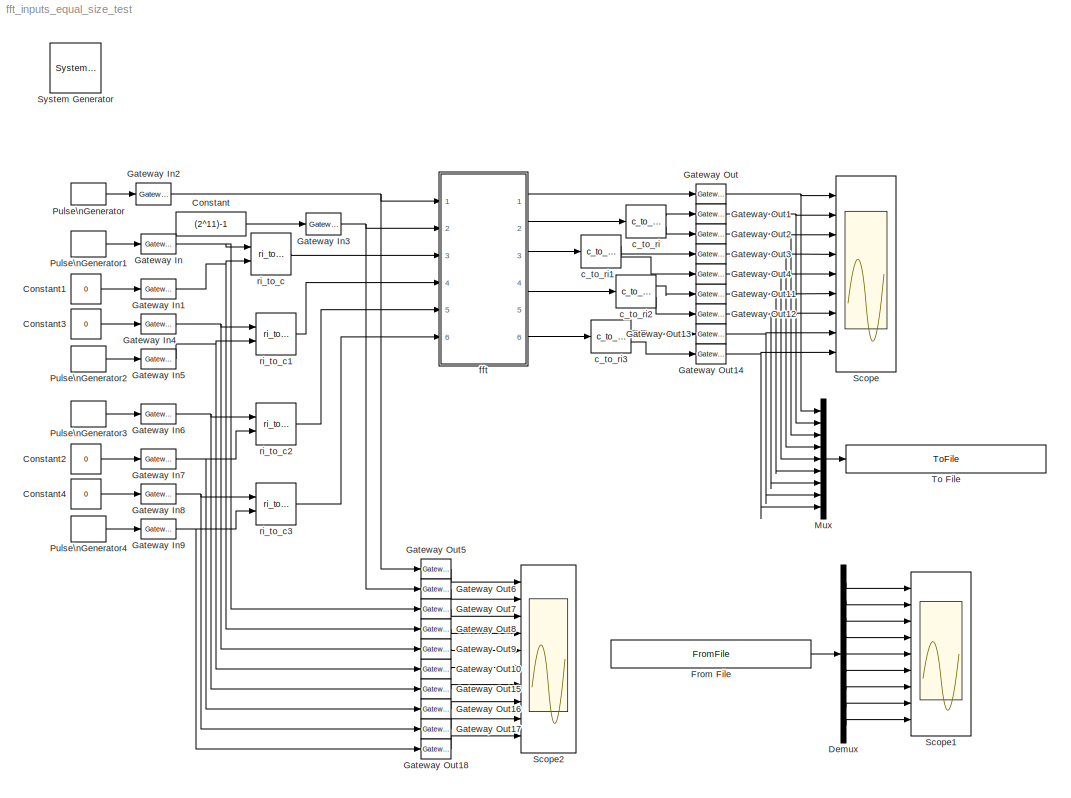
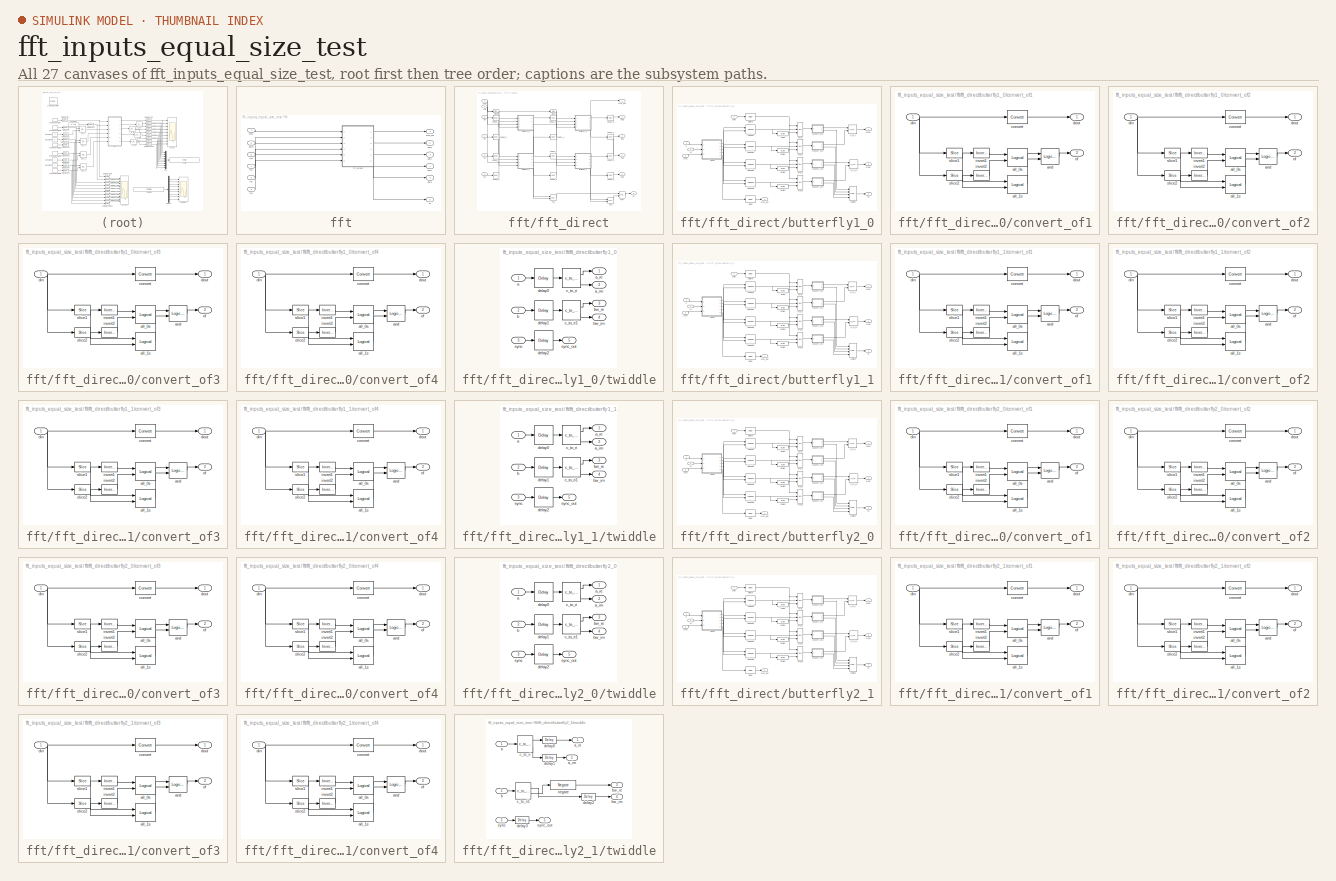
[diagram: thumbnail index - all 27 canvases of the model, root first then tree order]
MODEL fft_inputs_equal_size_test
KIND model
BLOCK [Reference]  System Generator  REF=xbsIndex_r4/ System Generator
  AttributesFormatString = System\\nGenerator
  FunctionWithSeparateData = off
  Ports = []
  RTWMemSecDataConstants = Inherit from model
  RTWMemSecDataInternal = Inherit from model
  RTWMemSecDataParameters = Inherit from model
  RTWMemSecFuncExecute = Inherit from model
  RTWMemSecFuncInitTerm = Inherit from model
  ShowPortLabels = FromPortIcon
  SourceBlock = xbsIndex_r4/ System Generator
  SourceType = Xilinx System Generator Block
  SystemSampleTime = -1
  Tag = genX
  UserData = DataTag0
  UserDataPersistent = on
  block_type = sysgen
  block_version = 10.1.1
  clock_wrapper = Clock Enables
  core_generation = According to Block Masks
  dbl_ovrd = According to Block Masks
  dcm_input_clock_period = 100
  deprecated_control = off
  directory = ./netlist
  eval_field = 0
  has_advanced_control = 0
  incr_netlist = off
  infoedit = System Generator
  package = ff668
  part = xc4vsx35
  run_coregen = off
  sg_icon_stat = 51,50,-1,-1,red,beige,0,07734,right
  sg_mask_display = fprintf('','COMMENT: begin icon graphics');\npatch([0 51 51 0 ],[0 0 50 50 ],[0.93 0.92 0.86]);\npatch([12 4 16 4 12 25 29 33 47 36 25 17 29 17 25 36 47 33 29 25 12 ],[5 13 25 37 45 45 41 45 45 34 45 37 25 13 5 16 5 5 9 5 5 ],[0.6 0.2 0.25]);\nplot([0 51 51 0 0 ],[0 0 50 50 0 ]);\nfprintf('','COMMENT: end icon graphics');\nfprintf('','COMMENT: begin icon text');\nfprintf('','COMMENT: end icon text...<+5ch>
  sggui_pos = -1,-1,-1,-1
  simulink_period = 1
  speed = -10
  synthesis_tool = XST
  sysclk_period = 100
  testbench = off
  trim_vbits = Everywhere in SubSystem
  xilinxfamily = Virtex4
BLOCK [Constant] Constant
  OutDataType = sfix(16)
  OutScaling = 2^0
  Value = (2^11)-1
BLOCK [Constant] Constant1
  OutDataType = sfix(16)
  OutScaling = 2^0
  Value = 0
BLOCK [Constant] Constant2
  OutDataType = sfix(16)
  OutScaling = 2^0
  Value = 0
BLOCK [Constant] Constant3
  OutDataType = sfix(16)
  OutScaling = 2^0
  Value = 0
BLOCK [Constant] Constant4
  OutDataType = sfix(16)
  OutScaling = 2^0
  Value = 0
BLOCK [Demux] Demux
  DisplayOption = bar
  Outputs = 9
  Ports = [1, 9]
BLOCK [FromFile] From File
  FileName = fft_inputs_equal_size_test_reference.mat
  SampleTime = 1
BLOCK [Reference] Gateway In  REF=xbsIndex_r4/Gateway In
  LOCs = {}
  Ports = [1, 1]
  SourceBlock = xbsIndex_r4/Gateway In
  SourceType = Xilinx Gateway In Block
  arith_type = Signed  (2's comp)
  bin_pt = 7
  block_type = gatewayin
  block_version = 10.1.1
  dbl_ovrd = off
  has_advanced_control = 0
  hdl_port = on
  infoedit = Gateway in block.  Converts inputs of type Simulink integer, double and fixed point to  Xilinx fixed point type.<P><P>Hardware notes:  In hardware these blocks become top level input ports.  <repeated x10 — deduplicated; at blocks: Gateway In, Gateway In1, Gateway In2, Gateway In3, Gateway In4, Gateway In5, Gateway In6, Gateway In7, Gateway In8, Gateway In9>
  locs_specified = off
  n_bits = 8
  overflow = Wrap
  period = 1
  quantization = Truncate
  sg_icon_stat = 35,20,1,1,white,yellow,0,00d3666e,right,
  sg_mask_display = fprintf('','COMMENT: begin icon graphics');\npatch([0 1 1 0 ],[0 0 1 1 ],[0.95 0.93 0.65]);\npatch([0.342857 0.257143 0.4 0.257143 0.342857 0.485714 0.514286 0.542857 0.714286 0.6 0.485714 0.4 0.542857 0.4 0.485714 0.6 0.714286 0.542857 0.514286 0.485714 0.342857 ],[0.1 0.25 0.5 0.75 0.9 0.9 0.85 0.9 0.9 0.7 0.9 0.75 0.5 0.25 0.1 0.3 0.1 0.1 0.15 0.1 0.1 ],[0.98 0.96 0.92]);\nplot([0 1 1 0 0 ],[0 ...<+261ch>  <repeated x8 — deduplicated; at blocks: Gateway In, Gateway In1, Gateway In4, Gateway In5, Gateway In6, Gateway In7, Gateway In8, Gateway In9>
  sggui_pos = 2263,208,407,458
  timing_constraint = None
  xl_area = [0,0,0,0,0,0,0]
  xl_use_area = off
BLOCK [Reference] Gateway In1  REF=xbsIndex_r4/Gateway In
  LOCs = {}
  Ports = [1, 1]
  SourceBlock = xbsIndex_r4/Gateway In
  SourceType = Xilinx Gateway In Block
  arith_type = Signed  (2's comp)
  bin_pt = 7
  block_type = gatewayin
  block_version = 10.1.1
  dbl_ovrd = off
  has_advanced_control = 0
  hdl_port = on
  locs_specified = off
  n_bits = 8
  overflow = Wrap
  period = 1
  quantization = Truncate
  sg_icon_stat = 35,20,1,1,white,yellow,0,00d3666e,right,
  sggui_pos = 2263,208,407,458
  timing_constraint = None
  xl_area = [0,0,0,0,0,0,0]
  xl_use_area = off
BLOCK [Reference] Gateway In2  REF=xbsIndex_r4/Gateway In
  LOCs = {}
  Ports = [1, 1]
  SourceBlock = xbsIndex_r4/Gateway In
  SourceType = Xilinx Gateway In Block
  arith_type = Boolean
  bin_pt = 17
  block_type = gatewayin
  block_version = 10.1.1
  dbl_ovrd = off
  has_advanced_control = 0
  hdl_port = on
  locs_specified = off
  n_bits = 18
  overflow = Wrap
  period = 1
  quantization = Truncate
  sg_icon_stat = 35,22,1,1,white,yellow,0,00d3666e,right,
  sg_mask_display = fprintf('','COMMENT: begin icon graphics');\npatch([0 1 1 0 ],[0 0 1 1 ],[0.95 0.93 0.65]);\npatch([0.342857 0.228571 0.371429 0.228571 0.342857 0.514286 0.571429 0.628571 0.8 0.657143 0.514286 0.428571 0.6 0.428571 0.514286 0.657143 0.8 0.628571 0.571429 0.514286 0.342857 ],[0.0909091 0.272727 0.5 0.727273 0.909091 0.909091 0.818182 0.909091 0.909091 0.681818 0.909091 0.772727 0.5 0.227273 0.0909...<+366ch>
  sggui_pos = 20,20,407,458
  timing_constraint = None
  xl_area = [0,0,0,0,0,0,0]
  xl_use_area = off
BLOCK [Reference] Gateway In3  REF=xbsIndex_r4/Gateway In
  LOCs = {}
  Ports = [1, 1]
  SourceBlock = xbsIndex_r4/Gateway In
  SourceType = Xilinx Gateway In Block
  arith_type = Unsigned
  bin_pt = 0
  block_type = gatewayin
  block_version = 10.1.1
  dbl_ovrd = off
  has_advanced_control = 0
  hdl_port = on
  locs_specified = off
  n_bits = 11
  overflow = Wrap
  period = 1
  quantization = Truncate
  sg_icon_stat = 35,22,1,1,white,yellow,0,00d3666e,right,
  sg_mask_display = fprintf('','COMMENT: begin icon graphics');\npatch([0 1 1 0 ],[0 0 1 1 ],[0.95 0.93 0.65]);\npatch([0.342857 0.228571 0.371429 0.228571 0.342857 0.514286 0.571429 0.628571 0.8 0.657143 0.514286 0.428571 0.6 0.428571 0.514286 0.657143 0.8 0.628571 0.571429 0.514286 0.342857 ],[0.0909091 0.272727 0.5 0.727273 0.909091 0.909091 0.818182 0.909091 0.909091 0.681818 0.909091 0.772727 0.5 0.227273 0.0909...<+366ch>
  sggui_pos = 20,20,407,458
  timing_constraint = None
  xl_area = [0,0,0,0,0,0,0]
  xl_use_area = off
BLOCK [Reference] Gateway In4  REF=xbsIndex_r4/Gateway In
  LOCs = {}
  Ports = [1, 1]
  SourceBlock = xbsIndex_r4/Gateway In
  SourceType = Xilinx Gateway In Block
  arith_type = Signed  (2's comp)
  bin_pt = 7
  block_type = gatewayin
  block_version = 10.1.1
  dbl_ovrd = off
  has_advanced_control = 0
  hdl_port = on
  locs_specified = off
  n_bits = 8
  overflow = Wrap
  period = 1
  quantization = Truncate
  sg_icon_stat = 35,20,1,1,white,yellow,0,00d3666e,right,
  sggui_pos = 2263,208,407,458
  timing_constraint = None
  xl_area = [0,0,0,0,0,0,0]
  xl_use_area = off
BLOCK [Reference] Gateway In5  REF=xbsIndex_r4/Gateway In
  LOCs = {}
  Ports = [1, 1]
  SourceBlock = xbsIndex_r4/Gateway In
  SourceType = Xilinx Gateway In Block
  arith_type = Signed  (2's comp)
  bin_pt = 7
  block_type = gatewayin
  block_version = 10.1.1
  dbl_ovrd = off
  has_advanced_control = 0
  hdl_port = on
  locs_specified = off
  n_bits = 8
  overflow = Wrap
  period = 1
  quantization = Truncate
  sg_icon_stat = 35,20,1,1,white,yellow,0,00d3666e,right,
  sggui_pos = 2263,208,407,458
  timing_constraint = None
  xl_area = [0,0,0,0,0,0,0]
  xl_use_area = off
BLOCK [Reference] Gateway In6  REF=xbsIndex_r4/Gateway In
  LOCs = {}
  Ports = [1, 1]
  SourceBlock = xbsIndex_r4/Gateway In
  SourceType = Xilinx Gateway In Block
  arith_type = Signed  (2's comp)
  bin_pt = 7
  block_type = gatewayin
  block_version = 10.1.1
  dbl_ovrd = off
  has_advanced_control = 0
  hdl_port = on
  locs_specified = off
  n_bits = 8
  overflow = Wrap
  period = 1
  quantization = Truncate
  sg_icon_stat = 35,20,1,1,white,yellow,0,00d3666e,right,
  sggui_pos = 2263,208,407,458
  timing_constraint = None
  xl_area = [0,0,0,0,0,0,0]
  xl_use_area = off
BLOCK [Reference] Gateway In7  REF=xbsIndex_r4/Gateway In
  LOCs = {}
  Ports = [1, 1]
  SourceBlock = xbsIndex_r4/Gateway In
  SourceType = Xilinx Gateway In Block
  arith_type = Signed  (2's comp)
  bin_pt = 7
  block_type = gatewayin
  block_version = 10.1.1
  dbl_ovrd = off
  has_advanced_control = 0
  hdl_port = on
  locs_specified = off
  n_bits = 8
  overflow = Wrap
  period = 1
  quantization = Truncate
  sg_icon_stat = 35,20,1,1,white,yellow,0,00d3666e,right,
  sggui_pos = 2263,208,407,458
  timing_constraint = None
  xl_area = [0,0,0,0,0,0,0]
  xl_use_area = off
BLOCK [Reference] Gateway In8  REF=xbsIndex_r4/Gateway In
  LOCs = {}
  Ports = [1, 1]
  SourceBlock = xbsIndex_r4/Gateway In
  SourceType = Xilinx Gateway In Block
  arith_type = Signed  (2's comp)
  bin_pt = 7
  block_type = gatewayin
  block_version = 10.1.1
  dbl_ovrd = off
  has_advanced_control = 0
  hdl_port = on
  locs_specified = off
  n_bits = 8
  overflow = Wrap
  period = 1
  quantization = Truncate
  sg_icon_stat = 35,20,1,1,white,yellow,0,00d3666e,right,
  sggui_pos = 2263,208,407,458
  timing_constraint = None
  xl_area = [0,0,0,0,0,0,0]
  xl_use_area = off
BLOCK [Reference] Gateway In9  REF=xbsIndex_r4/Gateway In
  LOCs = {}
  Ports = [1, 1]
  SourceBlock = xbsIndex_r4/Gateway In
  SourceType = Xilinx Gateway In Block
  arith_type = Signed  (2's comp)
  bin_pt = 7
  block_type = gatewayin
  block_version = 10.1.1
  dbl_ovrd = off
  has_advanced_control = 0
  hdl_port = on
  locs_specified = off
  n_bits = 8
  overflow = Wrap
  period = 1
  quantization = Truncate
  sg_icon_stat = 35,20,1,1,white,yellow,0,00d3666e,right,
  sggui_pos = 2263,208,407,458
  timing_constraint = None
  xl_area = [0,0,0,0,0,0,0]
  xl_use_area = off
BLOCK [Reference] Gateway Out  REF=xbsIndex_r4/Gateway Out
  LOCs = {}
  Ports = [1, 1]
  SourceBlock = xbsIndex_r4/Gateway Out
  SourceType = Xilinx Gateway Out Block
  block_type = gatewayout
  block_version = 10.1.1
  has_advanced_control = 0
  hdl_port = on
  infoedit = Gateway out block.  Converts Xilinx fixed point inputs into ouputs of type Simulink integer, double, or fixed point.<P><P>Hardware notes:  In hardware these blocks become top level output ports or are discarded, depending on how they are configured.  <repeated x19 — deduplicated; at blocks: Gateway Out, Gateway Out1, Gateway Out10, Gateway Out11, Gateway Out12, Gateway Out13, Gateway Out14, Gateway Out15, Gateway Out16, Gateway Out17, Gateway Out18, Gateway Out2, Gateway Out3, Gateway Out4, Gateway Out5, Gateway Out6, +3 more>
  locs_specified = off
  sg_icon_stat = 30,20,1,1,white,yellow,0,cc31b7ac,right,
  sg_mask_display = fprintf('','COMMENT: begin icon graphics');\npatch([0 1 1 0 ],[0 0 1 1 ],[0.95 0.93 0.65]);\npatch([0.3 0.2 0.366667 0.2 0.3 0.466667 0.5 0.533333 0.733333 0.6 0.466667 0.366667 0.533333 0.366667 0.466667 0.6 0.733333 0.533333 0.5 0.466667 0.3 ],[0.1 0.25 0.5 0.75 0.9 0.9 0.85 0.9 0.9 0.7 0.9 0.75 0.5 0.25 0.1 0.3 0.1 0.1 0.15 0.1 0.1 ],[0.98 0.96 0.92]);\nplot([0 1 1 0 0 ],[0 0 1 1 0 ]);\nfprintf...<+242ch>  <repeated x19 — deduplicated; at blocks: Gateway Out, Gateway Out1, Gateway Out10, Gateway Out11, Gateway Out12, Gateway Out13, Gateway Out14, Gateway Out15, Gateway Out16, Gateway Out17, Gateway Out18, Gateway Out2, Gateway Out3, Gateway Out4, Gateway Out5, Gateway Out6, +3 more>
  sggui_pos = 20,20,389,431
  timing_constraint = None
  xl_area = [0,0,0,0,0,0,0]
  xl_use_area = off
BLOCK [Reference] Gateway Out1  REF=xbsIndex_r4/Gateway Out
  LOCs = {}
  Ports = [1, 1]
  SourceBlock = xbsIndex_r4/Gateway Out
  SourceType = Xilinx Gateway Out Block
  block_type = gatewayout
  block_version = 10.1.1
  has_advanced_control = 0
  hdl_port = on
  locs_specified = off
  sg_icon_stat = 30,20,1,1,white,yellow,0,cc31b7ac,right,
  sggui_pos = -1,-1,-1,-1
  timing_constraint = None
  xl_area = [0,0,0,0,0,0,0]
  xl_use_area = off
BLOCK [Reference] Gateway Out10  REF=xbsIndex_r4/Gateway Out
  LOCs = {}
  Ports = [1, 1]
  SourceBlock = xbsIndex_r4/Gateway Out
  SourceType = Xilinx Gateway Out Block
  block_type = gatewayout
  block_version = 10.1.1
  has_advanced_control = 0
  hdl_port = on
  locs_specified = off
  sg_icon_stat = 30,20,1,1,white,yellow,0,cc31b7ac,right,
  sggui_pos = -1,-1,-1,-1
  timing_constraint = None
  xl_area = [0,0,0,0,0,0,0]
  xl_use_area = off
BLOCK [Reference] Gateway Out11  REF=xbsIndex_r4/Gateway Out
  LOCs = {}
  Ports = [1, 1]
  SourceBlock = xbsIndex_r4/Gateway Out
  SourceType = Xilinx Gateway Out Block
  block_type = gatewayout
  block_version = 10.1.1
  has_advanced_control = 0
  hdl_port = on
  locs_specified = off
  sg_icon_stat = 30,20,1,1,white,yellow,0,cc31b7ac,right,
  sggui_pos = -1,-1,-1,-1
  timing_constraint = None
  xl_area = [0,0,0,0,0,0,0]
  xl_use_area = off
BLOCK [Reference] Gateway Out12  REF=xbsIndex_r4/Gateway Out
  LOCs = {}
  Ports = [1, 1]
  SourceBlock = xbsIndex_r4/Gateway Out
  SourceType = Xilinx Gateway Out Block
  block_type = gatewayout
  block_version = 10.1.1
  has_advanced_control = 0
  hdl_port = on
  locs_specified = off
  sg_icon_stat = 30,20,1,1,white,yellow,0,cc31b7ac,right,
  sggui_pos = -1,-1,-1,-1
  timing_constraint = None
  xl_area = [0,0,0,0,0,0,0]
  xl_use_area = off
BLOCK [Reference] Gateway Out13  REF=xbsIndex_r4/Gateway Out
  LOCs = {}
  Ports = [1, 1]
  SourceBlock = xbsIndex_r4/Gateway Out
  SourceType = Xilinx Gateway Out Block
  block_type = gatewayout
  block_version = 10.1.1
  has_advanced_control = 0
  hdl_port = on
  locs_specified = off
  sg_icon_stat = 30,20,1,1,white,yellow,0,cc31b7ac,right,
  sggui_pos = -1,-1,-1,-1
  timing_constraint = None
  xl_area = [0,0,0,0,0,0,0]
  xl_use_area = off
BLOCK [Reference] Gateway Out14  REF=xbsIndex_r4/Gateway Out
  LOCs = {}
  Ports = [1, 1]
  SourceBlock = xbsIndex_r4/Gateway Out
  SourceType = Xilinx Gateway Out Block
  block_type = gatewayout
  block_version = 10.1.1
  has_advanced_control = 0
  hdl_port = on
  locs_specified = off
  sg_icon_stat = 30,20,1,1,white,yellow,0,cc31b7ac,right,
  sggui_pos = -1,-1,-1,-1
  timing_constraint = None
  xl_area = [0,0,0,0,0,0,0]
  xl_use_area = off
BLOCK [Reference] Gateway Out15  REF=xbsIndex_r4/Gateway Out
  LOCs = {}
  Ports = [1, 1]
  SourceBlock = xbsIndex_r4/Gateway Out
  SourceType = Xilinx Gateway Out Block
  block_type = gatewayout
  block_version = 10.1.1
  has_advanced_control = 0
  hdl_port = on
  locs_specified = off
  sg_icon_stat = 30,20,1,1,white,yellow,0,cc31b7ac,right,
  sggui_pos = -1,-1,-1,-1
  timing_constraint = None
  xl_area = [0,0,0,0,0,0,0]
  xl_use_area = off
BLOCK [Reference] Gateway Out16  REF=xbsIndex_r4/Gateway Out
  LOCs = {}
  Ports = [1, 1]
  SourceBlock = xbsIndex_r4/Gateway Out
  SourceType = Xilinx Gateway Out Block
  block_type = gatewayout
  block_version = 10.1.1
  has_advanced_control = 0
  hdl_port = on
  locs_specified = off
  sg_icon_stat = 30,20,1,1,white,yellow,0,cc31b7ac,right,
  sggui_pos = -1,-1,-1,-1
  timing_constraint = None
  xl_area = [0,0,0,0,0,0,0]
  xl_use_area = off
BLOCK [Reference] Gateway Out17  REF=xbsIndex_r4/Gateway Out
  LOCs = {}
  Ports = [1, 1]
  SourceBlock = xbsIndex_r4/Gateway Out
  SourceType = Xilinx Gateway Out Block
  block_type = gatewayout
  block_version = 10.1.1
  has_advanced_control = 0
  hdl_port = on
  locs_specified = off
  sg_icon_stat = 30,20,1,1,white,yellow,0,cc31b7ac,right,
  sggui_pos = -1,-1,-1,-1
  timing_constraint = None
  xl_area = [0,0,0,0,0,0,0]
  xl_use_area = off
BLOCK [Reference] Gateway Out18  REF=xbsIndex_r4/Gateway Out
  LOCs = {}
  Ports = [1, 1]
  SourceBlock = xbsIndex_r4/Gateway Out
  SourceType = Xilinx Gateway Out Block
  block_type = gatewayout
  block_version = 10.1.1
  has_advanced_control = 0
  hdl_port = on
  locs_specified = off
  sg_icon_stat = 30,20,1,1,white,yellow,0,cc31b7ac,right,
  sggui_pos = -1,-1,-1,-1
  timing_constraint = None
  xl_area = [0,0,0,0,0,0,0]
  xl_use_area = off
BLOCK [Reference] Gateway Out2  REF=xbsIndex_r4/Gateway Out
  LOCs = {}
  Ports = [1, 1]
  SourceBlock = xbsIndex_r4/Gateway Out
  SourceType = Xilinx Gateway Out Block
  block_type = gatewayout
  block_version = 10.1.1
  has_advanced_control = 0
  hdl_port = on
  locs_specified = off
  sg_icon_stat = 30,20,1,1,white,yellow,0,cc31b7ac,right,
  sggui_pos = -1,-1,-1,-1
  timing_constraint = None
  xl_area = [0,0,0,0,0,0,0]
  xl_use_area = off
BLOCK [Reference] Gateway Out3  REF=xbsIndex_r4/Gateway Out
  LOCs = {}
  Ports = [1, 1]
  SourceBlock = xbsIndex_r4/Gateway Out
  SourceType = Xilinx Gateway Out Block
  block_type = gatewayout
  block_version = 10.1.1
  has_advanced_control = 0
  hdl_port = on
  locs_specified = off
  sg_icon_stat = 30,20,1,1,white,yellow,0,cc31b7ac,right,
  sggui_pos = -1,-1,-1,-1
  timing_constraint = None
  xl_area = [0,0,0,0,0,0,0]
  xl_use_area = off
BLOCK [Reference] Gateway Out4  REF=xbsIndex_r4/Gateway Out
  LOCs = {}
  Ports = [1, 1]
  SourceBlock = xbsIndex_r4/Gateway Out
  SourceType = Xilinx Gateway Out Block
  block_type = gatewayout
  block_version = 10.1.1
  has_advanced_control = 0
  hdl_port = on
  locs_specified = off
  sg_icon_stat = 30,20,1,1,white,yellow,0,cc31b7ac,right,
  sggui_pos = -1,-1,-1,-1
  timing_constraint = None
  xl_area = [0,0,0,0,0,0,0]
  xl_use_area = off
BLOCK [Reference] Gateway Out5  REF=xbsIndex_r4/Gateway Out
  LOCs = {}
  Ports = [1, 1]
  SourceBlock = xbsIndex_r4/Gateway Out
  SourceType = Xilinx Gateway Out Block
  block_type = gatewayout
  block_version = 10.1.1
  has_advanced_control = 0
  hdl_port = on
  locs_specified = off
  sg_icon_stat = 30,20,1,1,white,yellow,0,cc31b7ac,right,
  sggui_pos = -1,-1,-1,-1
  timing_constraint = None
  xl_area = [0,0,0,0,0,0,0]
  xl_use_area = off
BLOCK [Reference] Gateway Out6  REF=xbsIndex_r4/Gateway Out
  LOCs = {}
  Ports = [1, 1]
  SourceBlock = xbsIndex_r4/Gateway Out
  SourceType = Xilinx Gateway Out Block
  block_type = gatewayout
  block_version = 10.1.1
  has_advanced_control = 0
  hdl_port = on
  locs_specified = off
  sg_icon_stat = 30,20,1,1,white,yellow,0,cc31b7ac,right,
  sggui_pos = -1,-1,-1,-1
  timing_constraint = None
  xl_area = [0,0,0,0,0,0,0]
  xl_use_area = off
BLOCK [Reference] Gateway Out7  REF=xbsIndex_r4/Gateway Out
  LOCs = {}
  Ports = [1, 1]
  SourceBlock = xbsIndex_r4/Gateway Out
  SourceType = Xilinx Gateway Out Block
  block_type = gatewayout
  block_version = 10.1.1
  has_advanced_control = 0
  hdl_port = on
  locs_specified = off
  sg_icon_stat = 30,20,1,1,white,yellow,0,cc31b7ac,right,
  sggui_pos = -1,-1,-1,-1
  timing_constraint = None
  xl_area = [0,0,0,0,0,0,0]
  xl_use_area = off
BLOCK [Reference] Gateway Out8  REF=xbsIndex_r4/Gateway Out
  LOCs = {}
  Ports = [1, 1]
  SourceBlock = xbsIndex_r4/Gateway Out
  SourceType = Xilinx Gateway Out Block
  block_type = gatewayout
  block_version = 10.1.1
  has_advanced_control = 0
  hdl_port = on
  locs_specified = off
  sg_icon_stat = 30,20,1,1,white,yellow,0,cc31b7ac,right,
  sggui_pos = -1,-1,-1,-1
  timing_constraint = None
  xl_area = [0,0,0,0,0,0,0]
  xl_use_area = off
BLOCK [Reference] Gateway Out9  REF=xbsIndex_r4/Gateway Out
  LOCs = {}
  Ports = [1, 1]
  SourceBlock = xbsIndex_r4/Gateway Out
  SourceType = Xilinx Gateway Out Block
  block_type = gatewayout
  block_version = 10.1.1
  has_advanced_control = 0
  hdl_port = on
  locs_specified = off
  sg_icon_stat = 30,20,1,1,white,yellow,0,cc31b7ac,right,
  sggui_pos = -1,-1,-1,-1
  timing_constraint = None
  xl_area = [0,0,0,0,0,0,0]
  xl_use_area = off
BLOCK [Mux] Mux
  DisplayOption = bar
  Inputs = 9
  Ports = [9, 1]
BLOCK [DiscretePulseGenerator] Pulse\nGenerator
  Period = 2^4
  PhaseDelay = 11
  Ports = [0, 1]
BLOCK [DiscretePulseGenerator] Pulse\nGenerator1
  Period = 2^2
  PhaseDelay = 13
  Ports = [0, 1]
BLOCK [DiscretePulseGenerator] Pulse\nGenerator2
  Period = 2^3
  PhaseDelay = 13
  Ports = [0, 1]
BLOCK [DiscretePulseGenerator] Pulse\nGenerator3
  Period = 2^2
  PhaseDelay = 13
  Ports = [0, 1]
BLOCK [DiscretePulseGenerator] Pulse\nGenerator4
  Period = 2^3
  PhaseDelay = 13
  Ports = [0, 1]
BLOCK [Scope] Scope
  DataFormat = StructureWithTime
  Floating = off
  NumInputPorts = 9
  Ports = [9]
  SampleTime = 0
  YMax = 2~1~1~5~5~5~5~5~5
  YMin = -1~0~0~-5~-5~-5~-5~-5~-5
  ZoomMode = xonly
BLOCK [Scope] Scope1
  DataFormat = StructureWithTime
  Floating = off
  NumInputPorts = 9
  Ports = [9]
  SampleTime = 0
  SaveName = ScopeData1
  YMax = 2~1~1~5~5~5~5~5~5
  YMin = -1~0~0~-5~-5~-5~-5~-5~-5
  ZoomMode = xonly
BLOCK [Scope] Scope2
  DataFormat = StructureWithTime
  Floating = off
  NumInputPorts = 10
  Ports = [10]
  SampleTime = 0
  SaveName = ScopeData2
  YMax = 2~1~1~5~5~5~5~5~5~5
  YMin = -1~0~0~-5~-5~-5~-5~-5~-5~-5
  ZoomMode = xonly
BLOCK [ToFile] To File
  Filename = fft_inputs_equal_size_test_output.mat
  MatrixName = output
BLOCK [Reference] c_to_ri  REF=casper_library_misc/c_to_ri  (lib defined in mdl_357510c33b49, mdl_57b5f564ae26, +4 more)
  AttributesFormatString = 8_7 r/i
  FunctionWithSeparateData = off
  Ports = [1, 2]
  RTWMemSecDataConstants = Inherit from model
  RTWMemSecDataInternal = Inherit from model
  RTWMemSecDataParameters = Inherit from model
  RTWMemSecFuncExecute = Inherit from model
  RTWMemSecFuncInitTerm = Inherit from model
  ShowPortLabels = FromPortIcon
  SourceBlock = casper_library_misc/c_to_ri
  SourceType = c_to_ri
  SystemSampleTime = -1
  UserData = DataTag1
  UserDataPersistent = on
  bin_pt = 7
  n_bits = 8
BLOCK [Reference] c_to_ri1  REF=casper_library_misc/c_to_ri  (lib defined in mdl_357510c33b49, mdl_57b5f564ae26, +4 more)
  AttributesFormatString = 8_7 r/i
  FunctionWithSeparateData = off
  Ports = [1, 2]
  RTWMemSecDataConstants = Inherit from model
  RTWMemSecDataInternal = Inherit from model
  RTWMemSecDataParameters = Inherit from model
  RTWMemSecFuncExecute = Inherit from model
  RTWMemSecFuncInitTerm = Inherit from model
  ShowPortLabels = FromPortIcon
  SourceBlock = casper_library_misc/c_to_ri
  SourceType = c_to_ri
  SystemSampleTime = -1
  UserData = DataTag2
  UserDataPersistent = on
  bin_pt = 7
  n_bits = 8
BLOCK [Reference] c_to_ri2  REF=casper_library_misc/c_to_ri  (lib defined in mdl_357510c33b49, mdl_57b5f564ae26, +4 more)
  AttributesFormatString = 8_7 r/i
  FunctionWithSeparateData = off
  Ports = [1, 2]
  RTWMemSecDataConstants = Inherit from model
  RTWMemSecDataInternal = Inherit from model
  RTWMemSecDataParameters = Inherit from model
  RTWMemSecFuncExecute = Inherit from model
  RTWMemSecFuncInitTerm = Inherit from model
  ShowPortLabels = FromPortIcon
  SourceBlock = casper_library_misc/c_to_ri
  SourceType = c_to_ri
  SystemSampleTime = -1
  UserData = DataTag3
  UserDataPersistent = on
  bin_pt = 7
  n_bits = 8
BLOCK [Reference] c_to_ri3  REF=casper_library_misc/c_to_ri  (lib defined in mdl_357510c33b49, mdl_57b5f564ae26, +4 more)
  AttributesFormatString = 8_7 r/i
  FunctionWithSeparateData = off
  Ports = [1, 2]
  RTWMemSecDataConstants = Inherit from model
  RTWMemSecDataInternal = Inherit from model
  RTWMemSecDataParameters = Inherit from model
  RTWMemSecFuncExecute = Inherit from model
  RTWMemSecFuncInitTerm = Inherit from model
  ShowPortLabels = FromPortIcon
  SourceBlock = casper_library_misc/c_to_ri
  SourceType = c_to_ri
  SystemSampleTime = -1
  UserData = DataTag4
  UserDataPersistent = on
  bin_pt = 7
  n_bits = 8
BLOCK [SubSystem] fft
  AncestorBlock = casper_library_ffts/fft
  AttributesFormatString = 2 stages\n(8,8)\nTruncate\nWrap
  FunctionWithSeparateData = off
  MaskCallbackString = % fft_size = eval(get_param(gcb, 'FFTSize'));\n% old_vec = eval(get_param(gcb, 'mult_spec'));\n\n% vec = 2.*ones(1,fft_size);\n% old_size = length(old_vec);\n\n% if(old_size <= fft_size), size = old_size;\n% else, size = fft_size;\n% end\n\n% for n = 1:size, vec(n) = old_vec(n); end\n% set_param(gcb, 'mult_spec', mat2str(vec));||||||||||fft_callback_arch(gcb);||||specify_mult = get_param(gcb,'spec...<+559ch>
  MaskEnableString = on,on,on,on,on,on,on,on,on,on,on,on,on,on,on,on,off
  MaskHelp = eval('xlWeb(''http://casper.berkeley.edu/wiki/Fft'')')
  MaskHideContents = off
  MaskIconFrame = on
  MaskIconOpaque = on
  MaskIconRotate = none
  MaskIconUnits = autoscale
  MaskInitialization = fft_init(gcb,...\n    'FFTSize', FFTSize, ...\n    'input_bit_width', input_bit_width, ...\n    'coeff_bit_width', coeff_bit_width, ...\n    'n_inputs', n_inputs, ...\n    'quantization', quantization, ...\n    'overflow', overflow, ...\n    'add_latency', add_latency, ...\n    'mult_latency', mult_latency, ...\n    'bram_latency', bram_latency, ...\n    'conv_latency', conv_latency, ...\n    'arc...<+250ch>
  MaskPromptString = Size of FFT: (2^?)|Input/Output Bit Width|Coefficient Bit Width|Number of Simultaneous Inputs: (2^?)|Quantization Behavior|Overflow Behavior|Add Latency|Mult Latency|BRAM Latency|Convert latency|Architecture|Use less|Number bits above which to store stage's coefficients in BRAM (2^? bits)|Number bits above which to store stage's delays in BRAM (2^? bits)|Specify multiplier use (behavioral HDL if n...<+117ch>
  MaskSelfModifiable = on
  MaskStyleString = edit,edit,edit,edit,popup(Truncate|Round  (unbiased: +/- Inf)|Round  (unbiased: Even Values)),popup(Wrap|Saturate|Error),edit,edit,edit,edit,popup(Virtex2Pro|Virtex5),popup(logic|multipliers),edit,edit,checkbox,edit,checkbox
  MaskTabNameString = ,,,,,,,,,,,,,,,,
  MaskToolTipString = on,on,on,on,on,on,on,on,on,on,on,on,on,on,on,on,on
  MaskTunableValueString = on,on,on,on,on,on,on,on,on,on,on,on,on,on,on,on,on
  MaskType = fft
  MaskValueString = 2|8|8|2|Truncate|Wrap|2|3|1|2|Virtex2Pro|multipliers|8|8|on|[1                                      2]|off
  MaskVarAliasString = ,,,,,,,,,,,,,,,,
  MaskVariables = FFTSize=@1;input_bit_width=@2;coeff_bit_width=@3;n_inputs=@4;quantization=&5;overflow=&6;add_latency=@7;mult_latency=@8;bram_latency=@9;conv_latency=@10;arch=&11;opt_target=&12;coeffs_bit_limit=@13;delays_bit_limit=@14;specify_mult=&15;mult_spec=@16;dsp48_adders=&17;
  MaskVisibilityString = on,on,on,on,on,on,on,on,on,on,on,on,on,on,on,on,on
  MinAlgLoopOccurrences = off
  Opaque = off
  Ports = [6, 6]
  PropExecContextOutsideSubsystem = off
  RTWSystemCode = Auto
  RequestExecContextInheritance = off
  UserData = DataTag5
  UserDataPersistent = on
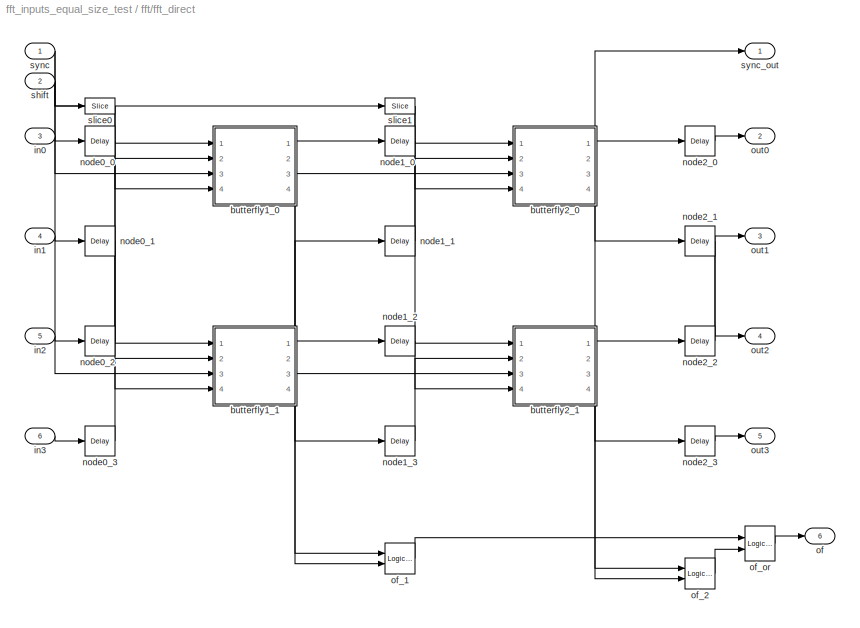
BLOCK [SubSystem] fft/fft_direct
  AncestorBlock = casper_library_ffts/fft_direct
  AttributesFormatString = Virtex2Pro\nstages [4  5] of 2\n[8,8]\nTruncate\nWrap
  FunctionWithSeparateData = off
  MaskCallbackString = % fft_size = eval(get_param(gcb, 'FFTSize'));\n% old_vec = eval(get_param(gcb, 'mult_spec'));\n\n% vec = 2.*ones(1,fft_size);\n% old_size = length(old_vec);\n\n% if(old_size <= fft_size), \n%     size = old_size;\n% else, \n%     size = fft_size;\n% end\n\n% for n = 1:size, vec(n) = old_vec(n); end\n% set_param(gcb, 'mult_spec', mat2str(vec));|||||||||map_tail = get_param(gcb,'map_tail');\nvisibs ...<+851ch>
  MaskDescription = Implements an N-point FFT with the classic \nbutterfly structure with N inputs and N outputs
  MaskEnableString = on,on,on,on,on,on,on,on,on,on,on,on,on,on,on,on,on,off
  MaskHideContents = off
  MaskIconFrame = on
  MaskIconOpaque = on
  MaskIconRotate = none
  MaskIconUnits = autoscale
  MaskInitialization = fft_direct_init(gcb,...\n    'FFTSize', FFTSize, ...\n    'input_bit_width', input_bit_width, ...\n    'coeff_bit_width', coeff_bit_width, ...\n    'add_latency', add_latency, ...\n    'mult_latency', mult_latency, ...\n    'bram_latency', bram_latency, ...\n    'conv_latency', conv_latency, ...\n    'quantization', quantization, ...\n    'overflow', overflow, ...\n    'map_tail', map_tail, ...\n ...<+286ch>
  MaskPromptString = Size of FFT: (2^?)|Input/Output Bit Width|Coefficient Bit Width|Add Latency|Mult Latency|BRAM Latency|Convert latency|Quantization Behavior|Overflow Behavior|Map Tail of Larger FFT|Size of Larger FFT (2^?):|Start Stage of Map Tail:|Architecture|Use less|Number bits above which to store stage's coefficients in BRAM (2^? bits)|Specify multiplier use (behavioural HDL if not specified)|Multiplier spec...<+92ch>
  MaskSelfModifiable = on
  MaskStyleString = edit,edit,edit,edit,edit,edit,edit,popup(Truncate|Round  (unbiased: +/- Inf)|Round  (unbiased: Even Values)),popup(Wrap|Saturate|Error),checkbox,edit,edit,popup(Virtex2Pro|Virtex5),popup(logic|multipliers),edit,checkbox,edit,checkbox
  MaskTabNameString = ,,,,,,,,,,,,,,,,,
  MaskToolTipString = on,on,on,on,on,on,on,on,on,on,on,on,on,on,on,on,on,on
  MaskTunableValueString = on,on,on,on,on,on,on,on,on,on,on,on,on,on,on,on,on,on
  MaskType = fft_direct
  MaskValueString = 2|8|8|2|3|1|2|Truncate|Wrap|off|4|4|Virtex2Pro|multipliers|8|on|[1                                      2]|off
  MaskVarAliasString = ,,,,,,,,,,,,,,,,,
  MaskVariables = FFTSize=@1;input_bit_width=@2;coeff_bit_width=@3;add_latency=@4;mult_latency=@5;bram_latency=@6;conv_latency=@7;quantization=&8;overflow=&9;map_tail=&10;LargerFFTSize=@11;StartStage=@12;arch=&13;opt_target=&14;coeffs_bit_limit=@15;specify_mult=&16;mult_spec=@17;dsp48_adders=&18;
  MaskVisibilityString = on,on,on,on,on,on,on,on,on,on,off,off,on,on,on,on,on,on
  MinAlgLoopOccurrences = off
  Opaque = off
  Ports = [6, 6]
  PropExecContextOutsideSubsystem = off
  RTWSystemCode = Auto
  RequestExecContextInheritance = off
  UserData = DataTag6
  UserDataPersistent = on
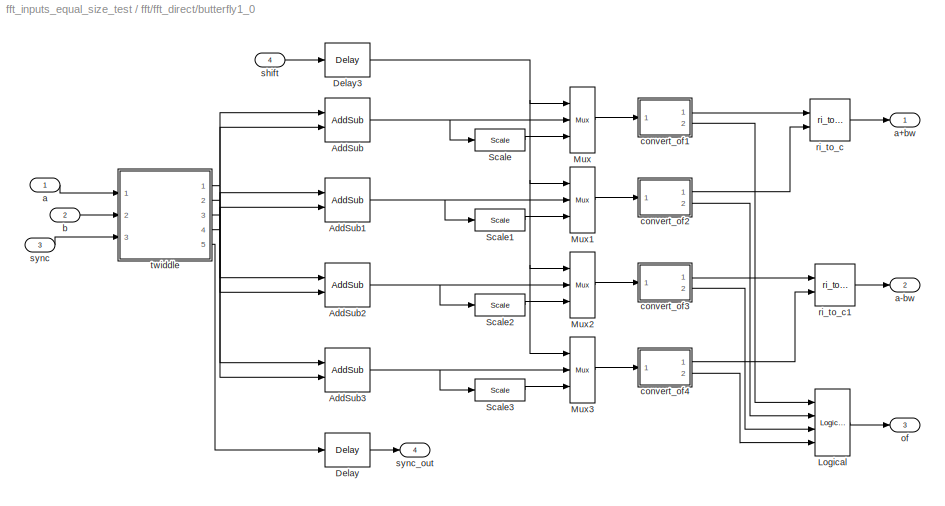
BLOCK [SubSystem] fft/fft_direct/butterfly1_0
  AncestorBlock = casper_library_ffts/butterfly_direct
  AttributesFormatString = twiddle_coeff_0\ncoeffs in slices
  FunctionWithSeparateData = off
  MaskCallbackString = ||%coeffs = eval(get_param(gcb,'Coeffs'));\n%visibs = get_param(gcb,'MaskVisibilities');\n%if length(coeffs) == 1,\n%    visibs{4} = 'off'; visibs{5} = 'off';\n%    visibs{6} = 'off'; \n%else\n%    visibs{4} = 'on';\n%    visibs{5} = 'on'; visibs{6} = 'on';\n%end    \n%set_param(gcb, 'MaskVisibilities', visibs);|%coeffs = eval(get_param(gcb,'Coeffs'));\n%visibs = get_param(gcb,'MaskVisibilities');...<+866ch>  <repeated x4 — deduplicated; at blocks: butterfly1_0, butterfly1_1, butterfly2_0, butterfly2_1>
  MaskEnableString = on,on,on,on,on,on,on,on,on,on,on,on,on,on,on,on,on,off
  MaskHideContents = off
  MaskIconFrame = on
  MaskIconOpaque = on
  MaskIconRotate = none
  MaskIconUnits = autoscale
  MaskInitialization = butterfly_direct_init(gcb,...\n    'biplex', biplex,...\n    'FFTSize', FFTSize,...\n    'Coeffs', Coeffs,...\n    'coeff_bit_width', coeff_bit_width,...\n    'StepPeriod', StepPeriod,...\n    'input_bit_width', input_bit_width,...\n    'add_latency', add_latency,...\n    'mult_latency', mult_latency,...\n    'bram_latency', bram_latency,...\n    'conv_latency', conv_latency, ...\n    'coeffs_bram...<+248ch>  <repeated x4 — deduplicated; at blocks: butterfly1_0, butterfly1_1, butterfly2_0, butterfly2_1>
  MaskPromptString = Used in biplex FFT|Size of FFT: (2^?)|Coefficients: (0 to 2^(FFTSize-1)-1)|Coefficient Step Period: (2^?)|Implement coefficients in BRAM|Coefficient Bit Width|Input/Output Bit Width:|BRAM Latency|Add Latency|Mult Latency|Convert latency|Quantization Behavior|Overflow Behavior|Architecture|Use less|Use behavioural HDL for multipliers|Use embedded multipliers|Use DSP48s for adders  <repeated x4 — deduplicated; at blocks: butterfly1_0, butterfly1_1, butterfly2_0, butterfly2_1>
  MaskSelfModifiable = on
  MaskStyleString = checkbox,edit,edit,edit,checkbox,edit,edit,edit,edit,edit,edit,popup(Truncate|Round  (unbiased: +/- Inf)|Round  (unbiased: Even Values)),popup(Wrap|Saturate|Error),popup(Virtex2Pro|Virtex5),popup(logic|multipliers),checkbox,checkbox,checkbox  <repeated x4 — deduplicated; at blocks: butterfly1_0, butterfly1_1, butterfly2_0, butterfly2_1>
  MaskTabNameString = ,,,,,,,,,,,,,,,,,
  MaskToolTipString = on,on,on,on,on,on,on,on,on,on,on,on,on,on,on,on,on,on
  MaskTunableValueString = on,on,on,on,on,on,on,on,on,on,on,on,on,on,on,on,on,on
  MaskType = butterfly_direct
  MaskValueString = off|2|0|0|off|8|8|1|2|3|2|Truncate|Wrap|Virtex2Pro|multipliers|off|on|off
  MaskVarAliasString = ,,,,,,,,,,,,,,,,,
  MaskVariables = biplex=&1;FFTSize=@2;Coeffs=@3;StepPeriod=@4;coeffs_bram=&5;coeff_bit_width=@6;input_bit_width=@7;bram_latency=@8;add_latency=@9;mult_latency=@10;conv_latency=@11;quantization=&12;overflow=&13;arch=&14;opt_target=&15;use_hdl=&16;use_embedded=&17;dsp48_adders=&18;  <repeated x4 — deduplicated; at blocks: butterfly1_0, butterfly1_1, butterfly2_0, butterfly2_1>
  MaskVisibilityString = off,on,on,on,on,on,on,on,on,on,on,on,on,on,on,on,on,on
  MinAlgLoopOccurrences = off
  Opaque = off
  Ports = [4, 4]
  PropExecContextOutsideSubsystem = off
  RTWSystemCode = Auto
  RequestExecContextInheritance = off
  UserData = DataTag7
  UserDataPersistent = on
BLOCK [Reference] fft/fft_direct/butterfly1_0/AddSub  REF=xbsIndex_r4/AddSub
  Ports = [2, 1]
  SourceBlock = xbsIndex_r4/AddSub
  SourceType = Xilinx Adder/Subtracter Block
  arith_type = Unsigned
  bin_pt = 2
  block_type = addsub
  block_version = 9.1.01
  dbl_ovrd = off
  en = off
  has_advanced_control = 0
  hw_selection = DSP48
  latency = add_latency
  mode = Addition
  n_bits = 8
  overflow = Wrap
  pipelined = on
  precision = Full
  quantization = Truncate
  sg_icon_stat = 45,44,2,1,white,blue,0,4922a24f,right,
  sg_mask_display = fprintf('','COMMENT: begin icon graphics');\npatch([0 1 1 0 ],[0 0 1 1 ],[0.77 0.82 0.91]);\npatch([0.222222 0.0666667 0.288889 0.0666667 0.222222 0.488889 0.555556 0.622222 0.888889 0.666667 0.466667 0.311111 0.511111 0.311111 0.466667 0.666667 0.888889 0.622222 0.555556 0.488889 0.222222 ],[0.113636 0.272727 0.5 0.727273 0.886364 0.886364 0.818182 0.886364 0.886364 0.659091 0.863636 0.704545 0.5...<+478ch>  <repeated x16 — deduplicated; at blocks: AddSub, AddSub1, AddSub2, AddSub3>
  sggui_pos = 827,219,348,344
  use_behavioral_HDL = on
  use_carryin = off
  use_carryout = off
  use_rpm = on
  xl_area = [0, 0, 0, 0, 0, 0, 0]
  xl_use_area = off
BLOCK [Reference] fft/fft_direct/butterfly1_0/AddSub1  REF=xbsIndex_r4/AddSub
  Ports = [2, 1]
  SourceBlock = xbsIndex_r4/AddSub
  SourceType = Xilinx Adder/Subtracter Block
  arith_type = Unsigned
  bin_pt = 2
  block_type = addsub
  block_version = 9.1.01
  dbl_ovrd = off
  en = off
  has_advanced_control = 0
  hw_selection = DSP48
  latency = add_latency
  mode = Addition
  n_bits = 8
  overflow = Wrap
  pipelined = on
  precision = Full
  quantization = Truncate
  sg_icon_stat = 45,44,2,1,white,blue,0,4922a24f,right,
  sggui_pos = 20,20,348,342
  use_behavioral_HDL = on
  use_carryin = off
  use_carryout = off
  use_rpm = on
  xl_area = [0, 0, 0, 0, 0, 0, 0]
  xl_use_area = off
BLOCK [Reference] fft/fft_direct/butterfly1_0/AddSub2  REF=xbsIndex_r4/AddSub
  Ports = [2, 1]
  SourceBlock = xbsIndex_r4/AddSub
  SourceType = Xilinx Adder/Subtracter Block
  arith_type = Unsigned
  bin_pt = 2
  block_type = addsub
  block_version = 9.1.01
  dbl_ovrd = off
  en = off
  has_advanced_control = 0
  hw_selection = DSP48
  latency = add_latency
  mode = Subtraction
  n_bits = 8
  overflow = Wrap
  pipelined = on
  precision = Full
  quantization = Truncate
  sg_icon_stat = 45,44,2,1,white,blue,0,57a258cf,right,
  sggui_pos = 20,20,348,342
  use_behavioral_HDL = on
  use_carryin = off
  use_carryout = off
  use_rpm = on
  xl_area = [0, 0, 0, 0, 0, 0, 0]
  xl_use_area = off
BLOCK [Reference] fft/fft_direct/butterfly1_0/AddSub3  REF=xbsIndex_r4/AddSub
  Ports = [2, 1]
  SourceBlock = xbsIndex_r4/AddSub
  SourceType = Xilinx Adder/Subtracter Block
  arith_type = Unsigned
  bin_pt = 2
  block_type = addsub
  block_version = 9.1.01
  dbl_ovrd = off
  en = off
  has_advanced_control = 0
  hw_selection = DSP48
  latency = add_latency
  mode = Subtraction
  n_bits = 8
  overflow = Wrap
  pipelined = on
  precision = Full
  quantization = Truncate
  sg_icon_stat = 45,44,2,1,white,blue,0,57a258cf,right,
  sggui_pos = -1,-1,-1,-1
  use_behavioral_HDL = on
  use_carryin = off
  use_carryout = off
  use_rpm = on
  xl_area = [0, 0, 0, 0, 0, 0, 0]
  xl_use_area = off
BLOCK [Reference] fft/fft_direct/butterfly1_0/Delay  REF=xbsIndex_r4/Delay
  Ports = [1, 1]
  SourceBlock = xbsIndex_r4/Delay
  SourceType = Xilinx Delay Block
  block_type = delay
  block_version = 9.1.01
  dbl_ovrd = off
  en = off
  has_advanced_control = 0
  infoedit = Hardware notes: A delay line is a chain, each link of which is an SRL16 followed by a flip-flop.
  latency = add_latency + conv_latency + 1
  reg_retiming = on
  sg_icon_stat = 45,34,1,1,white,blue,0,ec356abf,right,
  sg_mask_display = fprintf('','COMMENT: begin icon graphics');\npatch([0 1 1 0 ],[0 0 1 1 ],[0.77 0.82 0.91]);\npatch([0.311111 0.177778 0.355556 0.177778 0.311111 0.511111 0.555556 0.6 0.822222 0.644444 0.488889 0.377778 0.555556 0.377778 0.488889 0.644444 0.822222 0.6 0.555556 0.511111 0.311111 ],[0.117647 0.294118 0.529412 0.764706 0.941176 0.941176 0.882353 0.941176 0.941176 0.705882 0.911765 0.764706 0.529412 0...<+297ch>  <repeated x8 — deduplicated; at blocks: Delay, Delay3>
  sggui_pos = 23,105,419,315
  xl_area = [0, 0, 0, 0, 0, 0, 0]
  xl_use_area = off
BLOCK [Reference] fft/fft_direct/butterfly1_0/Delay3  REF=xbsIndex_r4/Delay
  Ports = [1, 1]
  SourceBlock = xbsIndex_r4/Delay
  SourceType = Xilinx Delay Block
  block_type = delay
  block_version = 9.1.01
  dbl_ovrd = off
  en = off
  has_advanced_control = 0
  infoedit = Hardware notes: A delay line is a chain, each link of which is an SRL16 followed by a flip-flop.
  latency = add_latency
  reg_retiming = off
  sg_icon_stat = 45,34,1,1,white,blue,0,85ce9542,right,
  sggui_pos = 20,20,407,280
  xl_area = [0, 0, 0, 0, 0, 0, 0]
  xl_use_area = off
BLOCK [Reference] fft/fft_direct/butterfly1_0/Logical  REF=xbsIndex_r4/Logical
  Ports = [4, 1]
  SourceBlock = xbsIndex_r4/Logical
  SourceType = Xilinx Logical Block Block
  align_bp = on
  arith_type = Unsigned
  bin_pt = 0
  block_type = logical
  block_version = 10.1.1
  dbl_ovrd = off
  en = off
  has_advanced_control = 0
  inputs = 4
  latency = 0
  logical_function = OR
  n_bits = 16
  precision = Full
  sg_icon_stat = 35,67,4,1,white,blue,0,96d3e8c1,right,
  sg_list_contents = {'table'=>{'logical_function'=>'popup(AND|NAND|OR|NOR|XOR|XNOR)','userSelections'=>{'logical_function'=>'OR'}}}
  sg_mask_display = fprintf('','COMMENT: begin icon graphics');\npatch([0 1 1 0 ],[0 0 1 1 ],[0.77 0.82 0.91]);\npatch([0.228571 0.0571429 0.285714 0.0571429 0.228571 0.485714 0.571429 0.657143 0.942857 0.714286 0.514286 0.371429 0.6 0.371429 0.514286 0.714286 0.942857 0.657143 0.571429 0.485714 0.228571 ],[0.298507 0.38806 0.507463 0.626866 0.716418 0.716418 0.671642 0.716418 0.716418 0.597015 0.701493 0.626866 0.50...<+321ch>  <repeated x4 — deduplicated; at blocks: Logical>
  sggui_pos = 21,51,419,291
  xl_area = [0,0,0,0,0,0,0]
  xl_use_area = off
BLOCK [Reference] fft/fft_direct/butterfly1_0/Mux  REF=xbsIndex_r4/Mux
  Ports = [3, 1]
  SourceBlock = xbsIndex_r4/Mux
  SourceType = Xilinx Bus Multiplexer Block
  arith_type = Signed  (2's comp)
  bin_pt = 2
  block_type = mux
  block_version = 9.1.01
  dbl_ovrd = off
  en = off
  has_advanced_control = 0
  inputs = 2
  latency = 1
  n_bits = 8
  overflow = Wrap
  precision = Full
  quantization = Truncate
  sg_icon_stat = 25,66,3,1,white,blue,3,a150fb03,right,
  sg_mask_display = fprintf('','COMMENT: begin icon graphics');\npatch([0 1 1 0 ],[0 0.142857 0.857143 1 ],[0.77 0.82 0.91]);\npatch([0.24 0.08 0.32 0.08 0.24 0.52 0.6 0.68 0.96 0.72 0.52 0.36 0.56 0.36 0.52 0.72 0.96 0.68 0.6 0.52 0.24 ],[0.348485 0.409091 0.5 0.590909 0.651515 0.651515 0.621212 0.651515 0.651515 0.560606 0.636364 0.575758 0.5 0.424242 0.363636 0.439394 0.348485 0.348485 0.378788 0.348485 0.348485 ]...<+380ch>  <repeated x16 — deduplicated; at blocks: Mux, Mux1, Mux2, Mux3>
  sggui_pos = 20,20,348,306
  xl_area = [0, 0, 0, 0, 0, 0, 0]
  xl_use_area = off
BLOCK [Reference] fft/fft_direct/butterfly1_0/Mux1  REF=xbsIndex_r4/Mux
  Ports = [3, 1]
  SourceBlock = xbsIndex_r4/Mux
  SourceType = Xilinx Bus Multiplexer Block
  arith_type = Signed  (2's comp)
  bin_pt = 2
  block_type = mux
  block_version = 9.1.01
  dbl_ovrd = off
  en = off
  has_advanced_control = 0
  inputs = 2
  latency = 1
  n_bits = 8
  overflow = Wrap
  precision = Full
  quantization = Truncate
  sg_icon_stat = 25,66,3,1,white,blue,3,a150fb03,right,
  sggui_pos = 20,20,407,344
  xl_area = [0, 0, 0, 0, 0, 0, 0]
  xl_use_area = off
BLOCK [Reference] fft/fft_direct/butterfly1_0/Mux2  REF=xbsIndex_r4/Mux
  Ports = [3, 1]
  SourceBlock = xbsIndex_r4/Mux
  SourceType = Xilinx Bus Multiplexer Block
  arith_type = Signed  (2's comp)
  bin_pt = 2
  block_type = mux
  block_version = 9.1.01
  dbl_ovrd = off
  en = off
  has_advanced_control = 0
  inputs = 2
  latency = 1
  n_bits = 8
  overflow = Wrap
  precision = Full
  quantization = Truncate
  sg_icon_stat = 25,66,3,1,white,blue,3,a150fb03,right,
  sggui_pos = 20,20,407,344
  xl_area = [0, 0, 0, 0, 0, 0, 0]
  xl_use_area = off
BLOCK [Reference] fft/fft_direct/butterfly1_0/Mux3  REF=xbsIndex_r4/Mux
  Ports = [3, 1]
  SourceBlock = xbsIndex_r4/Mux
  SourceType = Xilinx Bus Multiplexer Block
  arith_type = Signed  (2's comp)
  bin_pt = 2
  block_type = mux
  block_version = 9.1.01
  dbl_ovrd = off
  en = off
  has_advanced_control = 0
  inputs = 2
  latency = 1
  n_bits = 8
  overflow = Wrap
  precision = Full
  quantization = Truncate
  sg_icon_stat = 25,66,3,1,white,blue,3,a150fb03,right,
  sggui_pos = 20,20,407,344
  xl_area = [0, 0, 0, 0, 0, 0, 0]
  xl_use_area = off
BLOCK [Reference] fft/fft_direct/butterfly1_0/Scale  REF=xbsIndex_r4/Scale
  Ports = [1, 1]
  SourceBlock = xbsIndex_r4/Scale
  SourceType = Xilinx Input Scaler Block
  block_type = scale
  block_version = 9.1.01
  dbl_ovrd = off
  has_advanced_control = 0
  infoedit = Scales input by a power of two by adjusting the binary point position.<P><P>Hardware notes: In hardware this block costs nothing.
  scale_factor = -1
  sg_icon_stat = 50,22,1,1,white,blue,0,315b7d78,right,
  sg_mask_display = fprintf('','COMMENT: begin icon graphics');\npatch([0 1 1 0 ],[0 0 1 1 ],[0.77 0.82 0.91]);\npatch([0.38 0.3 0.4 0.3 0.38 0.5 0.54 0.58 0.7 0.6 0.5 0.44 0.56 0.44 0.5 0.6 0.7 0.58 0.54 0.5 0.38 ],[0.0909091 0.272727 0.5 0.727273 0.909091 0.909091 0.818182 0.909091 0.909091 0.681818 0.909091 0.772727 0.5 0.227273 0.0909091 0.318182 0.0909091 0.0909091 0.181818 0.0909091 0.0909091 ],[0.98 0.96 0.92]...<+214ch>  <repeated x16 — deduplicated; at blocks: Scale, Scale1, Scale2, Scale3>
  sggui_pos = -1,-1,-1,-1
BLOCK [Reference] fft/fft_direct/butterfly1_0/Scale1  REF=xbsIndex_r4/Scale
  Ports = [1, 1]
  SourceBlock = xbsIndex_r4/Scale
  SourceType = Xilinx Input Scaler Block
  block_type = scale
  block_version = 9.1.01
  dbl_ovrd = off
  has_advanced_control = 0
  infoedit = Scales input by a power of two by adjusting the binary point position.<P><P>Hardware notes: In hardware this block costs nothing.
  scale_factor = -1
  sg_icon_stat = 50,22,1,1,white,blue,0,315b7d78,right,
  sggui_pos = -1,-1,-1,-1
BLOCK [Reference] fft/fft_direct/butterfly1_0/Scale2  REF=xbsIndex_r4/Scale
  Ports = [1, 1]
  SourceBlock = xbsIndex_r4/Scale
  SourceType = Xilinx Input Scaler Block
  block_type = scale
  block_version = 9.1.01
  dbl_ovrd = off
  has_advanced_control = 0
  infoedit = Scales input by a power of two by adjusting the binary point position.<P><P>Hardware notes: In hardware this block costs nothing.
  scale_factor = -1
  sg_icon_stat = 50,22,1,1,white,blue,0,315b7d78,right,
  sggui_pos = -1,-1,-1,-1
BLOCK [Reference] fft/fft_direct/butterfly1_0/Scale3  REF=xbsIndex_r4/Scale
  Ports = [1, 1]
  SourceBlock = xbsIndex_r4/Scale
  SourceType = Xilinx Input Scaler Block
  block_type = scale
  block_version = 9.1.01
  dbl_ovrd = off
  has_advanced_control = 0
  infoedit = Scales input by a power of two by adjusting the binary point position.<P><P>Hardware notes: In hardware this block costs nothing.
  scale_factor = -1
  sg_icon_stat = 50,22,1,1,white,blue,0,315b7d78,right,
  sggui_pos = -1,-1,-1,-1
BLOCK [Inport] fft/fft_direct/butterfly1_0/a
  IconDisplay = Port number
  OutDataType = sfix(16)
  OutScaling = 2^0
BLOCK [Outport] fft/fft_direct/butterfly1_0/a+bw
  IconDisplay = Port number
  OutDataType = sfix(16)
  OutScaling = 2^0
BLOCK [Outport] fft/fft_direct/butterfly1_0/a-bw
  IconDisplay = Port number
  OutDataType = sfix(16)
  OutScaling = 2^0
  Port = 2
BLOCK [Inport] fft/fft_direct/butterfly1_0/b
  IconDisplay = Port number
  OutDataType = sfix(16)
  OutScaling = 2^0
  Port = 2
BLOCK [SubSystem] fft/fft_direct/butterfly1_0/convert_of1
  AncestorBlock = casper_library_misc/convert_of
  AttributesFormatString = [10,8]->[8,7]
  FunctionWithSeparateData = off
  MaskCallbackString = ||||||
  MaskDescription = Converts from one 2's complement bit-width \nand/or binary point position to another. \nIncludes underflow/overflow indicator.
  MaskEnableString = on,on,on,on,on,on,on
  MaskHideContents = off
  MaskIconFrame = on
  MaskIconOpaque = on
  MaskIconRotate = none
  MaskIconUnits = autoscale
  MaskInitialization = convert_of_init(gcb, ...\n    'bit_width_i', bit_width_i, ...\n    'binary_point_i', binary_point_i, ...\n    'bit_width_o', bit_width_o, ...\n    'binary_point_o', binary_point_o, ...\n    'latency', latency, ...\n    'overflow', overflow, ...\n    'quantization', quantization);\n  <repeated x16 — deduplicated; at blocks: convert_of1, convert_of2, convert_of3, convert_of4>
  MaskPromptString = Bit Width In|Binary Point In|Bit Width Out|Binary Point Out|Latency|Overflow Behaviour|Quantization Behaviour
  MaskStyleString = edit,edit,edit,edit,edit,popup(Wrap|Saturate|Error),popup(Truncate|Round  (unbiased: +/- Inf)|Round  (unbiased: even values))
  MaskTabNameString = ,,,,,,
  MaskToolTipString = on,on,on,on,on,on,on
  MaskTunableValueString = on,on,on,on,on,on,on
  MaskType = convert_of
  MaskValueString = 10|8|8|7|2|Wrap|Truncate
  MaskVarAliasString = ,,,,,,
  MaskVariables = bit_width_i=@1;binary_point_i=@2;bit_width_o=@3;binary_point_o=@4;latency=@5;overflow=&6;quantization=&7;
  MaskVisibilityString = on,on,on,on,on,on,on
  MinAlgLoopOccurrences = off
  Opaque = off
  Ports = [1, 2]
  PropExecContextOutsideSubsystem = off
  RTWSystemCode = Auto
  RequestExecContextInheritance = off
  UserData = DataTag8
  UserDataPersistent = on
BLOCK [Reference] fft/fft_direct/butterfly1_0/convert_of1/all_0s  REF=xbsIndex_r4/Logical
  Ports = [2, 1]
  SourceBlock = xbsIndex_r4/Logical
  SourceType = Xilinx Logical Block Block
  align_bp = on
  arith_type = Unsigned
  bin_pt = 0
  block_type = logical
  block_version = 10.1.3
  dbl_ovrd = off
  en = off
  has_advanced_control = 0
  inputs = 2
  latency = latency
  logical_function = NAND
  n_bits = 16
  precision = Full
  sg_icon_stat = 45,40,2,1,white,blue,0,8ff56bdf,right,
  sg_mask_display = fprintf('','COMMENT: begin icon graphics');\npatch([0 1 1 0 ],[0 0 1 1 ],[0.77 0.82 0.91]);\npatch([0.266667 0.111111 0.311111 0.111111 0.266667 0.511111 0.577778 0.644444 0.888889 0.688889 0.488889 0.355556 0.577778 0.355556 0.488889 0.688889 0.888889 0.644444 0.577778 0.511111 0.266667 ],[0.1 0.275 0.5 0.725 0.9 0.9 0.825 0.9 0.9 0.675 0.9 0.75 0.5 0.25 0.1 0.325 0.1 0.1 0.175 0.1 0.1 ],[0.98 0....<+238ch>  <repeated x32 — deduplicated; at blocks: all_0s, all_1s>
  sggui_pos = 20,20,348,261
  xl_area = [0,0,0,0,0,0,0]
  xl_use_area = off
BLOCK [Reference] fft/fft_direct/butterfly1_0/convert_of1/all_1s  REF=xbsIndex_r4/Logical
  Ports = [2, 1]
  SourceBlock = xbsIndex_r4/Logical
  SourceType = Xilinx Logical Block Block
  align_bp = on
  arith_type = Unsigned
  bin_pt = 0
  block_type = logical
  block_version = 10.1.3
  dbl_ovrd = off
  en = off
  has_advanced_control = 0
  inputs = 2
  latency = latency
  logical_function = NAND
  n_bits = 16
  precision = Full
  sg_icon_stat = 45,40,2,1,white,blue,0,8ff56bdf,right,
  sggui_pos = -1,-1,-1,-1
  xl_area = [0,0,0,0,0,0,0]
  xl_use_area = off
BLOCK [Reference] fft/fft_direct/butterfly1_0/convert_of1/and  REF=xbsIndex_r4/Logical
  Ports = [2, 1]
  SourceBlock = xbsIndex_r4/Logical
  SourceType = Xilinx Logical Block Block
  align_bp = on
  arith_type = Unsigned
  bin_pt = 0
  block_type = logical
  block_version = 10.1.3
  dbl_ovrd = off
  en = off
  has_advanced_control = 0
  inputs = 2
  latency = 0
  logical_function = AND
  n_bits = 16
  precision = Full
  sg_icon_stat = 40,35,2,1,white,blue,0,0a851f85,right,
  sg_mask_display = fprintf('','COMMENT: begin icon graphics');\npatch([0 1 1 0 ],[0 0 1 1 ],[0.77 0.82 0.91]);\npatch([0.275 0.125 0.325 0.125 0.275 0.5 0.575 0.65 0.9 0.7 0.525 0.4 0.6 0.4 0.525 0.7 0.9 0.65 0.575 0.5 0.275 ],[0.114286 0.285714 0.514286 0.742857 0.914286 0.914286 0.828571 0.914286 0.914286 0.685714 0.885714 0.742857 0.514286 0.285714 0.142857 0.342857 0.114286 0.114286 0.2 0.114286 0.114286 ],[0.98...<+240ch>  <repeated x16 — deduplicated; at blocks: and>
  sggui_pos = -1,-1,-1,-1
  xl_area = [0,0,0,0,0,0,0]
  xl_use_area = off
BLOCK [Reference] fft/fft_direct/butterfly1_0/convert_of1/convert  REF=xbsIndex_r4/Convert
  Ports = [1, 1]
  SourceBlock = xbsIndex_r4/Convert
  SourceType = Xilinx Type Converter Block
  arith_type = Signed  (2's comp)
  bin_pt = binary_point_o
  block_type = convert
  block_version = 10.1.1
  dbl_ovrd = off
  has_advanced_control = 0
  infoedit = Hardware notes: rounding and saturating require hardware resources; truncating and wrapping do not.
  latency = latency
  n_bits = bit_width_o
  overflow = Wrap
  pipeline = on
  quantization = Truncate
  sg_icon_stat = 45,30,1,1,white,blue,0,5129c5aa,right,
  sg_mask_display = fprintf('','COMMENT: begin icon graphics');\npatch([0 1 1 0 ],[0 0 1 1 ],[0.77 0.82 0.91]);\npatch([0.333333 0.222222 0.377778 0.222222 0.333333 0.511111 0.555556 0.6 0.777778 0.622222 0.488889 0.377778 0.511111 0.377778 0.488889 0.622222 0.777778 0.6 0.555556 0.511111 0.333333 ],[0.1 0.266667 0.5 0.733333 0.9 0.9 0.833333 0.9 0.9 0.666667 0.866667 0.7 0.5 0.3 0.133333 0.333333 0.1 0.1 0.166667 0....<+288ch>  <repeated x16 — deduplicated; at blocks: convert>
  sggui_pos = 20,20,538,377
  xl_area = [0,0,0,0,0,0,0]
  xl_use_area = off
BLOCK [Inport] fft/fft_direct/butterfly1_0/convert_of1/din
  IconDisplay = Port number
  OutDataType = sfix(16)
  OutScaling = 2^0
BLOCK [Outport] fft/fft_direct/butterfly1_0/convert_of1/dout
  IconDisplay = Port number
BLOCK [Reference] fft/fft_direct/butterfly1_0/convert_of1/invert1  REF=xbsIndex_r4/Inverter
  Ports = [1, 1]
  SourceBlock = xbsIndex_r4/Inverter
  SourceType = Xilinx Inverter Block
  block_type = inv
  block_version = 10.1.3
  dbl_ovrd = off
  en = off
  has_advanced_control = 0
  infoedit = Bitwise logical negation (one's complement) operator.
  latency = 0
  sg_icon_stat = 35,22,1,1,white,blue,0,267846e5,right,
  sg_mask_display = fprintf('','COMMENT: begin icon graphics');\npatch([0 1 1 0 ],[0 0 1 1 ],[0.77 0.82 0.91]);\npatch([0.342857 0.228571 0.371429 0.228571 0.342857 0.514286 0.571429 0.628571 0.8 0.657143 0.514286 0.428571 0.6 0.428571 0.514286 0.657143 0.8 0.628571 0.571429 0.514286 0.342857 ],[0.0909091 0.272727 0.5 0.727273 0.909091 0.909091 0.818182 0.909091 0.909091 0.681818 0.909091 0.772727 0.5 0.227273 0.0909...<+270ch>  <repeated x32 — deduplicated; at blocks: invert1, invert2>
  sggui_pos = -1,-1,-1,-1
  xl_area = [0,0,0,0,0,0,0]
  xl_use_area = off
BLOCK [Reference] fft/fft_direct/butterfly1_0/convert_of1/invert2  REF=xbsIndex_r4/Inverter
  Ports = [1, 1]
  SourceBlock = xbsIndex_r4/Inverter
  SourceType = Xilinx Inverter Block
  block_type = inv
  block_version = 10.1.3
  dbl_ovrd = off
  en = off
  has_advanced_control = 0
  infoedit = Bitwise logical negation (one's complement) operator.
  latency = 0
  sg_icon_stat = 35,22,1,1,white,blue,0,267846e5,right,
  sggui_pos = -1,-1,-1,-1
  xl_area = [0,0,0,0,0,0,0]
  xl_use_area = off
BLOCK [Outport] fft/fft_direct/butterfly1_0/convert_of1/of
  IconDisplay = Port number
  Port = 2
BLOCK [Reference] fft/fft_direct/butterfly1_0/convert_of1/slice1  REF=xbsIndex_r4/Slice
  Ports = [1, 1]
  SourceBlock = xbsIndex_r4/Slice
  SourceType = Xilinx Bit Slice Extractor Block
  base0 = LSB of Input
  base1 = MSB of Input
  bit0 = 0
  bit1 = 0
  block_type = slice
  block_version = 10.1.1
  boolean_output = on
  dbl_ovrd = off
  has_advanced_control = 0
  infoedit = Extracts a given range of bits from each input sample and presents it at the output.  The output type is ordinarily unsigned with binary point at zero, but can be Boolean when the slice is one bit wide.<P><P>Hardware notes: In hardware this block costs nothing.  <repeated x32 — deduplicated; at blocks: slice1, slice2>
  mode = Upper Bit Location + Width
  nbits = 1
  sg_icon_stat = 35,22,1,1,white,blue,0,1fd851a7,right,
  sg_mask_display = fprintf('','COMMENT: begin icon graphics');\npatch([0 1 1 0 ],[0 0 1 1 ],[0.77 0.82 0.91]);\npatch([0.342857 0.228571 0.371429 0.228571 0.342857 0.514286 0.571429 0.628571 0.8 0.657143 0.514286 0.428571 0.6 0.428571 0.514286 0.657143 0.8 0.628571 0.571429 0.514286 0.342857 ],[0.0909091 0.272727 0.5 0.727273 0.909091 0.909091 0.818182 0.909091 0.909091 0.681818 0.909091 0.772727 0.5 0.227273 0.0909...<+289ch>  <repeated x32 — deduplicated; at blocks: slice1, slice2>
  sggui_pos = -1,-1,-1,-1
BLOCK [Reference] fft/fft_direct/butterfly1_0/convert_of1/slice2  REF=xbsIndex_r4/Slice
  Ports = [1, 1]
  SourceBlock = xbsIndex_r4/Slice
  SourceType = Xilinx Bit Slice Extractor Block
  base0 = LSB of Input
  base1 = MSB of Input
  bit0 = 0
  bit1 = -1
  block_type = slice
  block_version = 10.1.1
  boolean_output = on
  dbl_ovrd = off
  has_advanced_control = 0
  mode = Upper Bit Location + Width
  nbits = 1
  sg_icon_stat = 35,22,1,1,white,blue,0,1fd851a7,right,
  sggui_pos = -1,-1,-1,-1
BLOCK [SubSystem] fft/fft_direct/butterfly1_0/convert_of2
  AncestorBlock = casper_library_misc/convert_of
  AttributesFormatString = [10,8]->[8,7]
  FunctionWithSeparateData = off
  MaskCallbackString = ||||||
  MaskDescription = Converts from one 2's complement bit-width \nand/or binary point position to another. \nIncludes underflow/overflow indicator.
  MaskEnableString = on,on,on,on,on,on,on
  MaskHideContents = off
  MaskIconFrame = on
  MaskIconOpaque = on
  MaskIconRotate = none
  MaskIconUnits = autoscale
  MaskPromptString = Bit Width In|Binary Point In|Bit Width Out|Binary Point Out|Latency|Overflow Behaviour|Quantization Behaviour
  MaskStyleString = edit,edit,edit,edit,edit,popup(Wrap|Saturate|Error),popup(Truncate|Round  (unbiased: +/- Inf)|Round  (unbiased: even values))
  MaskTabNameString = ,,,,,,
  MaskToolTipString = on,on,on,on,on,on,on
  MaskTunableValueString = on,on,on,on,on,on,on
  MaskType = convert_of
  MaskValueString = 10|8|8|7|2|Wrap|Truncate
  MaskVarAliasString = ,,,,,,
  MaskVariables = bit_width_i=@1;binary_point_i=@2;bit_width_o=@3;binary_point_o=@4;latency=@5;overflow=&6;quantization=&7;
  MaskVisibilityString = on,on,on,on,on,on,on
  MinAlgLoopOccurrences = off
  Opaque = off
  Ports = [1, 2]
  PropExecContextOutsideSubsystem = off
  RTWSystemCode = Auto
  RequestExecContextInheritance = off
  UserData = DataTag9
  UserDataPersistent = on
BLOCK [Reference] fft/fft_direct/butterfly1_0/convert_of2/all_0s  REF=xbsIndex_r4/Logical
  Ports = [2, 1]
  SourceBlock = xbsIndex_r4/Logical
  SourceType = Xilinx Logical Block Block
  align_bp = on
  arith_type = Unsigned
  bin_pt = 0
  block_type = logical
  block_version = 10.1.3
  dbl_ovrd = off
  en = off
  has_advanced_control = 0
  inputs = 2
  latency = latency
  logical_function = NAND
  n_bits = 16
  precision = Full
  sg_icon_stat = 45,40,2,1,white,blue,0,8ff56bdf,right,
  sggui_pos = 20,20,348,261
  xl_area = [0,0,0,0,0,0,0]
  xl_use_area = off
BLOCK [Reference] fft/fft_direct/butterfly1_0/convert_of2/all_1s  REF=xbsIndex_r4/Logical
  Ports = [2, 1]
  SourceBlock = xbsIndex_r4/Logical
  SourceType = Xilinx Logical Block Block
  align_bp = on
  arith_type = Unsigned
  bin_pt = 0
  block_type = logical
  block_version = 10.1.3
  dbl_ovrd = off
  en = off
  has_advanced_control = 0
  inputs = 2
  latency = latency
  logical_function = NAND
  n_bits = 16
  precision = Full
  sg_icon_stat = 45,40,2,1,white,blue,0,8ff56bdf,right,
  sggui_pos = -1,-1,-1,-1
  xl_area = [0,0,0,0,0,0,0]
  xl_use_area = off
BLOCK [Reference] fft/fft_direct/butterfly1_0/convert_of2/and  REF=xbsIndex_r4/Logical
  Ports = [2, 1]
  SourceBlock = xbsIndex_r4/Logical
  SourceType = Xilinx Logical Block Block
  align_bp = on
  arith_type = Unsigned
  bin_pt = 0
  block_type = logical
  block_version = 10.1.3
  dbl_ovrd = off
  en = off
  has_advanced_control = 0
  inputs = 2
  latency = 0
  logical_function = AND
  n_bits = 16
  precision = Full
  sg_icon_stat = 40,35,2,1,white,blue,0,0a851f85,right,
  sggui_pos = -1,-1,-1,-1
  xl_area = [0,0,0,0,0,0,0]
  xl_use_area = off
BLOCK [Reference] fft/fft_direct/butterfly1_0/convert_of2/convert  REF=xbsIndex_r4/Convert
  Ports = [1, 1]
  SourceBlock = xbsIndex_r4/Convert
  SourceType = Xilinx Type Converter Block
  arith_type = Signed  (2's comp)
  bin_pt = binary_point_o
  block_type = convert
  block_version = 10.1.1
  dbl_ovrd = off
  has_advanced_control = 0
  infoedit = Hardware notes: rounding and saturating require hardware resources; truncating and wrapping do not.
  latency = latency
  n_bits = bit_width_o
  overflow = Wrap
  pipeline = on
  quantization = Truncate
  sg_icon_stat = 45,30,1,1,white,blue,0,5129c5aa,right,
  sggui_pos = 20,20,538,377
  xl_area = [0,0,0,0,0,0,0]
  xl_use_area = off
BLOCK [Inport] fft/fft_direct/butterfly1_0/convert_of2/din
  IconDisplay = Port number
  OutDataType = sfix(16)
  OutScaling = 2^0
BLOCK [Outport] fft/fft_direct/butterfly1_0/convert_of2/dout
  IconDisplay = Port number
BLOCK [Reference] fft/fft_direct/butterfly1_0/convert_of2/invert1  REF=xbsIndex_r4/Inverter
  Ports = [1, 1]
  SourceBlock = xbsIndex_r4/Inverter
  SourceType = Xilinx Inverter Block
  block_type = inv
  block_version = 10.1.3
  dbl_ovrd = off
  en = off
  has_advanced_control = 0
  infoedit = Bitwise logical negation (one's complement) operator.
  latency = 0
  sg_icon_stat = 35,22,1,1,white,blue,0,267846e5,right,
  sggui_pos = -1,-1,-1,-1
  xl_area = [0,0,0,0,0,0,0]
  xl_use_area = off
BLOCK [Reference] fft/fft_direct/butterfly1_0/convert_of2/invert2  REF=xbsIndex_r4/Inverter
  Ports = [1, 1]
  SourceBlock = xbsIndex_r4/Inverter
  SourceType = Xilinx Inverter Block
  block_type = inv
  block_version = 10.1.3
  dbl_ovrd = off
  en = off
  has_advanced_control = 0
  infoedit = Bitwise logical negation (one's complement) operator.
  latency = 0
  sg_icon_stat = 35,22,1,1,white,blue,0,267846e5,right,
  sggui_pos = -1,-1,-1,-1
  xl_area = [0,0,0,0,0,0,0]
  xl_use_area = off
BLOCK [Outport] fft/fft_direct/butterfly1_0/convert_of2/of
  IconDisplay = Port number
  Port = 2
BLOCK [Reference] fft/fft_direct/butterfly1_0/convert_of2/slice1  REF=xbsIndex_r4/Slice
  Ports = [1, 1]
  SourceBlock = xbsIndex_r4/Slice
  SourceType = Xilinx Bit Slice Extractor Block
  base0 = LSB of Input
  base1 = MSB of Input
  bit0 = 0
  bit1 = 0
  block_type = slice
  block_version = 10.1.1
  boolean_output = on
  dbl_ovrd = off
  has_advanced_control = 0
  mode = Upper Bit Location + Width
  nbits = 1
  sg_icon_stat = 35,22,1,1,white,blue,0,1fd851a7,right,
  sggui_pos = -1,-1,-1,-1
BLOCK [Reference] fft/fft_direct/butterfly1_0/convert_of2/slice2  REF=xbsIndex_r4/Slice
  Ports = [1, 1]
  SourceBlock = xbsIndex_r4/Slice
  SourceType = Xilinx Bit Slice Extractor Block
  base0 = LSB of Input
  base1 = MSB of Input
  bit0 = 0
  bit1 = -1
  block_type = slice
  block_version = 10.1.1
  boolean_output = on
  dbl_ovrd = off
  has_advanced_control = 0
  mode = Upper Bit Location + Width
  nbits = 1
  sg_icon_stat = 35,22,1,1,white,blue,0,1fd851a7,right,
  sggui_pos = -1,-1,-1,-1
BLOCK [SubSystem] fft/fft_direct/butterfly1_0/convert_of3
  AncestorBlock = casper_library_misc/convert_of
  AttributesFormatString = [10,8]->[8,7]
  FunctionWithSeparateData = off
  MaskCallbackString = ||||||
  MaskDescription = Converts from one 2's complement bit-width \nand/or binary point position to another. \nIncludes underflow/overflow indicator.
  MaskEnableString = on,on,on,on,on,on,on
  MaskHideContents = off
  MaskIconFrame = on
  MaskIconOpaque = on
  MaskIconRotate = none
  MaskIconUnits = autoscale
  MaskPromptString = Bit Width In|Binary Point In|Bit Width Out|Binary Point Out|Latency|Overflow Behaviour|Quantization Behaviour
  MaskStyleString = edit,edit,edit,edit,edit,popup(Wrap|Saturate|Error),popup(Truncate|Round  (unbiased: +/- Inf)|Round  (unbiased: even values))
  MaskTabNameString = ,,,,,,
  MaskToolTipString = on,on,on,on,on,on,on
  MaskTunableValueString = on,on,on,on,on,on,on
  MaskType = convert_of
  MaskValueString = 10|8|8|7|2|Wrap|Truncate
  MaskVarAliasString = ,,,,,,
  MaskVariables = bit_width_i=@1;binary_point_i=@2;bit_width_o=@3;binary_point_o=@4;latency=@5;overflow=&6;quantization=&7;
  MaskVisibilityString = on,on,on,on,on,on,on
  MinAlgLoopOccurrences = off
  Opaque = off
  Ports = [1, 2]
  PropExecContextOutsideSubsystem = off
  RTWSystemCode = Auto
  RequestExecContextInheritance = off
  UserData = DataTag10
  UserDataPersistent = on
BLOCK [Reference] fft/fft_direct/butterfly1_0/convert_of3/all_0s  REF=xbsIndex_r4/Logical
  Ports = [2, 1]
  SourceBlock = xbsIndex_r4/Logical
  SourceType = Xilinx Logical Block Block
  align_bp = on
  arith_type = Unsigned
  bin_pt = 0
  block_type = logical
  block_version = 10.1.3
  dbl_ovrd = off
  en = off
  has_advanced_control = 0
  inputs = 2
  latency = latency
  logical_function = NAND
  n_bits = 16
  precision = Full
  sg_icon_stat = 45,40,2,1,white,blue,0,8ff56bdf,right,
  sggui_pos = 20,20,348,261
  xl_area = [0,0,0,0,0,0,0]
  xl_use_area = off
BLOCK [Reference] fft/fft_direct/butterfly1_0/convert_of3/all_1s  REF=xbsIndex_r4/Logical
  Ports = [2, 1]
  SourceBlock = xbsIndex_r4/Logical
  SourceType = Xilinx Logical Block Block
  align_bp = on
  arith_type = Unsigned
  bin_pt = 0
  block_type = logical
  block_version = 10.1.3
  dbl_ovrd = off
  en = off
  has_advanced_control = 0
  inputs = 2
  latency = latency
  logical_function = NAND
  n_bits = 16
  precision = Full
  sg_icon_stat = 45,40,2,1,white,blue,0,8ff56bdf,right,
  sggui_pos = -1,-1,-1,-1
  xl_area = [0,0,0,0,0,0,0]
  xl_use_area = off
BLOCK [Reference] fft/fft_direct/butterfly1_0/convert_of3/and  REF=xbsIndex_r4/Logical
  Ports = [2, 1]
  SourceBlock = xbsIndex_r4/Logical
  SourceType = Xilinx Logical Block Block
  align_bp = on
  arith_type = Unsigned
  bin_pt = 0
  block_type = logical
  block_version = 10.1.3
  dbl_ovrd = off
  en = off
  has_advanced_control = 0
  inputs = 2
  latency = 0
  logical_function = AND
  n_bits = 16
  precision = Full
  sg_icon_stat = 40,35,2,1,white,blue,0,0a851f85,right,
  sggui_pos = -1,-1,-1,-1
  xl_area = [0,0,0,0,0,0,0]
  xl_use_area = off
BLOCK [Reference] fft/fft_direct/butterfly1_0/convert_of3/convert  REF=xbsIndex_r4/Convert
  Ports = [1, 1]
  SourceBlock = xbsIndex_r4/Convert
  SourceType = Xilinx Type Converter Block
  arith_type = Signed  (2's comp)
  bin_pt = binary_point_o
  block_type = convert
  block_version = 10.1.1
  dbl_ovrd = off
  has_advanced_control = 0
  infoedit = Hardware notes: rounding and saturating require hardware resources; truncating and wrapping do not.
  latency = latency
  n_bits = bit_width_o
  overflow = Wrap
  pipeline = on
  quantization = Truncate
  sg_icon_stat = 45,30,1,1,white,blue,0,5129c5aa,right,
  sggui_pos = 20,20,538,377
  xl_area = [0,0,0,0,0,0,0]
  xl_use_area = off
BLOCK [Inport] fft/fft_direct/butterfly1_0/convert_of3/din
  IconDisplay = Port number
  OutDataType = sfix(16)
  OutScaling = 2^0
BLOCK [Outport] fft/fft_direct/butterfly1_0/convert_of3/dout
  IconDisplay = Port number
BLOCK [Reference] fft/fft_direct/butterfly1_0/convert_of3/invert1  REF=xbsIndex_r4/Inverter
  Ports = [1, 1]
  SourceBlock = xbsIndex_r4/Inverter
  SourceType = Xilinx Inverter Block
  block_type = inv
  block_version = 10.1.3
  dbl_ovrd = off
  en = off
  has_advanced_control = 0
  infoedit = Bitwise logical negation (one's complement) operator.
  latency = 0
  sg_icon_stat = 35,22,1,1,white,blue,0,267846e5,right,
  sggui_pos = -1,-1,-1,-1
  xl_area = [0,0,0,0,0,0,0]
  xl_use_area = off
BLOCK [Reference] fft/fft_direct/butterfly1_0/convert_of3/invert2  REF=xbsIndex_r4/Inverter
  Ports = [1, 1]
  SourceBlock = xbsIndex_r4/Inverter
  SourceType = Xilinx Inverter Block
  block_type = inv
  block_version = 10.1.3
  dbl_ovrd = off
  en = off
  has_advanced_control = 0
  infoedit = Bitwise logical negation (one's complement) operator.
  latency = 0
  sg_icon_stat = 35,22,1,1,white,blue,0,267846e5,right,
  sggui_pos = -1,-1,-1,-1
  xl_area = [0,0,0,0,0,0,0]
  xl_use_area = off
BLOCK [Outport] fft/fft_direct/butterfly1_0/convert_of3/of
  IconDisplay = Port number
  Port = 2
BLOCK [Reference] fft/fft_direct/butterfly1_0/convert_of3/slice1  REF=xbsIndex_r4/Slice
  Ports = [1, 1]
  SourceBlock = xbsIndex_r4/Slice
  SourceType = Xilinx Bit Slice Extractor Block
  base0 = LSB of Input
  base1 = MSB of Input
  bit0 = 0
  bit1 = 0
  block_type = slice
  block_version = 10.1.1
  boolean_output = on
  dbl_ovrd = off
  has_advanced_control = 0
  mode = Upper Bit Location + Width
  nbits = 1
  sg_icon_stat = 35,22,1,1,white,blue,0,1fd851a7,right,
  sggui_pos = -1,-1,-1,-1
BLOCK [Reference] fft/fft_direct/butterfly1_0/convert_of3/slice2  REF=xbsIndex_r4/Slice
  Ports = [1, 1]
  SourceBlock = xbsIndex_r4/Slice
  SourceType = Xilinx Bit Slice Extractor Block
  base0 = LSB of Input
  base1 = MSB of Input
  bit0 = 0
  bit1 = -1
  block_type = slice
  block_version = 10.1.1
  boolean_output = on
  dbl_ovrd = off
  has_advanced_control = 0
  mode = Upper Bit Location + Width
  nbits = 1
  sg_icon_stat = 35,22,1,1,white,blue,0,1fd851a7,right,
  sggui_pos = -1,-1,-1,-1
BLOCK [SubSystem] fft/fft_direct/butterfly1_0/convert_of4
  AncestorBlock = casper_library_misc/convert_of
  AttributesFormatString = [10,8]->[8,7]
  FunctionWithSeparateData = off
  MaskCallbackString = ||||||
  MaskDescription = Converts from one 2's complement bit-width \nand/or binary point position to another. \nIncludes underflow/overflow indicator.
  MaskEnableString = on,on,on,on,on,on,on
  MaskHideContents = off
  MaskIconFrame = on
  MaskIconOpaque = on
  MaskIconRotate = none
  MaskIconUnits = autoscale
  MaskPromptString = Bit Width In|Binary Point In|Bit Width Out|Binary Point Out|Latency|Overflow Behaviour|Quantization Behaviour
  MaskStyleString = edit,edit,edit,edit,edit,popup(Wrap|Saturate|Error),popup(Truncate|Round  (unbiased: +/- Inf)|Round  (unbiased: even values))
  MaskTabNameString = ,,,,,,
  MaskToolTipString = on,on,on,on,on,on,on
  MaskTunableValueString = on,on,on,on,on,on,on
  MaskType = convert_of
  MaskValueString = 10|8|8|7|2|Wrap|Truncate
  MaskVarAliasString = ,,,,,,
  MaskVariables = bit_width_i=@1;binary_point_i=@2;bit_width_o=@3;binary_point_o=@4;latency=@5;overflow=&6;quantization=&7;
  MaskVisibilityString = on,on,on,on,on,on,on
  MinAlgLoopOccurrences = off
  Opaque = off
  Ports = [1, 2]
  PropExecContextOutsideSubsystem = off
  RTWSystemCode = Auto
  RequestExecContextInheritance = off
  UserData = DataTag11
  UserDataPersistent = on
BLOCK [Reference] fft/fft_direct/butterfly1_0/convert_of4/all_0s  REF=xbsIndex_r4/Logical
  Ports = [2, 1]
  SourceBlock = xbsIndex_r4/Logical
  SourceType = Xilinx Logical Block Block
  align_bp = on
  arith_type = Unsigned
  bin_pt = 0
  block_type = logical
  block_version = 10.1.3
  dbl_ovrd = off
  en = off
  has_advanced_control = 0
  inputs = 2
  latency = latency
  logical_function = NAND
  n_bits = 16
  precision = Full
  sg_icon_stat = 45,40,2,1,white,blue,0,8ff56bdf,right,
  sggui_pos = 20,20,348,261
  xl_area = [0,0,0,0,0,0,0]
  xl_use_area = off
BLOCK [Reference] fft/fft_direct/butterfly1_0/convert_of4/all_1s  REF=xbsIndex_r4/Logical
  Ports = [2, 1]
  SourceBlock = xbsIndex_r4/Logical
  SourceType = Xilinx Logical Block Block
  align_bp = on
  arith_type = Unsigned
  bin_pt = 0
  block_type = logical
  block_version = 10.1.3
  dbl_ovrd = off
  en = off
  has_advanced_control = 0
  inputs = 2
  latency = latency
  logical_function = NAND
  n_bits = 16
  precision = Full
  sg_icon_stat = 45,40,2,1,white,blue,0,8ff56bdf,right,
  sggui_pos = -1,-1,-1,-1
  xl_area = [0,0,0,0,0,0,0]
  xl_use_area = off
BLOCK [Reference] fft/fft_direct/butterfly1_0/convert_of4/and  REF=xbsIndex_r4/Logical
  Ports = [2, 1]
  SourceBlock = xbsIndex_r4/Logical
  SourceType = Xilinx Logical Block Block
  align_bp = on
  arith_type = Unsigned
  bin_pt = 0
  block_type = logical
  block_version = 10.1.3
  dbl_ovrd = off
  en = off
  has_advanced_control = 0
  inputs = 2
  latency = 0
  logical_function = AND
  n_bits = 16
  precision = Full
  sg_icon_stat = 40,35,2,1,white,blue,0,0a851f85,right,
  sggui_pos = -1,-1,-1,-1
  xl_area = [0,0,0,0,0,0,0]
  xl_use_area = off
BLOCK [Reference] fft/fft_direct/butterfly1_0/convert_of4/convert  REF=xbsIndex_r4/Convert
  Ports = [1, 1]
  SourceBlock = xbsIndex_r4/Convert
  SourceType = Xilinx Type Converter Block
  arith_type = Signed  (2's comp)
  bin_pt = binary_point_o
  block_type = convert
  block_version = 10.1.1
  dbl_ovrd = off
  has_advanced_control = 0
  infoedit = Hardware notes: rounding and saturating require hardware resources; truncating and wrapping do not.
  latency = latency
  n_bits = bit_width_o
  overflow = Wrap
  pipeline = on
  quantization = Truncate
  sg_icon_stat = 45,30,1,1,white,blue,0,5129c5aa,right,
  sggui_pos = 20,20,538,377
  xl_area = [0,0,0,0,0,0,0]
  xl_use_area = off
BLOCK [Inport] fft/fft_direct/butterfly1_0/convert_of4/din
  IconDisplay = Port number
  OutDataType = sfix(16)
  OutScaling = 2^0
BLOCK [Outport] fft/fft_direct/butterfly1_0/convert_of4/dout
  IconDisplay = Port number
BLOCK [Reference] fft/fft_direct/butterfly1_0/convert_of4/invert1  REF=xbsIndex_r4/Inverter
  Ports = [1, 1]
  SourceBlock = xbsIndex_r4/Inverter
  SourceType = Xilinx Inverter Block
  block_type = inv
  block_version = 10.1.3
  dbl_ovrd = off
  en = off
  has_advanced_control = 0
  infoedit = Bitwise logical negation (one's complement) operator.
  latency = 0
  sg_icon_stat = 35,22,1,1,white,blue,0,267846e5,right,
  sggui_pos = -1,-1,-1,-1
  xl_area = [0,0,0,0,0,0,0]
  xl_use_area = off
BLOCK [Reference] fft/fft_direct/butterfly1_0/convert_of4/invert2  REF=xbsIndex_r4/Inverter
  Ports = [1, 1]
  SourceBlock = xbsIndex_r4/Inverter
  SourceType = Xilinx Inverter Block
  block_type = inv
  block_version = 10.1.3
  dbl_ovrd = off
  en = off
  has_advanced_control = 0
  infoedit = Bitwise logical negation (one's complement) operator.
  latency = 0
  sg_icon_stat = 35,22,1,1,white,blue,0,267846e5,right,
  sggui_pos = -1,-1,-1,-1
  xl_area = [0,0,0,0,0,0,0]
  xl_use_area = off
BLOCK [Outport] fft/fft_direct/butterfly1_0/convert_of4/of
  IconDisplay = Port number
  Port = 2
BLOCK [Reference] fft/fft_direct/butterfly1_0/convert_of4/slice1  REF=xbsIndex_r4/Slice
  Ports = [1, 1]
  SourceBlock = xbsIndex_r4/Slice
  SourceType = Xilinx Bit Slice Extractor Block
  base0 = LSB of Input
  base1 = MSB of Input
  bit0 = 0
  bit1 = 0
  block_type = slice
  block_version = 10.1.1
  boolean_output = on
  dbl_ovrd = off
  has_advanced_control = 0
  mode = Upper Bit Location + Width
  nbits = 1
  sg_icon_stat = 35,22,1,1,white,blue,0,1fd851a7,right,
  sggui_pos = -1,-1,-1,-1
BLOCK [Reference] fft/fft_direct/butterfly1_0/convert_of4/slice2  REF=xbsIndex_r4/Slice
  Ports = [1, 1]
  SourceBlock = xbsIndex_r4/Slice
  SourceType = Xilinx Bit Slice Extractor Block
  base0 = LSB of Input
  base1 = MSB of Input
  bit0 = 0
  bit1 = -1
  block_type = slice
  block_version = 10.1.1
  boolean_output = on
  dbl_ovrd = off
  has_advanced_control = 0
  mode = Upper Bit Location + Width
  nbits = 1
  sg_icon_stat = 35,22,1,1,white,blue,0,1fd851a7,right,
  sggui_pos = -1,-1,-1,-1
BLOCK [Outport] fft/fft_direct/butterfly1_0/of
  IconDisplay = Port number
  OutDataType = sfix(16)
  OutScaling = 2^0
  Port = 3
BLOCK [Reference] fft/fft_direct/butterfly1_0/ri_to_c  REF=casper_library_misc/ri_to_c  (lib defined in mdl_357510c33b49, mdl_57b5f564ae26, +4 more)
  FunctionWithSeparateData = off
  Ports = [2, 1]
  RTWMemSecDataConstants = Inherit from model
  RTWMemSecDataInternal = Inherit from model
  RTWMemSecDataParameters = Inherit from model
  RTWMemSecFuncExecute = Inherit from model
  RTWMemSecFuncInitTerm = Inherit from model
  ShowPortLabels = FromPortIcon
  SourceBlock = casper_library_misc/ri_to_c
  SourceType = ri_to_c
  SystemSampleTime = -1
  UserData = DataTag12
  UserDataPersistent = on
BLOCK [Reference] fft/fft_direct/butterfly1_0/ri_to_c1  REF=casper_library_misc/ri_to_c  (lib defined in mdl_357510c33b49, mdl_57b5f564ae26, +4 more)
  FunctionWithSeparateData = off
  Ports = [2, 1]
  RTWMemSecDataConstants = Inherit from model
  RTWMemSecDataInternal = Inherit from model
  RTWMemSecDataParameters = Inherit from model
  RTWMemSecFuncExecute = Inherit from model
  RTWMemSecFuncInitTerm = Inherit from model
  ShowPortLabels = FromPortIcon
  SourceBlock = casper_library_misc/ri_to_c
  SourceType = ri_to_c
  SystemSampleTime = -1
  UserData = DataTag13
  UserDataPersistent = on
BLOCK [Inport] fft/fft_direct/butterfly1_0/shift
  IconDisplay = Port number
  OutDataType = sfix(16)
  OutScaling = 2^0
  Port = 4
BLOCK [Inport] fft/fft_direct/butterfly1_0/sync
  IconDisplay = Port number
  OutDataType = sfix(16)
  OutScaling = 2^0
  Port = 3
BLOCK [Outport] fft/fft_direct/butterfly1_0/sync_out
  IconDisplay = Port number
  OutDataType = sfix(16)
  OutScaling = 2^0
  Port = 4
BLOCK [SubSystem] fft/fft_direct/butterfly1_0/twiddle
  AncestorBlock = casper_library_ffts_twiddle/twiddle_coeff_0
  FunctionWithSeparateData = off
  MaskCallbackString = ||||||
  MaskDescription = Used in FFT library. Used when coefficients \nare 2^0 (just pass data through) but latency\nmust be the same as for a full twiddle.
  MaskEnableString = on,on,on,on,on,on,on
  MaskHideContents = off
  MaskIconFrame = on
  MaskIconOpaque = on
  MaskIconRotate = none
  MaskIconUnits = autoscale
  MaskInitialization = set_param(gcb,'LinkStatus','inactive');\nif(strcmp(opt_target, 'logic')), \n    latency = 'mult_latency+add_latency+bram_latency+conv_latency';\nelse,\n    latency = 'mult_latency+add_latency*2+bram_latency+conv_latency';\nend\nset_param([gcb,'/delay0'], 'latency', latency);\nset_param([gcb,'/delay1'], 'latency', latency);\nset_param([gcb,'/delay2'], 'latency', latency);  <repeated x3 — deduplicated; at blocks: twiddle>
  MaskPromptString = FFT Size (2^?)|Input Bit Width|Add Latency|Mult Latency|BRAM Latency|Convert latency|Use less
  MaskSelfModifiable = on
  MaskStyleString = edit,edit,edit,edit,edit,edit,popup(logic|multipliers)
  MaskTabNameString = ,,,,,,
  MaskToolTipString = on,on,on,on,on,on,on
  MaskTunableValueString = on,on,on,on,on,on,on
  MaskType = twiddle_coeff_0
  MaskValueString = 2|8|2|3|1|2|multipliers
  MaskVarAliasString = ,,,,,,
  MaskVariables = FFTSize=@1;input_bit_width=@2;add_latency=@3;mult_latency=@4;bram_latency=@5;conv_latency=@6;opt_target=&7;
  MaskVisibilityString = on,on,on,on,on,on,on
  MinAlgLoopOccurrences = off
  Opaque = off
  Ports = [3, 5]
  PropExecContextOutsideSubsystem = off
  RTWSystemCode = Auto
  RequestExecContextInheritance = off
BLOCK [Inport] fft/fft_direct/butterfly1_0/twiddle/a
  IconDisplay = Port number
  OutDataType = sfix(16)
  OutScaling = 2^0
BLOCK [Outport] fft/fft_direct/butterfly1_0/twiddle/a_im
  IconDisplay = Port number
  OutDataType = sfix(16)
  OutScaling = 2^0
  Port = 2
BLOCK [Outport] fft/fft_direct/butterfly1_0/twiddle/a_re
  IconDisplay = Port number
  OutDataType = sfix(16)
  OutScaling = 2^0
BLOCK [Inport] fft/fft_direct/butterfly1_0/twiddle/b
  IconDisplay = Port number
  OutDataType = sfix(16)
  OutScaling = 2^0
  Port = 2
BLOCK [Outport] fft/fft_direct/butterfly1_0/twiddle/bw_im
  IconDisplay = Port number
  OutDataType = sfix(16)
  OutScaling = 2^0
  Port = 4
BLOCK [Outport] fft/fft_direct/butterfly1_0/twiddle/bw_re
  IconDisplay = Port number
  OutDataType = sfix(16)
  OutScaling = 2^0
  Port = 3
BLOCK [Reference] fft/fft_direct/butterfly1_0/twiddle/c_to_ri  REF=casper_library_misc/c_to_ri  (lib defined in mdl_357510c33b49, mdl_57b5f564ae26, +4 more)
  AttributesFormatString = 8_7 r/i
  FunctionWithSeparateData = off
  Ports = [1, 2]
  RTWMemSecDataConstants = Inherit from model
  RTWMemSecDataInternal = Inherit from model
  RTWMemSecDataParameters = Inherit from model
  RTWMemSecFuncExecute = Inherit from model
  RTWMemSecFuncInitTerm = Inherit from model
  ShowPortLabels = FromPortIcon
  SourceBlock = casper_library_misc/c_to_ri
  SourceType = c_to_ri
  SystemSampleTime = -1
  UserData = DataTag14
  UserDataPersistent = on
  bin_pt = input_bit_width-1
  n_bits = input_bit_width
BLOCK [Reference] fft/fft_direct/butterfly1_0/twiddle/c_to_ri1  REF=casper_library_misc/c_to_ri  (lib defined in mdl_357510c33b49, mdl_57b5f564ae26, +4 more)
  AttributesFormatString = 8_7 r/i
  FunctionWithSeparateData = off
  Ports = [1, 2]
  RTWMemSecDataConstants = Inherit from model
  RTWMemSecDataInternal = Inherit from model
  RTWMemSecDataParameters = Inherit from model
  RTWMemSecFuncExecute = Inherit from model
  RTWMemSecFuncInitTerm = Inherit from model
  ShowPortLabels = FromPortIcon
  SourceBlock = casper_library_misc/c_to_ri
  SourceType = c_to_ri
  SystemSampleTime = -1
  UserData = DataTag15
  UserDataPersistent = on
  bin_pt = input_bit_width-1
  n_bits = input_bit_width
BLOCK [Reference] fft/fft_direct/butterfly1_0/twiddle/delay0  REF=xbsIndex_r4/Delay
  Ports = [1, 1]
  SourceBlock = xbsIndex_r4/Delay
  SourceType = Xilinx Delay Block
  block_type = delay
  block_version = 10.1.3
  dbl_ovrd = off
  en = off
  has_advanced_control = 0
  infoedit = Hardware notes: A delay line is a chain, each link of which is an SRL16 followed by a flip-flop.
  latency = mult_latency+add_latency*2+bram_latency+conv_latency
  reg_retiming = on
  sg_icon_stat = 40,42,1,1,white,blue,0,8c471295,right,
  sg_mask_display = fprintf('','COMMENT: begin icon graphics');\npatch([0 1 1 0 ],[0 0 1 1 ],[0.77 0.82 0.91]);\npatch([0.25 0.075 0.3 0.075 0.25 0.525 0.6 0.675 0.95 0.725 0.5 0.35 0.6 0.35 0.5 0.725 0.95 0.675 0.6 0.525 0.25 ],[0.119048 0.285714 0.5 0.714286 0.880952 0.880952 0.809524 0.880952 0.880952 0.666667 0.880952 0.738095 0.5 0.261905 0.119048 0.333333 0.119048 0.119048 0.190476 0.119048 0.119048 ],[0.98 0.9...<+216ch>  <repeated x9 — deduplicated; at blocks: delay0, delay1, delay2>
  sggui_pos = 31,321,419,315
  xl_area = [0,0,0,0,0,0,0]
  xl_use_area = off
BLOCK [Reference] fft/fft_direct/butterfly1_0/twiddle/delay1  REF=xbsIndex_r4/Delay
  Ports = [1, 1]
  SourceBlock = xbsIndex_r4/Delay
  SourceType = Xilinx Delay Block
  block_type = delay
  block_version = 10.1.3
  dbl_ovrd = off
  en = off
  has_advanced_control = 0
  infoedit = Hardware notes: A delay line is a chain, each link of which is an SRL16 followed by a flip-flop.
  latency = mult_latency+add_latency*2+bram_latency+conv_latency
  reg_retiming = on
  sg_icon_stat = 40,42,1,1,white,blue,0,8c471295,right,
  sggui_pos = 24,132,419,315
  xl_area = [0,0,0,0,0,0,0]
  xl_use_area = off
BLOCK [Reference] fft/fft_direct/butterfly1_0/twiddle/delay2  REF=xbsIndex_r4/Delay
  Ports = [1, 1]
  SourceBlock = xbsIndex_r4/Delay
  SourceType = Xilinx Delay Block
  block_type = delay
  block_version = 10.1.3
  dbl_ovrd = off
  en = off
  has_advanced_control = 0
  infoedit = Hardware notes: A delay line is a chain, each link of which is an SRL16 followed by a flip-flop.
  latency = mult_latency+add_latency*2+bram_latency+conv_latency
  reg_retiming = on
  sg_icon_stat = 40,42,1,1,white,blue,0,8c471295,right,
  sggui_pos = 21,51,419,315
  xl_area = [0,0,0,0,0,0,0]
  xl_use_area = off
BLOCK [Inport] fft/fft_direct/butterfly1_0/twiddle/sync
  IconDisplay = Port number
  OutDataType = sfix(16)
  OutScaling = 2^0
  Port = 3
BLOCK [Outport] fft/fft_direct/butterfly1_0/twiddle/sync_out
  IconDisplay = Port number
  OutDataType = sfix(16)
  OutScaling = 2^0
  Port = 5
BLOCK [SubSystem] fft/fft_direct/butterfly1_1
  AncestorBlock = casper_library_ffts/butterfly_direct
  AttributesFormatString = twiddle_coeff_0\ncoeffs in slices
  FunctionWithSeparateData = off
  MaskEnableString = on,on,on,on,on,on,on,on,on,on,on,on,on,on,on,on,on,off
  MaskHideContents = off
  MaskIconFrame = on
  MaskIconOpaque = on
  MaskIconRotate = none
  MaskIconUnits = autoscale
  MaskSelfModifiable = on
  MaskTabNameString = ,,,,,,,,,,,,,,,,,
  MaskToolTipString = on,on,on,on,on,on,on,on,on,on,on,on,on,on,on,on,on,on
  MaskTunableValueString = on,on,on,on,on,on,on,on,on,on,on,on,on,on,on,on,on,on
  MaskType = butterfly_direct
  MaskValueString = off|2|0|0|off|8|8|1|2|3|2|Truncate|Wrap|Virtex2Pro|multipliers|off|on|off
  MaskVarAliasString = ,,,,,,,,,,,,,,,,,
  MaskVisibilityString = off,on,on,on,on,on,on,on,on,on,on,on,on,on,on,on,on,on
  MinAlgLoopOccurrences = off
  Opaque = off
  Ports = [4, 4]
  PropExecContextOutsideSubsystem = off
  RTWSystemCode = Auto
  RequestExecContextInheritance = off
  UserData = DataTag16
  UserDataPersistent = on
BLOCK [Reference] fft/fft_direct/butterfly1_1/AddSub  REF=xbsIndex_r4/AddSub
  Ports = [2, 1]
  SourceBlock = xbsIndex_r4/AddSub
  SourceType = Xilinx Adder/Subtracter Block
  arith_type = Unsigned
  bin_pt = 2
  block_type = addsub
  block_version = 9.1.01
  dbl_ovrd = off
  en = off
  has_advanced_control = 0
  hw_selection = DSP48
  latency = add_latency
  mode = Addition
  n_bits = 8
  overflow = Wrap
  pipelined = on
  precision = Full
  quantization = Truncate
  sg_icon_stat = 45,44,2,1,white,blue,0,4922a24f,right,
  sggui_pos = 827,219,348,344
  use_behavioral_HDL = on
  use_carryin = off
  use_carryout = off
  use_rpm = on
  xl_area = [0, 0, 0, 0, 0, 0, 0]
  xl_use_area = off
BLOCK [Reference] fft/fft_direct/butterfly1_1/AddSub1  REF=xbsIndex_r4/AddSub
  Ports = [2, 1]
  SourceBlock = xbsIndex_r4/AddSub
  SourceType = Xilinx Adder/Subtracter Block
  arith_type = Unsigned
  bin_pt = 2
  block_type = addsub
  block_version = 9.1.01
  dbl_ovrd = off
  en = off
  has_advanced_control = 0
  hw_selection = DSP48
  latency = add_latency
  mode = Addition
  n_bits = 8
  overflow = Wrap
  pipelined = on
  precision = Full
  quantization = Truncate
  sg_icon_stat = 45,44,2,1,white,blue,0,4922a24f,right,
  sggui_pos = 20,20,348,342
  use_behavioral_HDL = on
  use_carryin = off
  use_carryout = off
  use_rpm = on
  xl_area = [0, 0, 0, 0, 0, 0, 0]
  xl_use_area = off
BLOCK [Reference] fft/fft_direct/butterfly1_1/AddSub2  REF=xbsIndex_r4/AddSub
  Ports = [2, 1]
  SourceBlock = xbsIndex_r4/AddSub
  SourceType = Xilinx Adder/Subtracter Block
  arith_type = Unsigned
  bin_pt = 2
  block_type = addsub
  block_version = 9.1.01
  dbl_ovrd = off
  en = off
  has_advanced_control = 0
  hw_selection = DSP48
  latency = add_latency
  mode = Subtraction
  n_bits = 8
  overflow = Wrap
  pipelined = on
  precision = Full
  quantization = Truncate
  sg_icon_stat = 45,44,2,1,white,blue,0,57a258cf,right,
  sggui_pos = 20,20,348,342
  use_behavioral_HDL = on
  use_carryin = off
  use_carryout = off
  use_rpm = on
  xl_area = [0, 0, 0, 0, 0, 0, 0]
  xl_use_area = off
BLOCK [Reference] fft/fft_direct/butterfly1_1/AddSub3  REF=xbsIndex_r4/AddSub
  Ports = [2, 1]
  SourceBlock = xbsIndex_r4/AddSub
  SourceType = Xilinx Adder/Subtracter Block
  arith_type = Unsigned
  bin_pt = 2
  block_type = addsub
  block_version = 9.1.01
  dbl_ovrd = off
  en = off
  has_advanced_control = 0
  hw_selection = DSP48
  latency = add_latency
  mode = Subtraction
  n_bits = 8
  overflow = Wrap
  pipelined = on
  precision = Full
  quantization = Truncate
  sg_icon_stat = 45,44,2,1,white,blue,0,57a258cf,right,
  sggui_pos = -1,-1,-1,-1
  use_behavioral_HDL = on
  use_carryin = off
  use_carryout = off
  use_rpm = on
  xl_area = [0, 0, 0, 0, 0, 0, 0]
  xl_use_area = off
BLOCK [Reference] fft/fft_direct/butterfly1_1/Delay  REF=xbsIndex_r4/Delay
  Ports = [1, 1]
  SourceBlock = xbsIndex_r4/Delay
  SourceType = Xilinx Delay Block
  block_type = delay
  block_version = 9.1.01
  dbl_ovrd = off
  en = off
  has_advanced_control = 0
  infoedit = Hardware notes: A delay line is a chain, each link of which is an SRL16 followed by a flip-flop.
  latency = add_latency + conv_latency + 1
  reg_retiming = on
  sg_icon_stat = 45,34,1,1,white,blue,0,ec356abf,right,
  sggui_pos = 23,105,419,315
  xl_area = [0, 0, 0, 0, 0, 0, 0]
  xl_use_area = off
BLOCK [Reference] fft/fft_direct/butterfly1_1/Delay3  REF=xbsIndex_r4/Delay
  Ports = [1, 1]
  SourceBlock = xbsIndex_r4/Delay
  SourceType = Xilinx Delay Block
  block_type = delay
  block_version = 9.1.01
  dbl_ovrd = off
  en = off
  has_advanced_control = 0
  infoedit = Hardware notes: A delay line is a chain, each link of which is an SRL16 followed by a flip-flop.
  latency = add_latency
  reg_retiming = off
  sg_icon_stat = 45,34,1,1,white,blue,0,85ce9542,right,
  sggui_pos = 20,20,407,280
  xl_area = [0, 0, 0, 0, 0, 0, 0]
  xl_use_area = off
BLOCK [Reference] fft/fft_direct/butterfly1_1/Logical  REF=xbsIndex_r4/Logical
  Ports = [4, 1]
  SourceBlock = xbsIndex_r4/Logical
  SourceType = Xilinx Logical Block Block
  align_bp = on
  arith_type = Unsigned
  bin_pt = 0
  block_type = logical
  block_version = 10.1.1
  dbl_ovrd = off
  en = off
  has_advanced_control = 0
  inputs = 4
  latency = 0
  logical_function = OR
  n_bits = 16
  precision = Full
  sg_icon_stat = 35,67,4,1,white,blue,0,96d3e8c1,right,
  sg_list_contents = {'table'=>{'logical_function'=>'popup(AND|NAND|OR|NOR|XOR|XNOR)','userSelections'=>{'logical_function'=>'OR'}}}
  sggui_pos = 21,51,419,291
  xl_area = [0,0,0,0,0,0,0]
  xl_use_area = off
BLOCK [Reference] fft/fft_direct/butterfly1_1/Mux  REF=xbsIndex_r4/Mux
  Ports = [3, 1]
  SourceBlock = xbsIndex_r4/Mux
  SourceType = Xilinx Bus Multiplexer Block
  arith_type = Signed  (2's comp)
  bin_pt = 2
  block_type = mux
  block_version = 9.1.01
  dbl_ovrd = off
  en = off
  has_advanced_control = 0
  inputs = 2
  latency = 1
  n_bits = 8
  overflow = Wrap
  precision = Full
  quantization = Truncate
  sg_icon_stat = 25,66,3,1,white,blue,3,a150fb03,right,
  sggui_pos = 20,20,348,306
  xl_area = [0, 0, 0, 0, 0, 0, 0]
  xl_use_area = off
BLOCK [Reference] fft/fft_direct/butterfly1_1/Mux1  REF=xbsIndex_r4/Mux
  Ports = [3, 1]
  SourceBlock = xbsIndex_r4/Mux
  SourceType = Xilinx Bus Multiplexer Block
  arith_type = Signed  (2's comp)
  bin_pt = 2
  block_type = mux
  block_version = 9.1.01
  dbl_ovrd = off
  en = off
  has_advanced_control = 0
  inputs = 2
  latency = 1
  n_bits = 8
  overflow = Wrap
  precision = Full
  quantization = Truncate
  sg_icon_stat = 25,66,3,1,white,blue,3,a150fb03,right,
  sggui_pos = 20,20,407,344
  xl_area = [0, 0, 0, 0, 0, 0, 0]
  xl_use_area = off
BLOCK [Reference] fft/fft_direct/butterfly1_1/Mux2  REF=xbsIndex_r4/Mux
  Ports = [3, 1]
  SourceBlock = xbsIndex_r4/Mux
  SourceType = Xilinx Bus Multiplexer Block
  arith_type = Signed  (2's comp)
  bin_pt = 2
  block_type = mux
  block_version = 9.1.01
  dbl_ovrd = off
  en = off
  has_advanced_control = 0
  inputs = 2
  latency = 1
  n_bits = 8
  overflow = Wrap
  precision = Full
  quantization = Truncate
  sg_icon_stat = 25,66,3,1,white,blue,3,a150fb03,right,
  sggui_pos = 20,20,407,344
  xl_area = [0, 0, 0, 0, 0, 0, 0]
  xl_use_area = off
BLOCK [Reference] fft/fft_direct/butterfly1_1/Mux3  REF=xbsIndex_r4/Mux
  Ports = [3, 1]
  SourceBlock = xbsIndex_r4/Mux
  SourceType = Xilinx Bus Multiplexer Block
  arith_type = Signed  (2's comp)
  bin_pt = 2
  block_type = mux
  block_version = 9.1.01
  dbl_ovrd = off
  en = off
  has_advanced_control = 0
  inputs = 2
  latency = 1
  n_bits = 8
  overflow = Wrap
  precision = Full
  quantization = Truncate
  sg_icon_stat = 25,66,3,1,white,blue,3,a150fb03,right,
  sggui_pos = 20,20,407,344
  xl_area = [0, 0, 0, 0, 0, 0, 0]
  xl_use_area = off
BLOCK [Reference] fft/fft_direct/butterfly1_1/Scale  REF=xbsIndex_r4/Scale
  Ports = [1, 1]
  SourceBlock = xbsIndex_r4/Scale
  SourceType = Xilinx Input Scaler Block
  block_type = scale
  block_version = 9.1.01
  dbl_ovrd = off
  has_advanced_control = 0
  infoedit = Scales input by a power of two by adjusting the binary point position.<P><P>Hardware notes: In hardware this block costs nothing.
  scale_factor = -1
  sg_icon_stat = 50,22,1,1,white,blue,0,315b7d78,right,
  sggui_pos = -1,-1,-1,-1
BLOCK [Reference] fft/fft_direct/butterfly1_1/Scale1  REF=xbsIndex_r4/Scale
  Ports = [1, 1]
  SourceBlock = xbsIndex_r4/Scale
  SourceType = Xilinx Input Scaler Block
  block_type = scale
  block_version = 9.1.01
  dbl_ovrd = off
  has_advanced_control = 0
  infoedit = Scales input by a power of two by adjusting the binary point position.<P><P>Hardware notes: In hardware this block costs nothing.
  scale_factor = -1
  sg_icon_stat = 50,22,1,1,white,blue,0,315b7d78,right,
  sggui_pos = -1,-1,-1,-1
BLOCK [Reference] fft/fft_direct/butterfly1_1/Scale2  REF=xbsIndex_r4/Scale
  Ports = [1, 1]
  SourceBlock = xbsIndex_r4/Scale
  SourceType = Xilinx Input Scaler Block
  block_type = scale
  block_version = 9.1.01
  dbl_ovrd = off
  has_advanced_control = 0
  infoedit = Scales input by a power of two by adjusting the binary point position.<P><P>Hardware notes: In hardware this block costs nothing.
  scale_factor = -1
  sg_icon_stat = 50,22,1,1,white,blue,0,315b7d78,right,
  sggui_pos = -1,-1,-1,-1
BLOCK [Reference] fft/fft_direct/butterfly1_1/Scale3  REF=xbsIndex_r4/Scale
  Ports = [1, 1]
  SourceBlock = xbsIndex_r4/Scale
  SourceType = Xilinx Input Scaler Block
  block_type = scale
  block_version = 9.1.01
  dbl_ovrd = off
  has_advanced_control = 0
  infoedit = Scales input by a power of two by adjusting the binary point position.<P><P>Hardware notes: In hardware this block costs nothing.
  scale_factor = -1
  sg_icon_stat = 50,22,1,1,white,blue,0,315b7d78,right,
  sggui_pos = -1,-1,-1,-1
BLOCK [Inport] fft/fft_direct/butterfly1_1/a
  IconDisplay = Port number
  OutDataType = sfix(16)
  OutScaling = 2^0
BLOCK [Outport] fft/fft_direct/butterfly1_1/a+bw
  IconDisplay = Port number
  OutDataType = sfix(16)
  OutScaling = 2^0
BLOCK [Outport] fft/fft_direct/butterfly1_1/a-bw
  IconDisplay = Port number
  OutDataType = sfix(16)
  OutScaling = 2^0
  Port = 2
BLOCK [Inport] fft/fft_direct/butterfly1_1/b
  IconDisplay = Port number
  OutDataType = sfix(16)
  OutScaling = 2^0
  Port = 2
BLOCK [SubSystem] fft/fft_direct/butterfly1_1/convert_of1
  AncestorBlock = casper_library_misc/convert_of
  AttributesFormatString = [10,8]->[8,7]
  FunctionWithSeparateData = off
  MaskCallbackString = ||||||
  MaskDescription = Converts from one 2's complement bit-width \nand/or binary point position to another. \nIncludes underflow/overflow indicator.
  MaskEnableString = on,on,on,on,on,on,on
  MaskHideContents = off
  MaskIconFrame = on
  MaskIconOpaque = on
  MaskIconRotate = none
  MaskIconUnits = autoscale
  MaskPromptString = Bit Width In|Binary Point In|Bit Width Out|Binary Point Out|Latency|Overflow Behaviour|Quantization Behaviour
  MaskStyleString = edit,edit,edit,edit,edit,popup(Wrap|Saturate|Error),popup(Truncate|Round  (unbiased: +/- Inf)|Round  (unbiased: even values))
  MaskTabNameString = ,,,,,,
  MaskToolTipString = on,on,on,on,on,on,on
  MaskTunableValueString = on,on,on,on,on,on,on
  MaskType = convert_of
  MaskValueString = 10|8|8|7|2|Wrap|Truncate
  MaskVarAliasString = ,,,,,,
  MaskVariables = bit_width_i=@1;binary_point_i=@2;bit_width_o=@3;binary_point_o=@4;latency=@5;overflow=&6;quantization=&7;
  MaskVisibilityString = on,on,on,on,on,on,on
  MinAlgLoopOccurrences = off
  Opaque = off
  Ports = [1, 2]
  PropExecContextOutsideSubsystem = off
  RTWSystemCode = Auto
  RequestExecContextInheritance = off
  UserData = DataTag17
  UserDataPersistent = on
BLOCK [Reference] fft/fft_direct/butterfly1_1/convert_of1/all_0s  REF=xbsIndex_r4/Logical
  Ports = [2, 1]
  SourceBlock = xbsIndex_r4/Logical
  SourceType = Xilinx Logical Block Block
  align_bp = on
  arith_type = Unsigned
  bin_pt = 0
  block_type = logical
  block_version = 10.1.3
  dbl_ovrd = off
  en = off
  has_advanced_control = 0
  inputs = 2
  latency = latency
  logical_function = NAND
  n_bits = 16
  precision = Full
  sg_icon_stat = 45,40,2,1,white,blue,0,8ff56bdf,right,
  sggui_pos = 20,20,348,261
  xl_area = [0,0,0,0,0,0,0]
  xl_use_area = off
BLOCK [Reference] fft/fft_direct/butterfly1_1/convert_of1/all_1s  REF=xbsIndex_r4/Logical
  Ports = [2, 1]
  SourceBlock = xbsIndex_r4/Logical
  SourceType = Xilinx Logical Block Block
  align_bp = on
  arith_type = Unsigned
  bin_pt = 0
  block_type = logical
  block_version = 10.1.3
  dbl_ovrd = off
  en = off
  has_advanced_control = 0
  inputs = 2
  latency = latency
  logical_function = NAND
  n_bits = 16
  precision = Full
  sg_icon_stat = 45,40,2,1,white,blue,0,8ff56bdf,right,
  sggui_pos = -1,-1,-1,-1
  xl_area = [0,0,0,0,0,0,0]
  xl_use_area = off
BLOCK [Reference] fft/fft_direct/butterfly1_1/convert_of1/and  REF=xbsIndex_r4/Logical
  Ports = [2, 1]
  SourceBlock = xbsIndex_r4/Logical
  SourceType = Xilinx Logical Block Block
  align_bp = on
  arith_type = Unsigned
  bin_pt = 0
  block_type = logical
  block_version = 10.1.3
  dbl_ovrd = off
  en = off
  has_advanced_control = 0
  inputs = 2
  latency = 0
  logical_function = AND
  n_bits = 16
  precision = Full
  sg_icon_stat = 40,35,2,1,white,blue,0,0a851f85,right,
  sggui_pos = -1,-1,-1,-1
  xl_area = [0,0,0,0,0,0,0]
  xl_use_area = off
BLOCK [Reference] fft/fft_direct/butterfly1_1/convert_of1/convert  REF=xbsIndex_r4/Convert
  Ports = [1, 1]
  SourceBlock = xbsIndex_r4/Convert
  SourceType = Xilinx Type Converter Block
  arith_type = Signed  (2's comp)
  bin_pt = binary_point_o
  block_type = convert
  block_version = 10.1.1
  dbl_ovrd = off
  has_advanced_control = 0
  infoedit = Hardware notes: rounding and saturating require hardware resources; truncating and wrapping do not.
  latency = latency
  n_bits = bit_width_o
  overflow = Wrap
  pipeline = on
  quantization = Truncate
  sg_icon_stat = 45,30,1,1,white,blue,0,5129c5aa,right,
  sggui_pos = 20,20,538,377
  xl_area = [0,0,0,0,0,0,0]
  xl_use_area = off
BLOCK [Inport] fft/fft_direct/butterfly1_1/convert_of1/din
  IconDisplay = Port number
  OutDataType = sfix(16)
  OutScaling = 2^0
BLOCK [Outport] fft/fft_direct/butterfly1_1/convert_of1/dout
  IconDisplay = Port number
BLOCK [Reference] fft/fft_direct/butterfly1_1/convert_of1/invert1  REF=xbsIndex_r4/Inverter
  Ports = [1, 1]
  SourceBlock = xbsIndex_r4/Inverter
  SourceType = Xilinx Inverter Block
  block_type = inv
  block_version = 10.1.3
  dbl_ovrd = off
  en = off
  has_advanced_control = 0
  infoedit = Bitwise logical negation (one's complement) operator.
  latency = 0
  sg_icon_stat = 35,22,1,1,white,blue,0,267846e5,right,
  sggui_pos = -1,-1,-1,-1
  xl_area = [0,0,0,0,0,0,0]
  xl_use_area = off
BLOCK [Reference] fft/fft_direct/butterfly1_1/convert_of1/invert2  REF=xbsIndex_r4/Inverter
  Ports = [1, 1]
  SourceBlock = xbsIndex_r4/Inverter
  SourceType = Xilinx Inverter Block
  block_type = inv
  block_version = 10.1.3
  dbl_ovrd = off
  en = off
  has_advanced_control = 0
  infoedit = Bitwise logical negation (one's complement) operator.
  latency = 0
  sg_icon_stat = 35,22,1,1,white,blue,0,267846e5,right,
  sggui_pos = -1,-1,-1,-1
  xl_area = [0,0,0,0,0,0,0]
  xl_use_area = off
BLOCK [Outport] fft/fft_direct/butterfly1_1/convert_of1/of
  IconDisplay = Port number
  Port = 2
BLOCK [Reference] fft/fft_direct/butterfly1_1/convert_of1/slice1  REF=xbsIndex_r4/Slice
  Ports = [1, 1]
  SourceBlock = xbsIndex_r4/Slice
  SourceType = Xilinx Bit Slice Extractor Block
  base0 = LSB of Input
  base1 = MSB of Input
  bit0 = 0
  bit1 = 0
  block_type = slice
  block_version = 10.1.1
  boolean_output = on
  dbl_ovrd = off
  has_advanced_control = 0
  mode = Upper Bit Location + Width
  nbits = 1
  sg_icon_stat = 35,22,1,1,white,blue,0,1fd851a7,right,
  sggui_pos = -1,-1,-1,-1
BLOCK [Reference] fft/fft_direct/butterfly1_1/convert_of1/slice2  REF=xbsIndex_r4/Slice
  Ports = [1, 1]
  SourceBlock = xbsIndex_r4/Slice
  SourceType = Xilinx Bit Slice Extractor Block
  base0 = LSB of Input
  base1 = MSB of Input
  bit0 = 0
  bit1 = -1
  block_type = slice
  block_version = 10.1.1
  boolean_output = on
  dbl_ovrd = off
  has_advanced_control = 0
  mode = Upper Bit Location + Width
  nbits = 1
  sg_icon_stat = 35,22,1,1,white,blue,0,1fd851a7,right,
  sggui_pos = -1,-1,-1,-1
BLOCK [SubSystem] fft/fft_direct/butterfly1_1/convert_of2
  AncestorBlock = casper_library_misc/convert_of
  AttributesFormatString = [10,8]->[8,7]
  FunctionWithSeparateData = off
  MaskCallbackString = ||||||
  MaskDescription = Converts from one 2's complement bit-width \nand/or binary point position to another. \nIncludes underflow/overflow indicator.
  MaskEnableString = on,on,on,on,on,on,on
  MaskHideContents = off
  MaskIconFrame = on
  MaskIconOpaque = on
  MaskIconRotate = none
  MaskIconUnits = autoscale
  MaskPromptString = Bit Width In|Binary Point In|Bit Width Out|Binary Point Out|Latency|Overflow Behaviour|Quantization Behaviour
  MaskStyleString = edit,edit,edit,edit,edit,popup(Wrap|Saturate|Error),popup(Truncate|Round  (unbiased: +/- Inf)|Round  (unbiased: even values))
  MaskTabNameString = ,,,,,,
  MaskToolTipString = on,on,on,on,on,on,on
  MaskTunableValueString = on,on,on,on,on,on,on
  MaskType = convert_of
  MaskValueString = 10|8|8|7|2|Wrap|Truncate
  MaskVarAliasString = ,,,,,,
  MaskVariables = bit_width_i=@1;binary_point_i=@2;bit_width_o=@3;binary_point_o=@4;latency=@5;overflow=&6;quantization=&7;
  MaskVisibilityString = on,on,on,on,on,on,on
  MinAlgLoopOccurrences = off
  Opaque = off
  Ports = [1, 2]
  PropExecContextOutsideSubsystem = off
  RTWSystemCode = Auto
  RequestExecContextInheritance = off
  UserData = DataTag18
  UserDataPersistent = on
BLOCK [Reference] fft/fft_direct/butterfly1_1/convert_of2/all_0s  REF=xbsIndex_r4/Logical
  Ports = [2, 1]
  SourceBlock = xbsIndex_r4/Logical
  SourceType = Xilinx Logical Block Block
  align_bp = on
  arith_type = Unsigned
  bin_pt = 0
  block_type = logical
  block_version = 10.1.3
  dbl_ovrd = off
  en = off
  has_advanced_control = 0
  inputs = 2
  latency = latency
  logical_function = NAND
  n_bits = 16
  precision = Full
  sg_icon_stat = 45,40,2,1,white,blue,0,8ff56bdf,right,
  sggui_pos = 20,20,348,261
  xl_area = [0,0,0,0,0,0,0]
  xl_use_area = off
BLOCK [Reference] fft/fft_direct/butterfly1_1/convert_of2/all_1s  REF=xbsIndex_r4/Logical
  Ports = [2, 1]
  SourceBlock = xbsIndex_r4/Logical
  SourceType = Xilinx Logical Block Block
  align_bp = on
  arith_type = Unsigned
  bin_pt = 0
  block_type = logical
  block_version = 10.1.3
  dbl_ovrd = off
  en = off
  has_advanced_control = 0
  inputs = 2
  latency = latency
  logical_function = NAND
  n_bits = 16
  precision = Full
  sg_icon_stat = 45,40,2,1,white,blue,0,8ff56bdf,right,
  sggui_pos = -1,-1,-1,-1
  xl_area = [0,0,0,0,0,0,0]
  xl_use_area = off
BLOCK [Reference] fft/fft_direct/butterfly1_1/convert_of2/and  REF=xbsIndex_r4/Logical
  Ports = [2, 1]
  SourceBlock = xbsIndex_r4/Logical
  SourceType = Xilinx Logical Block Block
  align_bp = on
  arith_type = Unsigned
  bin_pt = 0
  block_type = logical
  block_version = 10.1.3
  dbl_ovrd = off
  en = off
  has_advanced_control = 0
  inputs = 2
  latency = 0
  logical_function = AND
  n_bits = 16
  precision = Full
  sg_icon_stat = 40,35,2,1,white,blue,0,0a851f85,right,
  sggui_pos = -1,-1,-1,-1
  xl_area = [0,0,0,0,0,0,0]
  xl_use_area = off
BLOCK [Reference] fft/fft_direct/butterfly1_1/convert_of2/convert  REF=xbsIndex_r4/Convert
  Ports = [1, 1]
  SourceBlock = xbsIndex_r4/Convert
  SourceType = Xilinx Type Converter Block
  arith_type = Signed  (2's comp)
  bin_pt = binary_point_o
  block_type = convert
  block_version = 10.1.1
  dbl_ovrd = off
  has_advanced_control = 0
  infoedit = Hardware notes: rounding and saturating require hardware resources; truncating and wrapping do not.
  latency = latency
  n_bits = bit_width_o
  overflow = Wrap
  pipeline = on
  quantization = Truncate
  sg_icon_stat = 45,30,1,1,white,blue,0,5129c5aa,right,
  sggui_pos = 20,20,538,377
  xl_area = [0,0,0,0,0,0,0]
  xl_use_area = off
BLOCK [Inport] fft/fft_direct/butterfly1_1/convert_of2/din
  IconDisplay = Port number
  OutDataType = sfix(16)
  OutScaling = 2^0
BLOCK [Outport] fft/fft_direct/butterfly1_1/convert_of2/dout
  IconDisplay = Port number
BLOCK [Reference] fft/fft_direct/butterfly1_1/convert_of2/invert1  REF=xbsIndex_r4/Inverter
  Ports = [1, 1]
  SourceBlock = xbsIndex_r4/Inverter
  SourceType = Xilinx Inverter Block
  block_type = inv
  block_version = 10.1.3
  dbl_ovrd = off
  en = off
  has_advanced_control = 0
  infoedit = Bitwise logical negation (one's complement) operator.
  latency = 0
  sg_icon_stat = 35,22,1,1,white,blue,0,267846e5,right,
  sggui_pos = -1,-1,-1,-1
  xl_area = [0,0,0,0,0,0,0]
  xl_use_area = off
BLOCK [Reference] fft/fft_direct/butterfly1_1/convert_of2/invert2  REF=xbsIndex_r4/Inverter
  Ports = [1, 1]
  SourceBlock = xbsIndex_r4/Inverter
  SourceType = Xilinx Inverter Block
  block_type = inv
  block_version = 10.1.3
  dbl_ovrd = off
  en = off
  has_advanced_control = 0
  infoedit = Bitwise logical negation (one's complement) operator.
  latency = 0
  sg_icon_stat = 35,22,1,1,white,blue,0,267846e5,right,
  sggui_pos = -1,-1,-1,-1
  xl_area = [0,0,0,0,0,0,0]
  xl_use_area = off
BLOCK [Outport] fft/fft_direct/butterfly1_1/convert_of2/of
  IconDisplay = Port number
  Port = 2
BLOCK [Reference] fft/fft_direct/butterfly1_1/convert_of2/slice1  REF=xbsIndex_r4/Slice
  Ports = [1, 1]
  SourceBlock = xbsIndex_r4/Slice
  SourceType = Xilinx Bit Slice Extractor Block
  base0 = LSB of Input
  base1 = MSB of Input
  bit0 = 0
  bit1 = 0
  block_type = slice
  block_version = 10.1.1
  boolean_output = on
  dbl_ovrd = off
  has_advanced_control = 0
  mode = Upper Bit Location + Width
  nbits = 1
  sg_icon_stat = 35,22,1,1,white,blue,0,1fd851a7,right,
  sggui_pos = -1,-1,-1,-1
BLOCK [Reference] fft/fft_direct/butterfly1_1/convert_of2/slice2  REF=xbsIndex_r4/Slice
  Ports = [1, 1]
  SourceBlock = xbsIndex_r4/Slice
  SourceType = Xilinx Bit Slice Extractor Block
  base0 = LSB of Input
  base1 = MSB of Input
  bit0 = 0
  bit1 = -1
  block_type = slice
  block_version = 10.1.1
  boolean_output = on
  dbl_ovrd = off
  has_advanced_control = 0
  mode = Upper Bit Location + Width
  nbits = 1
  sg_icon_stat = 35,22,1,1,white,blue,0,1fd851a7,right,
  sggui_pos = -1,-1,-1,-1
BLOCK [SubSystem] fft/fft_direct/butterfly1_1/convert_of3
  AncestorBlock = casper_library_misc/convert_of
  AttributesFormatString = [10,8]->[8,7]
  FunctionWithSeparateData = off
  MaskCallbackString = ||||||
  MaskDescription = Converts from one 2's complement bit-width \nand/or binary point position to another. \nIncludes underflow/overflow indicator.
  MaskEnableString = on,on,on,on,on,on,on
  MaskHideContents = off
  MaskIconFrame = on
  MaskIconOpaque = on
  MaskIconRotate = none
  MaskIconUnits = autoscale
  MaskPromptString = Bit Width In|Binary Point In|Bit Width Out|Binary Point Out|Latency|Overflow Behaviour|Quantization Behaviour
  MaskStyleString = edit,edit,edit,edit,edit,popup(Wrap|Saturate|Error),popup(Truncate|Round  (unbiased: +/- Inf)|Round  (unbiased: even values))
  MaskTabNameString = ,,,,,,
  MaskToolTipString = on,on,on,on,on,on,on
  MaskTunableValueString = on,on,on,on,on,on,on
  MaskType = convert_of
  MaskValueString = 10|8|8|7|2|Wrap|Truncate
  MaskVarAliasString = ,,,,,,
  MaskVariables = bit_width_i=@1;binary_point_i=@2;bit_width_o=@3;binary_point_o=@4;latency=@5;overflow=&6;quantization=&7;
  MaskVisibilityString = on,on,on,on,on,on,on
  MinAlgLoopOccurrences = off
  Opaque = off
  Ports = [1, 2]
  PropExecContextOutsideSubsystem = off
  RTWSystemCode = Auto
  RequestExecContextInheritance = off
  UserData = DataTag19
  UserDataPersistent = on
BLOCK [Reference] fft/fft_direct/butterfly1_1/convert_of3/all_0s  REF=xbsIndex_r4/Logical
  Ports = [2, 1]
  SourceBlock = xbsIndex_r4/Logical
  SourceType = Xilinx Logical Block Block
  align_bp = on
  arith_type = Unsigned
  bin_pt = 0
  block_type = logical
  block_version = 10.1.3
  dbl_ovrd = off
  en = off
  has_advanced_control = 0
  inputs = 2
  latency = latency
  logical_function = NAND
  n_bits = 16
  precision = Full
  sg_icon_stat = 45,40,2,1,white,blue,0,8ff56bdf,right,
  sggui_pos = 20,20,348,261
  xl_area = [0,0,0,0,0,0,0]
  xl_use_area = off
BLOCK [Reference] fft/fft_direct/butterfly1_1/convert_of3/all_1s  REF=xbsIndex_r4/Logical
  Ports = [2, 1]
  SourceBlock = xbsIndex_r4/Logical
  SourceType = Xilinx Logical Block Block
  align_bp = on
  arith_type = Unsigned
  bin_pt = 0
  block_type = logical
  block_version = 10.1.3
  dbl_ovrd = off
  en = off
  has_advanced_control = 0
  inputs = 2
  latency = latency
  logical_function = NAND
  n_bits = 16
  precision = Full
  sg_icon_stat = 45,40,2,1,white,blue,0,8ff56bdf,right,
  sggui_pos = -1,-1,-1,-1
  xl_area = [0,0,0,0,0,0,0]
  xl_use_area = off
BLOCK [Reference] fft/fft_direct/butterfly1_1/convert_of3/and  REF=xbsIndex_r4/Logical
  Ports = [2, 1]
  SourceBlock = xbsIndex_r4/Logical
  SourceType = Xilinx Logical Block Block
  align_bp = on
  arith_type = Unsigned
  bin_pt = 0
  block_type = logical
  block_version = 10.1.3
  dbl_ovrd = off
  en = off
  has_advanced_control = 0
  inputs = 2
  latency = 0
  logical_function = AND
  n_bits = 16
  precision = Full
  sg_icon_stat = 40,35,2,1,white,blue,0,0a851f85,right,
  sggui_pos = -1,-1,-1,-1
  xl_area = [0,0,0,0,0,0,0]
  xl_use_area = off
BLOCK [Reference] fft/fft_direct/butterfly1_1/convert_of3/convert  REF=xbsIndex_r4/Convert
  Ports = [1, 1]
  SourceBlock = xbsIndex_r4/Convert
  SourceType = Xilinx Type Converter Block
  arith_type = Signed  (2's comp)
  bin_pt = binary_point_o
  block_type = convert
  block_version = 10.1.1
  dbl_ovrd = off
  has_advanced_control = 0
  infoedit = Hardware notes: rounding and saturating require hardware resources; truncating and wrapping do not.
  latency = latency
  n_bits = bit_width_o
  overflow = Wrap
  pipeline = on
  quantization = Truncate
  sg_icon_stat = 45,30,1,1,white,blue,0,5129c5aa,right,
  sggui_pos = 20,20,538,377
  xl_area = [0,0,0,0,0,0,0]
  xl_use_area = off
BLOCK [Inport] fft/fft_direct/butterfly1_1/convert_of3/din
  IconDisplay = Port number
  OutDataType = sfix(16)
  OutScaling = 2^0
BLOCK [Outport] fft/fft_direct/butterfly1_1/convert_of3/dout
  IconDisplay = Port number
BLOCK [Reference] fft/fft_direct/butterfly1_1/convert_of3/invert1  REF=xbsIndex_r4/Inverter
  Ports = [1, 1]
  SourceBlock = xbsIndex_r4/Inverter
  SourceType = Xilinx Inverter Block
  block_type = inv
  block_version = 10.1.3
  dbl_ovrd = off
  en = off
  has_advanced_control = 0
  infoedit = Bitwise logical negation (one's complement) operator.
  latency = 0
  sg_icon_stat = 35,22,1,1,white,blue,0,267846e5,right,
  sggui_pos = -1,-1,-1,-1
  xl_area = [0,0,0,0,0,0,0]
  xl_use_area = off
BLOCK [Reference] fft/fft_direct/butterfly1_1/convert_of3/invert2  REF=xbsIndex_r4/Inverter
  Ports = [1, 1]
  SourceBlock = xbsIndex_r4/Inverter
  SourceType = Xilinx Inverter Block
  block_type = inv
  block_version = 10.1.3
  dbl_ovrd = off
  en = off
  has_advanced_control = 0
  infoedit = Bitwise logical negation (one's complement) operator.
  latency = 0
  sg_icon_stat = 35,22,1,1,white,blue,0,267846e5,right,
  sggui_pos = -1,-1,-1,-1
  xl_area = [0,0,0,0,0,0,0]
  xl_use_area = off
BLOCK [Outport] fft/fft_direct/butterfly1_1/convert_of3/of
  IconDisplay = Port number
  Port = 2
BLOCK [Reference] fft/fft_direct/butterfly1_1/convert_of3/slice1  REF=xbsIndex_r4/Slice
  Ports = [1, 1]
  SourceBlock = xbsIndex_r4/Slice
  SourceType = Xilinx Bit Slice Extractor Block
  base0 = LSB of Input
  base1 = MSB of Input
  bit0 = 0
  bit1 = 0
  block_type = slice
  block_version = 10.1.1
  boolean_output = on
  dbl_ovrd = off
  has_advanced_control = 0
  mode = Upper Bit Location + Width
  nbits = 1
  sg_icon_stat = 35,22,1,1,white,blue,0,1fd851a7,right,
  sggui_pos = -1,-1,-1,-1
BLOCK [Reference] fft/fft_direct/butterfly1_1/convert_of3/slice2  REF=xbsIndex_r4/Slice
  Ports = [1, 1]
  SourceBlock = xbsIndex_r4/Slice
  SourceType = Xilinx Bit Slice Extractor Block
  base0 = LSB of Input
  base1 = MSB of Input
  bit0 = 0
  bit1 = -1
  block_type = slice
  block_version = 10.1.1
  boolean_output = on
  dbl_ovrd = off
  has_advanced_control = 0
  mode = Upper Bit Location + Width
  nbits = 1
  sg_icon_stat = 35,22,1,1,white,blue,0,1fd851a7,right,
  sggui_pos = -1,-1,-1,-1
BLOCK [SubSystem] fft/fft_direct/butterfly1_1/convert_of4
  AncestorBlock = casper_library_misc/convert_of
  AttributesFormatString = [10,8]->[8,7]
  FunctionWithSeparateData = off
  MaskCallbackString = ||||||
  MaskDescription = Converts from one 2's complement bit-width \nand/or binary point position to another. \nIncludes underflow/overflow indicator.
  MaskEnableString = on,on,on,on,on,on,on
  MaskHideContents = off
  MaskIconFrame = on
  MaskIconOpaque = on
  MaskIconRotate = none
  MaskIconUnits = autoscale
  MaskPromptString = Bit Width In|Binary Point In|Bit Width Out|Binary Point Out|Latency|Overflow Behaviour|Quantization Behaviour
  MaskStyleString = edit,edit,edit,edit,edit,popup(Wrap|Saturate|Error),popup(Truncate|Round  (unbiased: +/- Inf)|Round  (unbiased: even values))
  MaskTabNameString = ,,,,,,
  MaskToolTipString = on,on,on,on,on,on,on
  MaskTunableValueString = on,on,on,on,on,on,on
  MaskType = convert_of
  MaskValueString = 10|8|8|7|2|Wrap|Truncate
  MaskVarAliasString = ,,,,,,
  MaskVariables = bit_width_i=@1;binary_point_i=@2;bit_width_o=@3;binary_point_o=@4;latency=@5;overflow=&6;quantization=&7;
  MaskVisibilityString = on,on,on,on,on,on,on
  MinAlgLoopOccurrences = off
  Opaque = off
  Ports = [1, 2]
  PropExecContextOutsideSubsystem = off
  RTWSystemCode = Auto
  RequestExecContextInheritance = off
  UserData = DataTag20
  UserDataPersistent = on
BLOCK [Reference] fft/fft_direct/butterfly1_1/convert_of4/all_0s  REF=xbsIndex_r4/Logical
  Ports = [2, 1]
  SourceBlock = xbsIndex_r4/Logical
  SourceType = Xilinx Logical Block Block
  align_bp = on
  arith_type = Unsigned
  bin_pt = 0
  block_type = logical
  block_version = 10.1.3
  dbl_ovrd = off
  en = off
  has_advanced_control = 0
  inputs = 2
  latency = latency
  logical_function = NAND
  n_bits = 16
  precision = Full
  sg_icon_stat = 45,40,2,1,white,blue,0,8ff56bdf,right,
  sggui_pos = 20,20,348,261
  xl_area = [0,0,0,0,0,0,0]
  xl_use_area = off
BLOCK [Reference] fft/fft_direct/butterfly1_1/convert_of4/all_1s  REF=xbsIndex_r4/Logical
  Ports = [2, 1]
  SourceBlock = xbsIndex_r4/Logical
  SourceType = Xilinx Logical Block Block
  align_bp = on
  arith_type = Unsigned
  bin_pt = 0
  block_type = logical
  block_version = 10.1.3
  dbl_ovrd = off
  en = off
  has_advanced_control = 0
  inputs = 2
  latency = latency
  logical_function = NAND
  n_bits = 16
  precision = Full
  sg_icon_stat = 45,40,2,1,white,blue,0,8ff56bdf,right,
  sggui_pos = -1,-1,-1,-1
  xl_area = [0,0,0,0,0,0,0]
  xl_use_area = off
BLOCK [Reference] fft/fft_direct/butterfly1_1/convert_of4/and  REF=xbsIndex_r4/Logical
  Ports = [2, 1]
  SourceBlock = xbsIndex_r4/Logical
  SourceType = Xilinx Logical Block Block
  align_bp = on
  arith_type = Unsigned
  bin_pt = 0
  block_type = logical
  block_version = 10.1.3
  dbl_ovrd = off
  en = off
  has_advanced_control = 0
  inputs = 2
  latency = 0
  logical_function = AND
  n_bits = 16
  precision = Full
  sg_icon_stat = 40,35,2,1,white,blue,0,0a851f85,right,
  sggui_pos = -1,-1,-1,-1
  xl_area = [0,0,0,0,0,0,0]
  xl_use_area = off
BLOCK [Reference] fft/fft_direct/butterfly1_1/convert_of4/convert  REF=xbsIndex_r4/Convert
  Ports = [1, 1]
  SourceBlock = xbsIndex_r4/Convert
  SourceType = Xilinx Type Converter Block
  arith_type = Signed  (2's comp)
  bin_pt = binary_point_o
  block_type = convert
  block_version = 10.1.1
  dbl_ovrd = off
  has_advanced_control = 0
  infoedit = Hardware notes: rounding and saturating require hardware resources; truncating and wrapping do not.
  latency = latency
  n_bits = bit_width_o
  overflow = Wrap
  pipeline = on
  quantization = Truncate
  sg_icon_stat = 45,30,1,1,white,blue,0,5129c5aa,right,
  sggui_pos = 20,20,538,377
  xl_area = [0,0,0,0,0,0,0]
  xl_use_area = off
BLOCK [Inport] fft/fft_direct/butterfly1_1/convert_of4/din
  IconDisplay = Port number
  OutDataType = sfix(16)
  OutScaling = 2^0
BLOCK [Outport] fft/fft_direct/butterfly1_1/convert_of4/dout
  IconDisplay = Port number
BLOCK [Reference] fft/fft_direct/butterfly1_1/convert_of4/invert1  REF=xbsIndex_r4/Inverter
  Ports = [1, 1]
  SourceBlock = xbsIndex_r4/Inverter
  SourceType = Xilinx Inverter Block
  block_type = inv
  block_version = 10.1.3
  dbl_ovrd = off
  en = off
  has_advanced_control = 0
  infoedit = Bitwise logical negation (one's complement) operator.
  latency = 0
  sg_icon_stat = 35,22,1,1,white,blue,0,267846e5,right,
  sggui_pos = -1,-1,-1,-1
  xl_area = [0,0,0,0,0,0,0]
  xl_use_area = off
BLOCK [Reference] fft/fft_direct/butterfly1_1/convert_of4/invert2  REF=xbsIndex_r4/Inverter
  Ports = [1, 1]
  SourceBlock = xbsIndex_r4/Inverter
  SourceType = Xilinx Inverter Block
  block_type = inv
  block_version = 10.1.3
  dbl_ovrd = off
  en = off
  has_advanced_control = 0
  infoedit = Bitwise logical negation (one's complement) operator.
  latency = 0
  sg_icon_stat = 35,22,1,1,white,blue,0,267846e5,right,
  sggui_pos = -1,-1,-1,-1
  xl_area = [0,0,0,0,0,0,0]
  xl_use_area = off
BLOCK [Outport] fft/fft_direct/butterfly1_1/convert_of4/of
  IconDisplay = Port number
  Port = 2
BLOCK [Reference] fft/fft_direct/butterfly1_1/convert_of4/slice1  REF=xbsIndex_r4/Slice
  Ports = [1, 1]
  SourceBlock = xbsIndex_r4/Slice
  SourceType = Xilinx Bit Slice Extractor Block
  base0 = LSB of Input
  base1 = MSB of Input
  bit0 = 0
  bit1 = 0
  block_type = slice
  block_version = 10.1.1
  boolean_output = on
  dbl_ovrd = off
  has_advanced_control = 0
  mode = Upper Bit Location + Width
  nbits = 1
  sg_icon_stat = 35,22,1,1,white,blue,0,1fd851a7,right,
  sggui_pos = -1,-1,-1,-1
BLOCK [Reference] fft/fft_direct/butterfly1_1/convert_of4/slice2  REF=xbsIndex_r4/Slice
  Ports = [1, 1]
  SourceBlock = xbsIndex_r4/Slice
  SourceType = Xilinx Bit Slice Extractor Block
  base0 = LSB of Input
  base1 = MSB of Input
  bit0 = 0
  bit1 = -1
  block_type = slice
  block_version = 10.1.1
  boolean_output = on
  dbl_ovrd = off
  has_advanced_control = 0
  mode = Upper Bit Location + Width
  nbits = 1
  sg_icon_stat = 35,22,1,1,white,blue,0,1fd851a7,right,
  sggui_pos = -1,-1,-1,-1
BLOCK [Outport] fft/fft_direct/butterfly1_1/of
  IconDisplay = Port number
  OutDataType = sfix(16)
  OutScaling = 2^0
  Port = 3
BLOCK [Reference] fft/fft_direct/butterfly1_1/ri_to_c  REF=casper_library_misc/ri_to_c  (lib defined in mdl_357510c33b49, mdl_57b5f564ae26, +4 more)
  FunctionWithSeparateData = off
  Ports = [2, 1]
  RTWMemSecDataConstants = Inherit from model
  RTWMemSecDataInternal = Inherit from model
  RTWMemSecDataParameters = Inherit from model
  RTWMemSecFuncExecute = Inherit from model
  RTWMemSecFuncInitTerm = Inherit from model
  ShowPortLabels = FromPortIcon
  SourceBlock = casper_library_misc/ri_to_c
  SourceType = ri_to_c
  SystemSampleTime = -1
  UserData = DataTag21
  UserDataPersistent = on
BLOCK [Reference] fft/fft_direct/butterfly1_1/ri_to_c1  REF=casper_library_misc/ri_to_c  (lib defined in mdl_357510c33b49, mdl_57b5f564ae26, +4 more)
  FunctionWithSeparateData = off
  Ports = [2, 1]
  RTWMemSecDataConstants = Inherit from model
  RTWMemSecDataInternal = Inherit from model
  RTWMemSecDataParameters = Inherit from model
  RTWMemSecFuncExecute = Inherit from model
  RTWMemSecFuncInitTerm = Inherit from model
  ShowPortLabels = FromPortIcon
  SourceBlock = casper_library_misc/ri_to_c
  SourceType = ri_to_c
  SystemSampleTime = -1
  UserData = DataTag22
  UserDataPersistent = on
BLOCK [Inport] fft/fft_direct/butterfly1_1/shift
  IconDisplay = Port number
  OutDataType = sfix(16)
  OutScaling = 2^0
  Port = 4
BLOCK [Inport] fft/fft_direct/butterfly1_1/sync
  IconDisplay = Port number
  OutDataType = sfix(16)
  OutScaling = 2^0
  Port = 3
BLOCK [Outport] fft/fft_direct/butterfly1_1/sync_out
  IconDisplay = Port number
  OutDataType = sfix(16)
  OutScaling = 2^0
  Port = 4
BLOCK [SubSystem] fft/fft_direct/butterfly1_1/twiddle
  AncestorBlock = casper_library_ffts_twiddle/twiddle_coeff_0
  FunctionWithSeparateData = off
  MaskCallbackString = ||||||
  MaskDescription = Used in FFT library. Used when coefficients \nare 2^0 (just pass data through) but latency\nmust be the same as for a full twiddle.
  MaskEnableString = on,on,on,on,on,on,on
  MaskHideContents = off
  MaskIconFrame = on
  MaskIconOpaque = on
  MaskIconRotate = none
  MaskIconUnits = autoscale
  MaskPromptString = FFT Size (2^?)|Input Bit Width|Add Latency|Mult Latency|BRAM Latency|Convert latency|Use less
  MaskSelfModifiable = on
  MaskStyleString = edit,edit,edit,edit,edit,edit,popup(logic|multipliers)
  MaskTabNameString = ,,,,,,
  MaskToolTipString = on,on,on,on,on,on,on
  MaskTunableValueString = on,on,on,on,on,on,on
  MaskType = twiddle_coeff_0
  MaskValueString = 2|8|2|3|1|2|multipliers
  MaskVarAliasString = ,,,,,,
  MaskVariables = FFTSize=@1;input_bit_width=@2;add_latency=@3;mult_latency=@4;bram_latency=@5;conv_latency=@6;opt_target=&7;
  MaskVisibilityString = on,on,on,on,on,on,on
  MinAlgLoopOccurrences = off
  Opaque = off
  Ports = [3, 5]
  PropExecContextOutsideSubsystem = off
  RTWSystemCode = Auto
  RequestExecContextInheritance = off
BLOCK [Inport] fft/fft_direct/butterfly1_1/twiddle/a
  IconDisplay = Port number
  OutDataType = sfix(16)
  OutScaling = 2^0
BLOCK [Outport] fft/fft_direct/butterfly1_1/twiddle/a_im
  IconDisplay = Port number
  OutDataType = sfix(16)
  OutScaling = 2^0
  Port = 2
BLOCK [Outport] fft/fft_direct/butterfly1_1/twiddle/a_re
  IconDisplay = Port number
  OutDataType = sfix(16)
  OutScaling = 2^0
BLOCK [Inport] fft/fft_direct/butterfly1_1/twiddle/b
  IconDisplay = Port number
  OutDataType = sfix(16)
  OutScaling = 2^0
  Port = 2
BLOCK [Outport] fft/fft_direct/butterfly1_1/twiddle/bw_im
  IconDisplay = Port number
  OutDataType = sfix(16)
  OutScaling = 2^0
  Port = 4
BLOCK [Outport] fft/fft_direct/butterfly1_1/twiddle/bw_re
  IconDisplay = Port number
  OutDataType = sfix(16)
  OutScaling = 2^0
  Port = 3
BLOCK [Reference] fft/fft_direct/butterfly1_1/twiddle/c_to_ri  REF=casper_library_misc/c_to_ri  (lib defined in mdl_357510c33b49, mdl_57b5f564ae26, +4 more)
  AttributesFormatString = 8_7 r/i
  FunctionWithSeparateData = off
  Ports = [1, 2]
  RTWMemSecDataConstants = Inherit from model
  RTWMemSecDataInternal = Inherit from model
  RTWMemSecDataParameters = Inherit from model
  RTWMemSecFuncExecute = Inherit from model
  RTWMemSecFuncInitTerm = Inherit from model
  ShowPortLabels = FromPortIcon
  SourceBlock = casper_library_misc/c_to_ri
  SourceType = c_to_ri
  SystemSampleTime = -1
  UserData = DataTag23
  UserDataPersistent = on
  bin_pt = input_bit_width-1
  n_bits = input_bit_width
BLOCK [Reference] fft/fft_direct/butterfly1_1/twiddle/c_to_ri1  REF=casper_library_misc/c_to_ri  (lib defined in mdl_357510c33b49, mdl_57b5f564ae26, +4 more)
  AttributesFormatString = 8_7 r/i
  FunctionWithSeparateData = off
  Ports = [1, 2]
  RTWMemSecDataConstants = Inherit from model
  RTWMemSecDataInternal = Inherit from model
  RTWMemSecDataParameters = Inherit from model
  RTWMemSecFuncExecute = Inherit from model
  RTWMemSecFuncInitTerm = Inherit from model
  ShowPortLabels = FromPortIcon
  SourceBlock = casper_library_misc/c_to_ri
  SourceType = c_to_ri
  SystemSampleTime = -1
  UserData = DataTag24
  UserDataPersistent = on
  bin_pt = input_bit_width-1
  n_bits = input_bit_width
BLOCK [Reference] fft/fft_direct/butterfly1_1/twiddle/delay0  REF=xbsIndex_r4/Delay
  Ports = [1, 1]
  SourceBlock = xbsIndex_r4/Delay
  SourceType = Xilinx Delay Block
  block_type = delay
  block_version = 10.1.3
  dbl_ovrd = off
  en = off
  has_advanced_control = 0
  infoedit = Hardware notes: A delay line is a chain, each link of which is an SRL16 followed by a flip-flop.
  latency = mult_latency+add_latency*2+bram_latency+conv_latency
  reg_retiming = on
  sg_icon_stat = 40,42,1,1,white,blue,0,8c471295,right,
  sggui_pos = 31,321,419,315
  xl_area = [0,0,0,0,0,0,0]
  xl_use_area = off
BLOCK [Reference] fft/fft_direct/butterfly1_1/twiddle/delay1  REF=xbsIndex_r4/Delay
  Ports = [1, 1]
  SourceBlock = xbsIndex_r4/Delay
  SourceType = Xilinx Delay Block
  block_type = delay
  block_version = 10.1.3
  dbl_ovrd = off
  en = off
  has_advanced_control = 0
  infoedit = Hardware notes: A delay line is a chain, each link of which is an SRL16 followed by a flip-flop.
  latency = mult_latency+add_latency*2+bram_latency+conv_latency
  reg_retiming = on
  sg_icon_stat = 40,42,1,1,white,blue,0,8c471295,right,
  sggui_pos = 24,132,419,315
  xl_area = [0,0,0,0,0,0,0]
  xl_use_area = off
BLOCK [Reference] fft/fft_direct/butterfly1_1/twiddle/delay2  REF=xbsIndex_r4/Delay
  Ports = [1, 1]
  SourceBlock = xbsIndex_r4/Delay
  SourceType = Xilinx Delay Block
  block_type = delay
  block_version = 10.1.3
  dbl_ovrd = off
  en = off
  has_advanced_control = 0
  infoedit = Hardware notes: A delay line is a chain, each link of which is an SRL16 followed by a flip-flop.
  latency = mult_latency+add_latency*2+bram_latency+conv_latency
  reg_retiming = on
  sg_icon_stat = 40,42,1,1,white,blue,0,8c471295,right,
  sggui_pos = 21,51,419,315
  xl_area = [0,0,0,0,0,0,0]
  xl_use_area = off
BLOCK [Inport] fft/fft_direct/butterfly1_1/twiddle/sync
  IconDisplay = Port number
  OutDataType = sfix(16)
  OutScaling = 2^0
  Port = 3
BLOCK [Outport] fft/fft_direct/butterfly1_1/twiddle/sync_out
  IconDisplay = Port number
  OutDataType = sfix(16)
  OutScaling = 2^0
  Port = 5
BLOCK [SubSystem] fft/fft_direct/butterfly2_0
  AncestorBlock = casper_library_ffts/butterfly_direct
  AttributesFormatString = twiddle_coeff_0\ncoeffs in slices
  FunctionWithSeparateData = off
  MaskEnableString = on,on,on,on,on,on,on,on,on,on,on,on,on,on,on,on,on,off
  MaskHideContents = off
  MaskIconFrame = on
  MaskIconOpaque = on
  MaskIconRotate = none
  MaskIconUnits = autoscale
  MaskSelfModifiable = on
  MaskTabNameString = ,,,,,,,,,,,,,,,,,
  MaskToolTipString = on,on,on,on,on,on,on,on,on,on,on,on,on,on,on,on,on,on
  MaskTunableValueString = on,on,on,on,on,on,on,on,on,on,on,on,on,on,on,on,on,on
  MaskType = butterfly_direct
  MaskValueString = off|2|0|0|off|8|8|1|2|3|2|Truncate|Wrap|Virtex2Pro|multipliers|on|off|off
  MaskVarAliasString = ,,,,,,,,,,,,,,,,,
  MaskVisibilityString = off,on,on,on,on,on,on,on,on,on,on,on,on,on,on,on,off,on
  MinAlgLoopOccurrences = off
  Opaque = off
  Ports = [4, 4]
  PropExecContextOutsideSubsystem = off
  RTWSystemCode = Auto
  RequestExecContextInheritance = off
  UserData = DataTag25
  UserDataPersistent = on
BLOCK [Reference] fft/fft_direct/butterfly2_0/AddSub  REF=xbsIndex_r4/AddSub
  Ports = [2, 1]
  SourceBlock = xbsIndex_r4/AddSub
  SourceType = Xilinx Adder/Subtracter Block
  arith_type = Unsigned
  bin_pt = 2
  block_type = addsub
  block_version = 9.1.01
  dbl_ovrd = off
  en = off
  has_advanced_control = 0
  hw_selection = DSP48
  latency = add_latency
  mode = Addition
  n_bits = 8
  overflow = Wrap
  pipelined = on
  precision = Full
  quantization = Truncate
  sg_icon_stat = 45,44,2,1,white,blue,0,4922a24f,right,
  sggui_pos = 827,219,348,344
  use_behavioral_HDL = on
  use_carryin = off
  use_carryout = off
  use_rpm = on
  xl_area = [0, 0, 0, 0, 0, 0, 0]
  xl_use_area = off
BLOCK [Reference] fft/fft_direct/butterfly2_0/AddSub1  REF=xbsIndex_r4/AddSub
  Ports = [2, 1]
  SourceBlock = xbsIndex_r4/AddSub
  SourceType = Xilinx Adder/Subtracter Block
  arith_type = Unsigned
  bin_pt = 2
  block_type = addsub
  block_version = 9.1.01
  dbl_ovrd = off
  en = off
  has_advanced_control = 0
  hw_selection = DSP48
  latency = add_latency
  mode = Addition
  n_bits = 8
  overflow = Wrap
  pipelined = on
  precision = Full
  quantization = Truncate
  sg_icon_stat = 45,44,2,1,white,blue,0,4922a24f,right,
  sggui_pos = 20,20,348,342
  use_behavioral_HDL = on
  use_carryin = off
  use_carryout = off
  use_rpm = on
  xl_area = [0, 0, 0, 0, 0, 0, 0]
  xl_use_area = off
BLOCK [Reference] fft/fft_direct/butterfly2_0/AddSub2  REF=xbsIndex_r4/AddSub
  Ports = [2, 1]
  SourceBlock = xbsIndex_r4/AddSub
  SourceType = Xilinx Adder/Subtracter Block
  arith_type = Unsigned
  bin_pt = 2
  block_type = addsub
  block_version = 9.1.01
  dbl_ovrd = off
  en = off
  has_advanced_control = 0
  hw_selection = DSP48
  latency = add_latency
  mode = Subtraction
  n_bits = 8
  overflow = Wrap
  pipelined = on
  precision = Full
  quantization = Truncate
  sg_icon_stat = 45,44,2,1,white,blue,0,57a258cf,right,
  sggui_pos = 20,20,348,342
  use_behavioral_HDL = on
  use_carryin = off
  use_carryout = off
  use_rpm = on
  xl_area = [0, 0, 0, 0, 0, 0, 0]
  xl_use_area = off
BLOCK [Reference] fft/fft_direct/butterfly2_0/AddSub3  REF=xbsIndex_r4/AddSub
  Ports = [2, 1]
  SourceBlock = xbsIndex_r4/AddSub
  SourceType = Xilinx Adder/Subtracter Block
  arith_type = Unsigned
  bin_pt = 2
  block_type = addsub
  block_version = 9.1.01
  dbl_ovrd = off
  en = off
  has_advanced_control = 0
  hw_selection = DSP48
  latency = add_latency
  mode = Subtraction
  n_bits = 8
  overflow = Wrap
  pipelined = on
  precision = Full
  quantization = Truncate
  sg_icon_stat = 45,44,2,1,white,blue,0,57a258cf,right,
  sggui_pos = -1,-1,-1,-1
  use_behavioral_HDL = on
  use_carryin = off
  use_carryout = off
  use_rpm = on
  xl_area = [0, 0, 0, 0, 0, 0, 0]
  xl_use_area = off
BLOCK [Reference] fft/fft_direct/butterfly2_0/Delay  REF=xbsIndex_r4/Delay
  Ports = [1, 1]
  SourceBlock = xbsIndex_r4/Delay
  SourceType = Xilinx Delay Block
  block_type = delay
  block_version = 9.1.01
  dbl_ovrd = off
  en = off
  has_advanced_control = 0
  infoedit = Hardware notes: A delay line is a chain, each link of which is an SRL16 followed by a flip-flop.
  latency = add_latency + conv_latency + 1
  reg_retiming = on
  sg_icon_stat = 45,34,1,1,white,blue,0,ec356abf,right,
  sggui_pos = 23,105,419,315
  xl_area = [0, 0, 0, 0, 0, 0, 0]
  xl_use_area = off
BLOCK [Reference] fft/fft_direct/butterfly2_0/Delay3  REF=xbsIndex_r4/Delay
  Ports = [1, 1]
  SourceBlock = xbsIndex_r4/Delay
  SourceType = Xilinx Delay Block
  block_type = delay
  block_version = 9.1.01
  dbl_ovrd = off
  en = off
  has_advanced_control = 0
  infoedit = Hardware notes: A delay line is a chain, each link of which is an SRL16 followed by a flip-flop.
  latency = add_latency
  reg_retiming = off
  sg_icon_stat = 45,34,1,1,white,blue,0,85ce9542,right,
  sggui_pos = 20,20,407,280
  xl_area = [0, 0, 0, 0, 0, 0, 0]
  xl_use_area = off
BLOCK [Reference] fft/fft_direct/butterfly2_0/Logical  REF=xbsIndex_r4/Logical
  Ports = [4, 1]
  SourceBlock = xbsIndex_r4/Logical
  SourceType = Xilinx Logical Block Block
  align_bp = on
  arith_type = Unsigned
  bin_pt = 0
  block_type = logical
  block_version = 10.1.1
  dbl_ovrd = off
  en = off
  has_advanced_control = 0
  inputs = 4
  latency = 0
  logical_function = OR
  n_bits = 16
  precision = Full
  sg_icon_stat = 35,67,4,1,white,blue,0,96d3e8c1,right,
  sg_list_contents = {'table'=>{'logical_function'=>'popup(AND|NAND|OR|NOR|XOR|XNOR)','userSelections'=>{'logical_function'=>'OR'}}}
  sggui_pos = 21,51,419,291
  xl_area = [0,0,0,0,0,0,0]
  xl_use_area = off
BLOCK [Reference] fft/fft_direct/butterfly2_0/Mux  REF=xbsIndex_r4/Mux
  Ports = [3, 1]
  SourceBlock = xbsIndex_r4/Mux
  SourceType = Xilinx Bus Multiplexer Block
  arith_type = Signed  (2's comp)
  bin_pt = 2
  block_type = mux
  block_version = 9.1.01
  dbl_ovrd = off
  en = off
  has_advanced_control = 0
  inputs = 2
  latency = 1
  n_bits = 8
  overflow = Wrap
  precision = Full
  quantization = Truncate
  sg_icon_stat = 25,66,3,1,white,blue,3,a150fb03,right,
  sggui_pos = 20,20,348,306
  xl_area = [0, 0, 0, 0, 0, 0, 0]
  xl_use_area = off
BLOCK [Reference] fft/fft_direct/butterfly2_0/Mux1  REF=xbsIndex_r4/Mux
  Ports = [3, 1]
  SourceBlock = xbsIndex_r4/Mux
  SourceType = Xilinx Bus Multiplexer Block
  arith_type = Signed  (2's comp)
  bin_pt = 2
  block_type = mux
  block_version = 9.1.01
  dbl_ovrd = off
  en = off
  has_advanced_control = 0
  inputs = 2
  latency = 1
  n_bits = 8
  overflow = Wrap
  precision = Full
  quantization = Truncate
  sg_icon_stat = 25,66,3,1,white,blue,3,a150fb03,right,
  sggui_pos = 20,20,407,344
  xl_area = [0, 0, 0, 0, 0, 0, 0]
  xl_use_area = off
BLOCK [Reference] fft/fft_direct/butterfly2_0/Mux2  REF=xbsIndex_r4/Mux
  Ports = [3, 1]
  SourceBlock = xbsIndex_r4/Mux
  SourceType = Xilinx Bus Multiplexer Block
  arith_type = Signed  (2's comp)
  bin_pt = 2
  block_type = mux
  block_version = 9.1.01
  dbl_ovrd = off
  en = off
  has_advanced_control = 0
  inputs = 2
  latency = 1
  n_bits = 8
  overflow = Wrap
  precision = Full
  quantization = Truncate
  sg_icon_stat = 25,66,3,1,white,blue,3,a150fb03,right,
  sggui_pos = 20,20,407,344
  xl_area = [0, 0, 0, 0, 0, 0, 0]
  xl_use_area = off
BLOCK [Reference] fft/fft_direct/butterfly2_0/Mux3  REF=xbsIndex_r4/Mux
  Ports = [3, 1]
  SourceBlock = xbsIndex_r4/Mux
  SourceType = Xilinx Bus Multiplexer Block
  arith_type = Signed  (2's comp)
  bin_pt = 2
  block_type = mux
  block_version = 9.1.01
  dbl_ovrd = off
  en = off
  has_advanced_control = 0
  inputs = 2
  latency = 1
  n_bits = 8
  overflow = Wrap
  precision = Full
  quantization = Truncate
  sg_icon_stat = 25,66,3,1,white,blue,3,a150fb03,right,
  sggui_pos = 20,20,407,344
  xl_area = [0, 0, 0, 0, 0, 0, 0]
  xl_use_area = off
BLOCK [Reference] fft/fft_direct/butterfly2_0/Scale  REF=xbsIndex_r4/Scale
  Ports = [1, 1]
  SourceBlock = xbsIndex_r4/Scale
  SourceType = Xilinx Input Scaler Block
  block_type = scale
  block_version = 9.1.01
  dbl_ovrd = off
  has_advanced_control = 0
  infoedit = Scales input by a power of two by adjusting the binary point position.<P><P>Hardware notes: In hardware this block costs nothing.
  scale_factor = -1
  sg_icon_stat = 50,22,1,1,white,blue,0,315b7d78,right,
  sggui_pos = -1,-1,-1,-1
BLOCK [Reference] fft/fft_direct/butterfly2_0/Scale1  REF=xbsIndex_r4/Scale
  Ports = [1, 1]
  SourceBlock = xbsIndex_r4/Scale
  SourceType = Xilinx Input Scaler Block
  block_type = scale
  block_version = 9.1.01
  dbl_ovrd = off
  has_advanced_control = 0
  infoedit = Scales input by a power of two by adjusting the binary point position.<P><P>Hardware notes: In hardware this block costs nothing.
  scale_factor = -1
  sg_icon_stat = 50,22,1,1,white,blue,0,315b7d78,right,
  sggui_pos = -1,-1,-1,-1
BLOCK [Reference] fft/fft_direct/butterfly2_0/Scale2  REF=xbsIndex_r4/Scale
  Ports = [1, 1]
  SourceBlock = xbsIndex_r4/Scale
  SourceType = Xilinx Input Scaler Block
  block_type = scale
  block_version = 9.1.01
  dbl_ovrd = off
  has_advanced_control = 0
  infoedit = Scales input by a power of two by adjusting the binary point position.<P><P>Hardware notes: In hardware this block costs nothing.
  scale_factor = -1
  sg_icon_stat = 50,22,1,1,white,blue,0,315b7d78,right,
  sggui_pos = -1,-1,-1,-1
BLOCK [Reference] fft/fft_direct/butterfly2_0/Scale3  REF=xbsIndex_r4/Scale
  Ports = [1, 1]
  SourceBlock = xbsIndex_r4/Scale
  SourceType = Xilinx Input Scaler Block
  block_type = scale
  block_version = 9.1.01
  dbl_ovrd = off
  has_advanced_control = 0
  infoedit = Scales input by a power of two by adjusting the binary point position.<P><P>Hardware notes: In hardware this block costs nothing.
  scale_factor = -1
  sg_icon_stat = 50,22,1,1,white,blue,0,315b7d78,right,
  sggui_pos = -1,-1,-1,-1
BLOCK [Inport] fft/fft_direct/butterfly2_0/a
  IconDisplay = Port number
  OutDataType = sfix(16)
  OutScaling = 2^0
BLOCK [Outport] fft/fft_direct/butterfly2_0/a+bw
  IconDisplay = Port number
  OutDataType = sfix(16)
  OutScaling = 2^0
BLOCK [Outport] fft/fft_direct/butterfly2_0/a-bw
  IconDisplay = Port number
  OutDataType = sfix(16)
  OutScaling = 2^0
  Port = 2
BLOCK [Inport] fft/fft_direct/butterfly2_0/b
  IconDisplay = Port number
  OutDataType = sfix(16)
  OutScaling = 2^0
  Port = 2
BLOCK [SubSystem] fft/fft_direct/butterfly2_0/convert_of1
  AncestorBlock = casper_library_misc/convert_of
  AttributesFormatString = [10,8]->[8,7]
  FunctionWithSeparateData = off
  MaskCallbackString = ||||||
  MaskDescription = Converts from one 2's complement bit-width \nand/or binary point position to another. \nIncludes underflow/overflow indicator.
  MaskEnableString = on,on,on,on,on,on,on
  MaskHideContents = off
  MaskIconFrame = on
  MaskIconOpaque = on
  MaskIconRotate = none
  MaskIconUnits = autoscale
  MaskPromptString = Bit Width In|Binary Point In|Bit Width Out|Binary Point Out|Latency|Overflow Behaviour|Quantization Behaviour
  MaskStyleString = edit,edit,edit,edit,edit,popup(Wrap|Saturate|Error),popup(Truncate|Round  (unbiased: +/- Inf)|Round  (unbiased: even values))
  MaskTabNameString = ,,,,,,
  MaskToolTipString = on,on,on,on,on,on,on
  MaskTunableValueString = on,on,on,on,on,on,on
  MaskType = convert_of
  MaskValueString = 10|8|8|7|2|Wrap|Truncate
  MaskVarAliasString = ,,,,,,
  MaskVariables = bit_width_i=@1;binary_point_i=@2;bit_width_o=@3;binary_point_o=@4;latency=@5;overflow=&6;quantization=&7;
  MaskVisibilityString = on,on,on,on,on,on,on
  MinAlgLoopOccurrences = off
  Opaque = off
  Ports = [1, 2]
  PropExecContextOutsideSubsystem = off
  RTWSystemCode = Auto
  RequestExecContextInheritance = off
  UserData = DataTag26
  UserDataPersistent = on
BLOCK [Reference] fft/fft_direct/butterfly2_0/convert_of1/all_0s  REF=xbsIndex_r4/Logical
  Ports = [2, 1]
  SourceBlock = xbsIndex_r4/Logical
  SourceType = Xilinx Logical Block Block
  align_bp = on
  arith_type = Unsigned
  bin_pt = 0
  block_type = logical
  block_version = 10.1.3
  dbl_ovrd = off
  en = off
  has_advanced_control = 0
  inputs = 2
  latency = latency
  logical_function = NAND
  n_bits = 16
  precision = Full
  sg_icon_stat = 45,40,2,1,white,blue,0,8ff56bdf,right,
  sggui_pos = 20,20,348,261
  xl_area = [0,0,0,0,0,0,0]
  xl_use_area = off
BLOCK [Reference] fft/fft_direct/butterfly2_0/convert_of1/all_1s  REF=xbsIndex_r4/Logical
  Ports = [2, 1]
  SourceBlock = xbsIndex_r4/Logical
  SourceType = Xilinx Logical Block Block
  align_bp = on
  arith_type = Unsigned
  bin_pt = 0
  block_type = logical
  block_version = 10.1.3
  dbl_ovrd = off
  en = off
  has_advanced_control = 0
  inputs = 2
  latency = latency
  logical_function = NAND
  n_bits = 16
  precision = Full
  sg_icon_stat = 45,40,2,1,white,blue,0,8ff56bdf,right,
  sggui_pos = -1,-1,-1,-1
  xl_area = [0,0,0,0,0,0,0]
  xl_use_area = off
BLOCK [Reference] fft/fft_direct/butterfly2_0/convert_of1/and  REF=xbsIndex_r4/Logical
  Ports = [2, 1]
  SourceBlock = xbsIndex_r4/Logical
  SourceType = Xilinx Logical Block Block
  align_bp = on
  arith_type = Unsigned
  bin_pt = 0
  block_type = logical
  block_version = 10.1.3
  dbl_ovrd = off
  en = off
  has_advanced_control = 0
  inputs = 2
  latency = 0
  logical_function = AND
  n_bits = 16
  precision = Full
  sg_icon_stat = 40,35,2,1,white,blue,0,0a851f85,right,
  sggui_pos = -1,-1,-1,-1
  xl_area = [0,0,0,0,0,0,0]
  xl_use_area = off
BLOCK [Reference] fft/fft_direct/butterfly2_0/convert_of1/convert  REF=xbsIndex_r4/Convert
  Ports = [1, 1]
  SourceBlock = xbsIndex_r4/Convert
  SourceType = Xilinx Type Converter Block
  arith_type = Signed  (2's comp)
  bin_pt = binary_point_o
  block_type = convert
  block_version = 10.1.1
  dbl_ovrd = off
  has_advanced_control = 0
  infoedit = Hardware notes: rounding and saturating require hardware resources; truncating and wrapping do not.
  latency = latency
  n_bits = bit_width_o
  overflow = Wrap
  pipeline = on
  quantization = Truncate
  sg_icon_stat = 45,30,1,1,white,blue,0,5129c5aa,right,
  sggui_pos = 20,20,538,377
  xl_area = [0,0,0,0,0,0,0]
  xl_use_area = off
BLOCK [Inport] fft/fft_direct/butterfly2_0/convert_of1/din
  IconDisplay = Port number
  OutDataType = sfix(16)
  OutScaling = 2^0
BLOCK [Outport] fft/fft_direct/butterfly2_0/convert_of1/dout
  IconDisplay = Port number
BLOCK [Reference] fft/fft_direct/butterfly2_0/convert_of1/invert1  REF=xbsIndex_r4/Inverter
  Ports = [1, 1]
  SourceBlock = xbsIndex_r4/Inverter
  SourceType = Xilinx Inverter Block
  block_type = inv
  block_version = 10.1.3
  dbl_ovrd = off
  en = off
  has_advanced_control = 0
  infoedit = Bitwise logical negation (one's complement) operator.
  latency = 0
  sg_icon_stat = 35,22,1,1,white,blue,0,267846e5,right,
  sggui_pos = -1,-1,-1,-1
  xl_area = [0,0,0,0,0,0,0]
  xl_use_area = off
BLOCK [Reference] fft/fft_direct/butterfly2_0/convert_of1/invert2  REF=xbsIndex_r4/Inverter
  Ports = [1, 1]
  SourceBlock = xbsIndex_r4/Inverter
  SourceType = Xilinx Inverter Block
  block_type = inv
  block_version = 10.1.3
  dbl_ovrd = off
  en = off
  has_advanced_control = 0
  infoedit = Bitwise logical negation (one's complement) operator.
  latency = 0
  sg_icon_stat = 35,22,1,1,white,blue,0,267846e5,right,
  sggui_pos = -1,-1,-1,-1
  xl_area = [0,0,0,0,0,0,0]
  xl_use_area = off
BLOCK [Outport] fft/fft_direct/butterfly2_0/convert_of1/of
  IconDisplay = Port number
  Port = 2
BLOCK [Reference] fft/fft_direct/butterfly2_0/convert_of1/slice1  REF=xbsIndex_r4/Slice
  Ports = [1, 1]
  SourceBlock = xbsIndex_r4/Slice
  SourceType = Xilinx Bit Slice Extractor Block
  base0 = LSB of Input
  base1 = MSB of Input
  bit0 = 0
  bit1 = 0
  block_type = slice
  block_version = 10.1.1
  boolean_output = on
  dbl_ovrd = off
  has_advanced_control = 0
  mode = Upper Bit Location + Width
  nbits = 1
  sg_icon_stat = 35,22,1,1,white,blue,0,1fd851a7,right,
  sggui_pos = -1,-1,-1,-1
BLOCK [Reference] fft/fft_direct/butterfly2_0/convert_of1/slice2  REF=xbsIndex_r4/Slice
  Ports = [1, 1]
  SourceBlock = xbsIndex_r4/Slice
  SourceType = Xilinx Bit Slice Extractor Block
  base0 = LSB of Input
  base1 = MSB of Input
  bit0 = 0
  bit1 = -1
  block_type = slice
  block_version = 10.1.1
  boolean_output = on
  dbl_ovrd = off
  has_advanced_control = 0
  mode = Upper Bit Location + Width
  nbits = 1
  sg_icon_stat = 35,22,1,1,white,blue,0,1fd851a7,right,
  sggui_pos = -1,-1,-1,-1
BLOCK [SubSystem] fft/fft_direct/butterfly2_0/convert_of2
  AncestorBlock = casper_library_misc/convert_of
  AttributesFormatString = [10,8]->[8,7]
  FunctionWithSeparateData = off
  MaskCallbackString = ||||||
  MaskDescription = Converts from one 2's complement bit-width \nand/or binary point position to another. \nIncludes underflow/overflow indicator.
  MaskEnableString = on,on,on,on,on,on,on
  MaskHideContents = off
  MaskIconFrame = on
  MaskIconOpaque = on
  MaskIconRotate = none
  MaskIconUnits = autoscale
  MaskPromptString = Bit Width In|Binary Point In|Bit Width Out|Binary Point Out|Latency|Overflow Behaviour|Quantization Behaviour
  MaskStyleString = edit,edit,edit,edit,edit,popup(Wrap|Saturate|Error),popup(Truncate|Round  (unbiased: +/- Inf)|Round  (unbiased: even values))
  MaskTabNameString = ,,,,,,
  MaskToolTipString = on,on,on,on,on,on,on
  MaskTunableValueString = on,on,on,on,on,on,on
  MaskType = convert_of
  MaskValueString = 10|8|8|7|2|Wrap|Truncate
  MaskVarAliasString = ,,,,,,
  MaskVariables = bit_width_i=@1;binary_point_i=@2;bit_width_o=@3;binary_point_o=@4;latency=@5;overflow=&6;quantization=&7;
  MaskVisibilityString = on,on,on,on,on,on,on
  MinAlgLoopOccurrences = off
  Opaque = off
  Ports = [1, 2]
  PropExecContextOutsideSubsystem = off
  RTWSystemCode = Auto
  RequestExecContextInheritance = off
  UserData = DataTag27
  UserDataPersistent = on
BLOCK [Reference] fft/fft_direct/butterfly2_0/convert_of2/all_0s  REF=xbsIndex_r4/Logical
  Ports = [2, 1]
  SourceBlock = xbsIndex_r4/Logical
  SourceType = Xilinx Logical Block Block
  align_bp = on
  arith_type = Unsigned
  bin_pt = 0
  block_type = logical
  block_version = 10.1.3
  dbl_ovrd = off
  en = off
  has_advanced_control = 0
  inputs = 2
  latency = latency
  logical_function = NAND
  n_bits = 16
  precision = Full
  sg_icon_stat = 45,40,2,1,white,blue,0,8ff56bdf,right,
  sggui_pos = 20,20,348,261
  xl_area = [0,0,0,0,0,0,0]
  xl_use_area = off
BLOCK [Reference] fft/fft_direct/butterfly2_0/convert_of2/all_1s  REF=xbsIndex_r4/Logical
  Ports = [2, 1]
  SourceBlock = xbsIndex_r4/Logical
  SourceType = Xilinx Logical Block Block
  align_bp = on
  arith_type = Unsigned
  bin_pt = 0
  block_type = logical
  block_version = 10.1.3
  dbl_ovrd = off
  en = off
  has_advanced_control = 0
  inputs = 2
  latency = latency
  logical_function = NAND
  n_bits = 16
  precision = Full
  sg_icon_stat = 45,40,2,1,white,blue,0,8ff56bdf,right,
  sggui_pos = -1,-1,-1,-1
  xl_area = [0,0,0,0,0,0,0]
  xl_use_area = off
BLOCK [Reference] fft/fft_direct/butterfly2_0/convert_of2/and  REF=xbsIndex_r4/Logical
  Ports = [2, 1]
  SourceBlock = xbsIndex_r4/Logical
  SourceType = Xilinx Logical Block Block
  align_bp = on
  arith_type = Unsigned
  bin_pt = 0
  block_type = logical
  block_version = 10.1.3
  dbl_ovrd = off
  en = off
  has_advanced_control = 0
  inputs = 2
  latency = 0
  logical_function = AND
  n_bits = 16
  precision = Full
  sg_icon_stat = 40,35,2,1,white,blue,0,0a851f85,right,
  sggui_pos = -1,-1,-1,-1
  xl_area = [0,0,0,0,0,0,0]
  xl_use_area = off
BLOCK [Reference] fft/fft_direct/butterfly2_0/convert_of2/convert  REF=xbsIndex_r4/Convert
  Ports = [1, 1]
  SourceBlock = xbsIndex_r4/Convert
  SourceType = Xilinx Type Converter Block
  arith_type = Signed  (2's comp)
  bin_pt = binary_point_o
  block_type = convert
  block_version = 10.1.1
  dbl_ovrd = off
  has_advanced_control = 0
  infoedit = Hardware notes: rounding and saturating require hardware resources; truncating and wrapping do not.
  latency = latency
  n_bits = bit_width_o
  overflow = Wrap
  pipeline = on
  quantization = Truncate
  sg_icon_stat = 45,30,1,1,white,blue,0,5129c5aa,right,
  sggui_pos = 20,20,538,377
  xl_area = [0,0,0,0,0,0,0]
  xl_use_area = off
BLOCK [Inport] fft/fft_direct/butterfly2_0/convert_of2/din
  IconDisplay = Port number
  OutDataType = sfix(16)
  OutScaling = 2^0
BLOCK [Outport] fft/fft_direct/butterfly2_0/convert_of2/dout
  IconDisplay = Port number
BLOCK [Reference] fft/fft_direct/butterfly2_0/convert_of2/invert1  REF=xbsIndex_r4/Inverter
  Ports = [1, 1]
  SourceBlock = xbsIndex_r4/Inverter
  SourceType = Xilinx Inverter Block
  block_type = inv
  block_version = 10.1.3
  dbl_ovrd = off
  en = off
  has_advanced_control = 0
  infoedit = Bitwise logical negation (one's complement) operator.
  latency = 0
  sg_icon_stat = 35,22,1,1,white,blue,0,267846e5,right,
  sggui_pos = -1,-1,-1,-1
  xl_area = [0,0,0,0,0,0,0]
  xl_use_area = off
BLOCK [Reference] fft/fft_direct/butterfly2_0/convert_of2/invert2  REF=xbsIndex_r4/Inverter
  Ports = [1, 1]
  SourceBlock = xbsIndex_r4/Inverter
  SourceType = Xilinx Inverter Block
  block_type = inv
  block_version = 10.1.3
  dbl_ovrd = off
  en = off
  has_advanced_control = 0
  infoedit = Bitwise logical negation (one's complement) operator.
  latency = 0
  sg_icon_stat = 35,22,1,1,white,blue,0,267846e5,right,
  sggui_pos = -1,-1,-1,-1
  xl_area = [0,0,0,0,0,0,0]
  xl_use_area = off
BLOCK [Outport] fft/fft_direct/butterfly2_0/convert_of2/of
  IconDisplay = Port number
  Port = 2
BLOCK [Reference] fft/fft_direct/butterfly2_0/convert_of2/slice1  REF=xbsIndex_r4/Slice
  Ports = [1, 1]
  SourceBlock = xbsIndex_r4/Slice
  SourceType = Xilinx Bit Slice Extractor Block
  base0 = LSB of Input
  base1 = MSB of Input
  bit0 = 0
  bit1 = 0
  block_type = slice
  block_version = 10.1.1
  boolean_output = on
  dbl_ovrd = off
  has_advanced_control = 0
  mode = Upper Bit Location + Width
  nbits = 1
  sg_icon_stat = 35,22,1,1,white,blue,0,1fd851a7,right,
  sggui_pos = -1,-1,-1,-1
BLOCK [Reference] fft/fft_direct/butterfly2_0/convert_of2/slice2  REF=xbsIndex_r4/Slice
  Ports = [1, 1]
  SourceBlock = xbsIndex_r4/Slice
  SourceType = Xilinx Bit Slice Extractor Block
  base0 = LSB of Input
  base1 = MSB of Input
  bit0 = 0
  bit1 = -1
  block_type = slice
  block_version = 10.1.1
  boolean_output = on
  dbl_ovrd = off
  has_advanced_control = 0
  mode = Upper Bit Location + Width
  nbits = 1
  sg_icon_stat = 35,22,1,1,white,blue,0,1fd851a7,right,
  sggui_pos = -1,-1,-1,-1
BLOCK [SubSystem] fft/fft_direct/butterfly2_0/convert_of3
  AncestorBlock = casper_library_misc/convert_of
  AttributesFormatString = [10,8]->[8,7]
  FunctionWithSeparateData = off
  MaskCallbackString = ||||||
  MaskDescription = Converts from one 2's complement bit-width \nand/or binary point position to another. \nIncludes underflow/overflow indicator.
  MaskEnableString = on,on,on,on,on,on,on
  MaskHideContents = off
  MaskIconFrame = on
  MaskIconOpaque = on
  MaskIconRotate = none
  MaskIconUnits = autoscale
  MaskPromptString = Bit Width In|Binary Point In|Bit Width Out|Binary Point Out|Latency|Overflow Behaviour|Quantization Behaviour
  MaskStyleString = edit,edit,edit,edit,edit,popup(Wrap|Saturate|Error),popup(Truncate|Round  (unbiased: +/- Inf)|Round  (unbiased: even values))
  MaskTabNameString = ,,,,,,
  MaskToolTipString = on,on,on,on,on,on,on
  MaskTunableValueString = on,on,on,on,on,on,on
  MaskType = convert_of
  MaskValueString = 10|8|8|7|2|Wrap|Truncate
  MaskVarAliasString = ,,,,,,
  MaskVariables = bit_width_i=@1;binary_point_i=@2;bit_width_o=@3;binary_point_o=@4;latency=@5;overflow=&6;quantization=&7;
  MaskVisibilityString = on,on,on,on,on,on,on
  MinAlgLoopOccurrences = off
  Opaque = off
  Ports = [1, 2]
  PropExecContextOutsideSubsystem = off
  RTWSystemCode = Auto
  RequestExecContextInheritance = off
  UserData = DataTag28
  UserDataPersistent = on
BLOCK [Reference] fft/fft_direct/butterfly2_0/convert_of3/all_0s  REF=xbsIndex_r4/Logical
  Ports = [2, 1]
  SourceBlock = xbsIndex_r4/Logical
  SourceType = Xilinx Logical Block Block
  align_bp = on
  arith_type = Unsigned
  bin_pt = 0
  block_type = logical
  block_version = 10.1.3
  dbl_ovrd = off
  en = off
  has_advanced_control = 0
  inputs = 2
  latency = latency
  logical_function = NAND
  n_bits = 16
  precision = Full
  sg_icon_stat = 45,40,2,1,white,blue,0,8ff56bdf,right,
  sggui_pos = 20,20,348,261
  xl_area = [0,0,0,0,0,0,0]
  xl_use_area = off
BLOCK [Reference] fft/fft_direct/butterfly2_0/convert_of3/all_1s  REF=xbsIndex_r4/Logical
  Ports = [2, 1]
  SourceBlock = xbsIndex_r4/Logical
  SourceType = Xilinx Logical Block Block
  align_bp = on
  arith_type = Unsigned
  bin_pt = 0
  block_type = logical
  block_version = 10.1.3
  dbl_ovrd = off
  en = off
  has_advanced_control = 0
  inputs = 2
  latency = latency
  logical_function = NAND
  n_bits = 16
  precision = Full
  sg_icon_stat = 45,40,2,1,white,blue,0,8ff56bdf,right,
  sggui_pos = -1,-1,-1,-1
  xl_area = [0,0,0,0,0,0,0]
  xl_use_area = off
BLOCK [Reference] fft/fft_direct/butterfly2_0/convert_of3/and  REF=xbsIndex_r4/Logical
  Ports = [2, 1]
  SourceBlock = xbsIndex_r4/Logical
  SourceType = Xilinx Logical Block Block
  align_bp = on
  arith_type = Unsigned
  bin_pt = 0
  block_type = logical
  block_version = 10.1.3
  dbl_ovrd = off
  en = off
  has_advanced_control = 0
  inputs = 2
  latency = 0
  logical_function = AND
  n_bits = 16
  precision = Full
  sg_icon_stat = 40,35,2,1,white,blue,0,0a851f85,right,
  sggui_pos = -1,-1,-1,-1
  xl_area = [0,0,0,0,0,0,0]
  xl_use_area = off
BLOCK [Reference] fft/fft_direct/butterfly2_0/convert_of3/convert  REF=xbsIndex_r4/Convert
  Ports = [1, 1]
  SourceBlock = xbsIndex_r4/Convert
  SourceType = Xilinx Type Converter Block
  arith_type = Signed  (2's comp)
  bin_pt = binary_point_o
  block_type = convert
  block_version = 10.1.1
  dbl_ovrd = off
  has_advanced_control = 0
  infoedit = Hardware notes: rounding and saturating require hardware resources; truncating and wrapping do not.
  latency = latency
  n_bits = bit_width_o
  overflow = Wrap
  pipeline = on
  quantization = Truncate
  sg_icon_stat = 45,30,1,1,white,blue,0,5129c5aa,right,
  sggui_pos = 20,20,538,377
  xl_area = [0,0,0,0,0,0,0]
  xl_use_area = off
BLOCK [Inport] fft/fft_direct/butterfly2_0/convert_of3/din
  IconDisplay = Port number
  OutDataType = sfix(16)
  OutScaling = 2^0
BLOCK [Outport] fft/fft_direct/butterfly2_0/convert_of3/dout
  IconDisplay = Port number
BLOCK [Reference] fft/fft_direct/butterfly2_0/convert_of3/invert1  REF=xbsIndex_r4/Inverter
  Ports = [1, 1]
  SourceBlock = xbsIndex_r4/Inverter
  SourceType = Xilinx Inverter Block
  block_type = inv
  block_version = 10.1.3
  dbl_ovrd = off
  en = off
  has_advanced_control = 0
  infoedit = Bitwise logical negation (one's complement) operator.
  latency = 0
  sg_icon_stat = 35,22,1,1,white,blue,0,267846e5,right,
  sggui_pos = -1,-1,-1,-1
  xl_area = [0,0,0,0,0,0,0]
  xl_use_area = off
BLOCK [Reference] fft/fft_direct/butterfly2_0/convert_of3/invert2  REF=xbsIndex_r4/Inverter
  Ports = [1, 1]
  SourceBlock = xbsIndex_r4/Inverter
  SourceType = Xilinx Inverter Block
  block_type = inv
  block_version = 10.1.3
  dbl_ovrd = off
  en = off
  has_advanced_control = 0
  infoedit = Bitwise logical negation (one's complement) operator.
  latency = 0
  sg_icon_stat = 35,22,1,1,white,blue,0,267846e5,right,
  sggui_pos = -1,-1,-1,-1
  xl_area = [0,0,0,0,0,0,0]
  xl_use_area = off
BLOCK [Outport] fft/fft_direct/butterfly2_0/convert_of3/of
  IconDisplay = Port number
  Port = 2
BLOCK [Reference] fft/fft_direct/butterfly2_0/convert_of3/slice1  REF=xbsIndex_r4/Slice
  Ports = [1, 1]
  SourceBlock = xbsIndex_r4/Slice
  SourceType = Xilinx Bit Slice Extractor Block
  base0 = LSB of Input
  base1 = MSB of Input
  bit0 = 0
  bit1 = 0
  block_type = slice
  block_version = 10.1.1
  boolean_output = on
  dbl_ovrd = off
  has_advanced_control = 0
  mode = Upper Bit Location + Width
  nbits = 1
  sg_icon_stat = 35,22,1,1,white,blue,0,1fd851a7,right,
  sggui_pos = -1,-1,-1,-1
BLOCK [Reference] fft/fft_direct/butterfly2_0/convert_of3/slice2  REF=xbsIndex_r4/Slice
  Ports = [1, 1]
  SourceBlock = xbsIndex_r4/Slice
  SourceType = Xilinx Bit Slice Extractor Block
  base0 = LSB of Input
  base1 = MSB of Input
  bit0 = 0
  bit1 = -1
  block_type = slice
  block_version = 10.1.1
  boolean_output = on
  dbl_ovrd = off
  has_advanced_control = 0
  mode = Upper Bit Location + Width
  nbits = 1
  sg_icon_stat = 35,22,1,1,white,blue,0,1fd851a7,right,
  sggui_pos = -1,-1,-1,-1
BLOCK [SubSystem] fft/fft_direct/butterfly2_0/convert_of4
  AncestorBlock = casper_library_misc/convert_of
  AttributesFormatString = [10,8]->[8,7]
  FunctionWithSeparateData = off
  MaskCallbackString = ||||||
  MaskDescription = Converts from one 2's complement bit-width \nand/or binary point position to another. \nIncludes underflow/overflow indicator.
  MaskEnableString = on,on,on,on,on,on,on
  MaskHideContents = off
  MaskIconFrame = on
  MaskIconOpaque = on
  MaskIconRotate = none
  MaskIconUnits = autoscale
  MaskPromptString = Bit Width In|Binary Point In|Bit Width Out|Binary Point Out|Latency|Overflow Behaviour|Quantization Behaviour
  MaskStyleString = edit,edit,edit,edit,edit,popup(Wrap|Saturate|Error),popup(Truncate|Round  (unbiased: +/- Inf)|Round  (unbiased: even values))
  MaskTabNameString = ,,,,,,
  MaskToolTipString = on,on,on,on,on,on,on
  MaskTunableValueString = on,on,on,on,on,on,on
  MaskType = convert_of
  MaskValueString = 10|8|8|7|2|Wrap|Truncate
  MaskVarAliasString = ,,,,,,
  MaskVariables = bit_width_i=@1;binary_point_i=@2;bit_width_o=@3;binary_point_o=@4;latency=@5;overflow=&6;quantization=&7;
  MaskVisibilityString = on,on,on,on,on,on,on
  MinAlgLoopOccurrences = off
  Opaque = off
  Ports = [1, 2]
  PropExecContextOutsideSubsystem = off
  RTWSystemCode = Auto
  RequestExecContextInheritance = off
  UserData = DataTag29
  UserDataPersistent = on
BLOCK [Reference] fft/fft_direct/butterfly2_0/convert_of4/all_0s  REF=xbsIndex_r4/Logical
  Ports = [2, 1]
  SourceBlock = xbsIndex_r4/Logical
  SourceType = Xilinx Logical Block Block
  align_bp = on
  arith_type = Unsigned
  bin_pt = 0
  block_type = logical
  block_version = 10.1.3
  dbl_ovrd = off
  en = off
  has_advanced_control = 0
  inputs = 2
  latency = latency
  logical_function = NAND
  n_bits = 16
  precision = Full
  sg_icon_stat = 45,40,2,1,white,blue,0,8ff56bdf,right,
  sggui_pos = 20,20,348,261
  xl_area = [0,0,0,0,0,0,0]
  xl_use_area = off
BLOCK [Reference] fft/fft_direct/butterfly2_0/convert_of4/all_1s  REF=xbsIndex_r4/Logical
  Ports = [2, 1]
  SourceBlock = xbsIndex_r4/Logical
  SourceType = Xilinx Logical Block Block
  align_bp = on
  arith_type = Unsigned
  bin_pt = 0
  block_type = logical
  block_version = 10.1.3
  dbl_ovrd = off
  en = off
  has_advanced_control = 0
  inputs = 2
  latency = latency
  logical_function = NAND
  n_bits = 16
  precision = Full
  sg_icon_stat = 45,40,2,1,white,blue,0,8ff56bdf,right,
  sggui_pos = -1,-1,-1,-1
  xl_area = [0,0,0,0,0,0,0]
  xl_use_area = off
BLOCK [Reference] fft/fft_direct/butterfly2_0/convert_of4/and  REF=xbsIndex_r4/Logical
  Ports = [2, 1]
  SourceBlock = xbsIndex_r4/Logical
  SourceType = Xilinx Logical Block Block
  align_bp = on
  arith_type = Unsigned
  bin_pt = 0
  block_type = logical
  block_version = 10.1.3
  dbl_ovrd = off
  en = off
  has_advanced_control = 0
  inputs = 2
  latency = 0
  logical_function = AND
  n_bits = 16
  precision = Full
  sg_icon_stat = 40,35,2,1,white,blue,0,0a851f85,right,
  sggui_pos = -1,-1,-1,-1
  xl_area = [0,0,0,0,0,0,0]
  xl_use_area = off
BLOCK [Reference] fft/fft_direct/butterfly2_0/convert_of4/convert  REF=xbsIndex_r4/Convert
  Ports = [1, 1]
  SourceBlock = xbsIndex_r4/Convert
  SourceType = Xilinx Type Converter Block
  arith_type = Signed  (2's comp)
  bin_pt = binary_point_o
  block_type = convert
  block_version = 10.1.1
  dbl_ovrd = off
  has_advanced_control = 0
  infoedit = Hardware notes: rounding and saturating require hardware resources; truncating and wrapping do not.
  latency = latency
  n_bits = bit_width_o
  overflow = Wrap
  pipeline = on
  quantization = Truncate
  sg_icon_stat = 45,30,1,1,white,blue,0,5129c5aa,right,
  sggui_pos = 20,20,538,377
  xl_area = [0,0,0,0,0,0,0]
  xl_use_area = off
BLOCK [Inport] fft/fft_direct/butterfly2_0/convert_of4/din
  IconDisplay = Port number
  OutDataType = sfix(16)
  OutScaling = 2^0
BLOCK [Outport] fft/fft_direct/butterfly2_0/convert_of4/dout
  IconDisplay = Port number
BLOCK [Reference] fft/fft_direct/butterfly2_0/convert_of4/invert1  REF=xbsIndex_r4/Inverter
  Ports = [1, 1]
  SourceBlock = xbsIndex_r4/Inverter
  SourceType = Xilinx Inverter Block
  block_type = inv
  block_version = 10.1.3
  dbl_ovrd = off
  en = off
  has_advanced_control = 0
  infoedit = Bitwise logical negation (one's complement) operator.
  latency = 0
  sg_icon_stat = 35,22,1,1,white,blue,0,267846e5,right,
  sggui_pos = -1,-1,-1,-1
  xl_area = [0,0,0,0,0,0,0]
  xl_use_area = off
BLOCK [Reference] fft/fft_direct/butterfly2_0/convert_of4/invert2  REF=xbsIndex_r4/Inverter
  Ports = [1, 1]
  SourceBlock = xbsIndex_r4/Inverter
  SourceType = Xilinx Inverter Block
  block_type = inv
  block_version = 10.1.3
  dbl_ovrd = off
  en = off
  has_advanced_control = 0
  infoedit = Bitwise logical negation (one's complement) operator.
  latency = 0
  sg_icon_stat = 35,22,1,1,white,blue,0,267846e5,right,
  sggui_pos = -1,-1,-1,-1
  xl_area = [0,0,0,0,0,0,0]
  xl_use_area = off
BLOCK [Outport] fft/fft_direct/butterfly2_0/convert_of4/of
  IconDisplay = Port number
  Port = 2
BLOCK [Reference] fft/fft_direct/butterfly2_0/convert_of4/slice1  REF=xbsIndex_r4/Slice
  Ports = [1, 1]
  SourceBlock = xbsIndex_r4/Slice
  SourceType = Xilinx Bit Slice Extractor Block
  base0 = LSB of Input
  base1 = MSB of Input
  bit0 = 0
  bit1 = 0
  block_type = slice
  block_version = 10.1.1
  boolean_output = on
  dbl_ovrd = off
  has_advanced_control = 0
  mode = Upper Bit Location + Width
  nbits = 1
  sg_icon_stat = 35,22,1,1,white,blue,0,1fd851a7,right,
  sggui_pos = -1,-1,-1,-1
BLOCK [Reference] fft/fft_direct/butterfly2_0/convert_of4/slice2  REF=xbsIndex_r4/Slice
  Ports = [1, 1]
  SourceBlock = xbsIndex_r4/Slice
  SourceType = Xilinx Bit Slice Extractor Block
  base0 = LSB of Input
  base1 = MSB of Input
  bit0 = 0
  bit1 = -1
  block_type = slice
  block_version = 10.1.1
  boolean_output = on
  dbl_ovrd = off
  has_advanced_control = 0
  mode = Upper Bit Location + Width
  nbits = 1
  sg_icon_stat = 35,22,1,1,white,blue,0,1fd851a7,right,
  sggui_pos = -1,-1,-1,-1
BLOCK [Outport] fft/fft_direct/butterfly2_0/of
  IconDisplay = Port number
  OutDataType = sfix(16)
  OutScaling = 2^0
  Port = 3
BLOCK [Reference] fft/fft_direct/butterfly2_0/ri_to_c  REF=casper_library_misc/ri_to_c  (lib defined in mdl_357510c33b49, mdl_57b5f564ae26, +4 more)
  FunctionWithSeparateData = off
  Ports = [2, 1]
  RTWMemSecDataConstants = Inherit from model
  RTWMemSecDataInternal = Inherit from model
  RTWMemSecDataParameters = Inherit from model
  RTWMemSecFuncExecute = Inherit from model
  RTWMemSecFuncInitTerm = Inherit from model
  ShowPortLabels = FromPortIcon
  SourceBlock = casper_library_misc/ri_to_c
  SourceType = ri_to_c
  SystemSampleTime = -1
  UserData = DataTag30
  UserDataPersistent = on
BLOCK [Reference] fft/fft_direct/butterfly2_0/ri_to_c1  REF=casper_library_misc/ri_to_c  (lib defined in mdl_357510c33b49, mdl_57b5f564ae26, +4 more)
  FunctionWithSeparateData = off
  Ports = [2, 1]
  RTWMemSecDataConstants = Inherit from model
  RTWMemSecDataInternal = Inherit from model
  RTWMemSecDataParameters = Inherit from model
  RTWMemSecFuncExecute = Inherit from model
  RTWMemSecFuncInitTerm = Inherit from model
  ShowPortLabels = FromPortIcon
  SourceBlock = casper_library_misc/ri_to_c
  SourceType = ri_to_c
  SystemSampleTime = -1
  UserData = DataTag31
  UserDataPersistent = on
BLOCK [Inport] fft/fft_direct/butterfly2_0/shift
  IconDisplay = Port number
  OutDataType = sfix(16)
  OutScaling = 2^0
  Port = 4
BLOCK [Inport] fft/fft_direct/butterfly2_0/sync
  IconDisplay = Port number
  OutDataType = sfix(16)
  OutScaling = 2^0
  Port = 3
BLOCK [Outport] fft/fft_direct/butterfly2_0/sync_out
  IconDisplay = Port number
  OutDataType = sfix(16)
  OutScaling = 2^0
  Port = 4
BLOCK [SubSystem] fft/fft_direct/butterfly2_0/twiddle
  AncestorBlock = casper_library_ffts_twiddle/twiddle_coeff_0
  FunctionWithSeparateData = off
  MaskCallbackString = ||||||
  MaskDescription = Used in FFT library. Used when coefficients \nare 2^0 (just pass data through) but latency\nmust be the same as for a full twiddle.
  MaskEnableString = on,on,on,on,on,on,on
  MaskHideContents = off
  MaskIconFrame = on
  MaskIconOpaque = on
  MaskIconRotate = none
  MaskIconUnits = autoscale
  MaskPromptString = FFT Size (2^?)|Input Bit Width|Add Latency|Mult Latency|BRAM Latency|Convert latency|Use less
  MaskSelfModifiable = on
  MaskStyleString = edit,edit,edit,edit,edit,edit,popup(logic|multipliers)
  MaskTabNameString = ,,,,,,
  MaskToolTipString = on,on,on,on,on,on,on
  MaskTunableValueString = on,on,on,on,on,on,on
  MaskType = twiddle_coeff_0
  MaskValueString = 2|8|2|3|1|2|multipliers
  MaskVarAliasString = ,,,,,,
  MaskVariables = FFTSize=@1;input_bit_width=@2;add_latency=@3;mult_latency=@4;bram_latency=@5;conv_latency=@6;opt_target=&7;
  MaskVisibilityString = on,on,on,on,on,on,on
  MinAlgLoopOccurrences = off
  Opaque = off
  Ports = [3, 5]
  PropExecContextOutsideSubsystem = off
  RTWSystemCode = Auto
  RequestExecContextInheritance = off
BLOCK [Inport] fft/fft_direct/butterfly2_0/twiddle/a
  IconDisplay = Port number
  OutDataType = sfix(16)
  OutScaling = 2^0
BLOCK [Outport] fft/fft_direct/butterfly2_0/twiddle/a_im
  IconDisplay = Port number
  OutDataType = sfix(16)
  OutScaling = 2^0
  Port = 2
BLOCK [Outport] fft/fft_direct/butterfly2_0/twiddle/a_re
  IconDisplay = Port number
  OutDataType = sfix(16)
  OutScaling = 2^0
BLOCK [Inport] fft/fft_direct/butterfly2_0/twiddle/b
  IconDisplay = Port number
  OutDataType = sfix(16)
  OutScaling = 2^0
  Port = 2
BLOCK [Outport] fft/fft_direct/butterfly2_0/twiddle/bw_im
  IconDisplay = Port number
  OutDataType = sfix(16)
  OutScaling = 2^0
  Port = 4
BLOCK [Outport] fft/fft_direct/butterfly2_0/twiddle/bw_re
  IconDisplay = Port number
  OutDataType = sfix(16)
  OutScaling = 2^0
  Port = 3
BLOCK [Reference] fft/fft_direct/butterfly2_0/twiddle/c_to_ri  REF=casper_library_misc/c_to_ri  (lib defined in mdl_357510c33b49, mdl_57b5f564ae26, +4 more)
  AttributesFormatString = 8_7 r/i
  FunctionWithSeparateData = off
  Ports = [1, 2]
  RTWMemSecDataConstants = Inherit from model
  RTWMemSecDataInternal = Inherit from model
  RTWMemSecDataParameters = Inherit from model
  RTWMemSecFuncExecute = Inherit from model
  RTWMemSecFuncInitTerm = Inherit from model
  ShowPortLabels = FromPortIcon
  SourceBlock = casper_library_misc/c_to_ri
  SourceType = c_to_ri
  SystemSampleTime = -1
  UserData = DataTag32
  UserDataPersistent = on
  bin_pt = input_bit_width-1
  n_bits = input_bit_width
BLOCK [Reference] fft/fft_direct/butterfly2_0/twiddle/c_to_ri1  REF=casper_library_misc/c_to_ri  (lib defined in mdl_357510c33b49, mdl_57b5f564ae26, +4 more)
  AttributesFormatString = 8_7 r/i
  FunctionWithSeparateData = off
  Ports = [1, 2]
  RTWMemSecDataConstants = Inherit from model
  RTWMemSecDataInternal = Inherit from model
  RTWMemSecDataParameters = Inherit from model
  RTWMemSecFuncExecute = Inherit from model
  RTWMemSecFuncInitTerm = Inherit from model
  ShowPortLabels = FromPortIcon
  SourceBlock = casper_library_misc/c_to_ri
  SourceType = c_to_ri
  SystemSampleTime = -1
  UserData = DataTag33
  UserDataPersistent = on
  bin_pt = input_bit_width-1
  n_bits = input_bit_width
BLOCK [Reference] fft/fft_direct/butterfly2_0/twiddle/delay0  REF=xbsIndex_r4/Delay
  Ports = [1, 1]
  SourceBlock = xbsIndex_r4/Delay
  SourceType = Xilinx Delay Block
  block_type = delay
  block_version = 10.1.3
  dbl_ovrd = off
  en = off
  has_advanced_control = 0
  infoedit = Hardware notes: A delay line is a chain, each link of which is an SRL16 followed by a flip-flop.
  latency = mult_latency+add_latency*2+bram_latency+conv_latency
  reg_retiming = on
  sg_icon_stat = 40,42,1,1,white,blue,0,8c471295,right,
  sggui_pos = 31,321,419,315
  xl_area = [0,0,0,0,0,0,0]
  xl_use_area = off
BLOCK [Reference] fft/fft_direct/butterfly2_0/twiddle/delay1  REF=xbsIndex_r4/Delay
  Ports = [1, 1]
  SourceBlock = xbsIndex_r4/Delay
  SourceType = Xilinx Delay Block
  block_type = delay
  block_version = 10.1.3
  dbl_ovrd = off
  en = off
  has_advanced_control = 0
  infoedit = Hardware notes: A delay line is a chain, each link of which is an SRL16 followed by a flip-flop.
  latency = mult_latency+add_latency*2+bram_latency+conv_latency
  reg_retiming = on
  sg_icon_stat = 40,42,1,1,white,blue,0,8c471295,right,
  sggui_pos = 24,132,419,315
  xl_area = [0,0,0,0,0,0,0]
  xl_use_area = off
BLOCK [Reference] fft/fft_direct/butterfly2_0/twiddle/delay2  REF=xbsIndex_r4/Delay
  Ports = [1, 1]
  SourceBlock = xbsIndex_r4/Delay
  SourceType = Xilinx Delay Block
  block_type = delay
  block_version = 10.1.3
  dbl_ovrd = off
  en = off
  has_advanced_control = 0
  infoedit = Hardware notes: A delay line is a chain, each link of which is an SRL16 followed by a flip-flop.
  latency = mult_latency+add_latency*2+bram_latency+conv_latency
  reg_retiming = on
  sg_icon_stat = 40,42,1,1,white,blue,0,8c471295,right,
  sggui_pos = 21,51,419,315
  xl_area = [0,0,0,0,0,0,0]
  xl_use_area = off
BLOCK [Inport] fft/fft_direct/butterfly2_0/twiddle/sync
  IconDisplay = Port number
  OutDataType = sfix(16)
  OutScaling = 2^0
  Port = 3
BLOCK [Outport] fft/fft_direct/butterfly2_0/twiddle/sync_out
  IconDisplay = Port number
  OutDataType = sfix(16)
  OutScaling = 2^0
  Port = 5
BLOCK [SubSystem] fft/fft_direct/butterfly2_1
  AncestorBlock = casper_library_ffts/butterfly_direct
  AttributesFormatString = twiddle_coeff_1\ncoeffs in slices
  FunctionWithSeparateData = off
  MaskEnableString = on,on,on,on,on,on,on,on,on,on,on,on,on,on,on,on,on,off
  MaskHideContents = off
  MaskIconFrame = on
  MaskIconOpaque = on
  MaskIconRotate = none
  MaskIconUnits = autoscale
  MaskSelfModifiable = on
  MaskTabNameString = ,,,,,,,,,,,,,,,,,
  MaskToolTipString = on,on,on,on,on,on,on,on,on,on,on,on,on,on,on,on,on,on
  MaskTunableValueString = on,on,on,on,on,on,on,on,on,on,on,on,on,on,on,on,on,on
  MaskType = butterfly_direct
  MaskValueString = off|2|1|0|off|8|8|1|2|3|2|Truncate|Wrap|Virtex2Pro|multipliers|on|off|off
  MaskVarAliasString = ,,,,,,,,,,,,,,,,,
  MaskVisibilityString = off,on,on,on,on,on,on,on,on,on,on,on,on,on,on,on,off,on
  MinAlgLoopOccurrences = off
  Opaque = off
  Ports = [4, 4]
  PropExecContextOutsideSubsystem = off
  RTWSystemCode = Auto
  RequestExecContextInheritance = off
  UserData = DataTag34
  UserDataPersistent = on
BLOCK [Reference] fft/fft_direct/butterfly2_1/AddSub  REF=xbsIndex_r4/AddSub
  Ports = [2, 1]
  SourceBlock = xbsIndex_r4/AddSub
  SourceType = Xilinx Adder/Subtracter Block
  arith_type = Unsigned
  bin_pt = 2
  block_type = addsub
  block_version = 9.1.01
  dbl_ovrd = off
  en = off
  has_advanced_control = 0
  hw_selection = DSP48
  latency = add_latency
  mode = Addition
  n_bits = 8
  overflow = Wrap
  pipelined = on
  precision = Full
  quantization = Truncate
  sg_icon_stat = 45,44,2,1,white,blue,0,4922a24f,right,
  sggui_pos = 827,219,348,344
  use_behavioral_HDL = on
  use_carryin = off
  use_carryout = off
  use_rpm = on
  xl_area = [0, 0, 0, 0, 0, 0, 0]
  xl_use_area = off
BLOCK [Reference] fft/fft_direct/butterfly2_1/AddSub1  REF=xbsIndex_r4/AddSub
  Ports = [2, 1]
  SourceBlock = xbsIndex_r4/AddSub
  SourceType = Xilinx Adder/Subtracter Block
  arith_type = Unsigned
  bin_pt = 2
  block_type = addsub
  block_version = 9.1.01
  dbl_ovrd = off
  en = off
  has_advanced_control = 0
  hw_selection = DSP48
  latency = add_latency
  mode = Addition
  n_bits = 8
  overflow = Wrap
  pipelined = on
  precision = Full
  quantization = Truncate
  sg_icon_stat = 45,44,2,1,white,blue,0,4922a24f,right,
  sggui_pos = 20,20,348,342
  use_behavioral_HDL = on
  use_carryin = off
  use_carryout = off
  use_rpm = on
  xl_area = [0, 0, 0, 0, 0, 0, 0]
  xl_use_area = off
BLOCK [Reference] fft/fft_direct/butterfly2_1/AddSub2  REF=xbsIndex_r4/AddSub
  Ports = [2, 1]
  SourceBlock = xbsIndex_r4/AddSub
  SourceType = Xilinx Adder/Subtracter Block
  arith_type = Unsigned
  bin_pt = 2
  block_type = addsub
  block_version = 9.1.01
  dbl_ovrd = off
  en = off
  has_advanced_control = 0
  hw_selection = DSP48
  latency = add_latency
  mode = Subtraction
  n_bits = 8
  overflow = Wrap
  pipelined = on
  precision = Full
  quantization = Truncate
  sg_icon_stat = 45,44,2,1,white,blue,0,57a258cf,right,
  sggui_pos = 20,20,348,342
  use_behavioral_HDL = on
  use_carryin = off
  use_carryout = off
  use_rpm = on
  xl_area = [0, 0, 0, 0, 0, 0, 0]
  xl_use_area = off
BLOCK [Reference] fft/fft_direct/butterfly2_1/AddSub3  REF=xbsIndex_r4/AddSub
  Ports = [2, 1]
  SourceBlock = xbsIndex_r4/AddSub
  SourceType = Xilinx Adder/Subtracter Block
  arith_type = Unsigned
  bin_pt = 2
  block_type = addsub
  block_version = 9.1.01
  dbl_ovrd = off
  en = off
  has_advanced_control = 0
  hw_selection = DSP48
  latency = add_latency
  mode = Subtraction
  n_bits = 8
  overflow = Wrap
  pipelined = on
  precision = Full
  quantization = Truncate
  sg_icon_stat = 45,44,2,1,white,blue,0,57a258cf,right,
  sggui_pos = -1,-1,-1,-1
  use_behavioral_HDL = on
  use_carryin = off
  use_carryout = off
  use_rpm = on
  xl_area = [0, 0, 0, 0, 0, 0, 0]
  xl_use_area = off
BLOCK [Reference] fft/fft_direct/butterfly2_1/Delay  REF=xbsIndex_r4/Delay
  Ports = [1, 1]
  SourceBlock = xbsIndex_r4/Delay
  SourceType = Xilinx Delay Block
  block_type = delay
  block_version = 9.1.01
  dbl_ovrd = off
  en = off
  has_advanced_control = 0
  infoedit = Hardware notes: A delay line is a chain, each link of which is an SRL16 followed by a flip-flop.
  latency = add_latency + conv_latency + 1
  reg_retiming = on
  sg_icon_stat = 45,34,1,1,white,blue,0,ec356abf,right,
  sggui_pos = 23,105,419,315
  xl_area = [0, 0, 0, 0, 0, 0, 0]
  xl_use_area = off
BLOCK [Reference] fft/fft_direct/butterfly2_1/Delay3  REF=xbsIndex_r4/Delay
  Ports = [1, 1]
  SourceBlock = xbsIndex_r4/Delay
  SourceType = Xilinx Delay Block
  block_type = delay
  block_version = 9.1.01
  dbl_ovrd = off
  en = off
  has_advanced_control = 0
  infoedit = Hardware notes: A delay line is a chain, each link of which is an SRL16 followed by a flip-flop.
  latency = add_latency
  reg_retiming = off
  sg_icon_stat = 45,34,1,1,white,blue,0,85ce9542,right,
  sggui_pos = 20,20,407,280
  xl_area = [0, 0, 0, 0, 0, 0, 0]
  xl_use_area = off
BLOCK [Reference] fft/fft_direct/butterfly2_1/Logical  REF=xbsIndex_r4/Logical
  Ports = [4, 1]
  SourceBlock = xbsIndex_r4/Logical
  SourceType = Xilinx Logical Block Block
  align_bp = on
  arith_type = Unsigned
  bin_pt = 0
  block_type = logical
  block_version = 10.1.1
  dbl_ovrd = off
  en = off
  has_advanced_control = 0
  inputs = 4
  latency = 0
  logical_function = OR
  n_bits = 16
  precision = Full
  sg_icon_stat = 35,67,4,1,white,blue,0,96d3e8c1,right,
  sg_list_contents = {'table'=>{'logical_function'=>'popup(AND|NAND|OR|NOR|XOR|XNOR)','userSelections'=>{'logical_function'=>'OR'}}}
  sggui_pos = 21,51,419,291
  xl_area = [0,0,0,0,0,0,0]
  xl_use_area = off
BLOCK [Reference] fft/fft_direct/butterfly2_1/Mux  REF=xbsIndex_r4/Mux
  Ports = [3, 1]
  SourceBlock = xbsIndex_r4/Mux
  SourceType = Xilinx Bus Multiplexer Block
  arith_type = Signed  (2's comp)
  bin_pt = 2
  block_type = mux
  block_version = 9.1.01
  dbl_ovrd = off
  en = off
  has_advanced_control = 0
  inputs = 2
  latency = 1
  n_bits = 8
  overflow = Wrap
  precision = Full
  quantization = Truncate
  sg_icon_stat = 25,66,3,1,white,blue,3,a150fb03,right,
  sggui_pos = 20,20,348,306
  xl_area = [0, 0, 0, 0, 0, 0, 0]
  xl_use_area = off
BLOCK [Reference] fft/fft_direct/butterfly2_1/Mux1  REF=xbsIndex_r4/Mux
  Ports = [3, 1]
  SourceBlock = xbsIndex_r4/Mux
  SourceType = Xilinx Bus Multiplexer Block
  arith_type = Signed  (2's comp)
  bin_pt = 2
  block_type = mux
  block_version = 9.1.01
  dbl_ovrd = off
  en = off
  has_advanced_control = 0
  inputs = 2
  latency = 1
  n_bits = 8
  overflow = Wrap
  precision = Full
  quantization = Truncate
  sg_icon_stat = 25,66,3,1,white,blue,3,a150fb03,right,
  sggui_pos = 20,20,407,344
  xl_area = [0, 0, 0, 0, 0, 0, 0]
  xl_use_area = off
BLOCK [Reference] fft/fft_direct/butterfly2_1/Mux2  REF=xbsIndex_r4/Mux
  Ports = [3, 1]
  SourceBlock = xbsIndex_r4/Mux
  SourceType = Xilinx Bus Multiplexer Block
  arith_type = Signed  (2's comp)
  bin_pt = 2
  block_type = mux
  block_version = 9.1.01
  dbl_ovrd = off
  en = off
  has_advanced_control = 0
  inputs = 2
  latency = 1
  n_bits = 8
  overflow = Wrap
  precision = Full
  quantization = Truncate
  sg_icon_stat = 25,66,3,1,white,blue,3,a150fb03,right,
  sggui_pos = 20,20,407,344
  xl_area = [0, 0, 0, 0, 0, 0, 0]
  xl_use_area = off
BLOCK [Reference] fft/fft_direct/butterfly2_1/Mux3  REF=xbsIndex_r4/Mux
  Ports = [3, 1]
  SourceBlock = xbsIndex_r4/Mux
  SourceType = Xilinx Bus Multiplexer Block
  arith_type = Signed  (2's comp)
  bin_pt = 2
  block_type = mux
  block_version = 9.1.01
  dbl_ovrd = off
  en = off
  has_advanced_control = 0
  inputs = 2
  latency = 1
  n_bits = 8
  overflow = Wrap
  precision = Full
  quantization = Truncate
  sg_icon_stat = 25,66,3,1,white,blue,3,a150fb03,right,
  sggui_pos = 20,20,407,344
  xl_area = [0, 0, 0, 0, 0, 0, 0]
  xl_use_area = off
BLOCK [Reference] fft/fft_direct/butterfly2_1/Scale  REF=xbsIndex_r4/Scale
  Ports = [1, 1]
  SourceBlock = xbsIndex_r4/Scale
  SourceType = Xilinx Input Scaler Block
  block_type = scale
  block_version = 9.1.01
  dbl_ovrd = off
  has_advanced_control = 0
  infoedit = Scales input by a power of two by adjusting the binary point position.<P><P>Hardware notes: In hardware this block costs nothing.
  scale_factor = -1
  sg_icon_stat = 50,22,1,1,white,blue,0,315b7d78,right,
  sggui_pos = -1,-1,-1,-1
BLOCK [Reference] fft/fft_direct/butterfly2_1/Scale1  REF=xbsIndex_r4/Scale
  Ports = [1, 1]
  SourceBlock = xbsIndex_r4/Scale
  SourceType = Xilinx Input Scaler Block
  block_type = scale
  block_version = 9.1.01
  dbl_ovrd = off
  has_advanced_control = 0
  infoedit = Scales input by a power of two by adjusting the binary point position.<P><P>Hardware notes: In hardware this block costs nothing.
  scale_factor = -1
  sg_icon_stat = 50,22,1,1,white,blue,0,315b7d78,right,
  sggui_pos = -1,-1,-1,-1
BLOCK [Reference] fft/fft_direct/butterfly2_1/Scale2  REF=xbsIndex_r4/Scale
  Ports = [1, 1]
  SourceBlock = xbsIndex_r4/Scale
  SourceType = Xilinx Input Scaler Block
  block_type = scale
  block_version = 9.1.01
  dbl_ovrd = off
  has_advanced_control = 0
  infoedit = Scales input by a power of two by adjusting the binary point position.<P><P>Hardware notes: In hardware this block costs nothing.
  scale_factor = -1
  sg_icon_stat = 50,22,1,1,white,blue,0,315b7d78,right,
  sggui_pos = -1,-1,-1,-1
BLOCK [Reference] fft/fft_direct/butterfly2_1/Scale3  REF=xbsIndex_r4/Scale
  Ports = [1, 1]
  SourceBlock = xbsIndex_r4/Scale
  SourceType = Xilinx Input Scaler Block
  block_type = scale
  block_version = 9.1.01
  dbl_ovrd = off
  has_advanced_control = 0
  infoedit = Scales input by a power of two by adjusting the binary point position.<P><P>Hardware notes: In hardware this block costs nothing.
  scale_factor = -1
  sg_icon_stat = 50,22,1,1,white,blue,0,315b7d78,right,
  sggui_pos = -1,-1,-1,-1
BLOCK [Inport] fft/fft_direct/butterfly2_1/a
  IconDisplay = Port number
  OutDataType = sfix(16)
  OutScaling = 2^0
BLOCK [Outport] fft/fft_direct/butterfly2_1/a+bw
  IconDisplay = Port number
  OutDataType = sfix(16)
  OutScaling = 2^0
BLOCK [Outport] fft/fft_direct/butterfly2_1/a-bw
  IconDisplay = Port number
  OutDataType = sfix(16)
  OutScaling = 2^0
  Port = 2
BLOCK [Inport] fft/fft_direct/butterfly2_1/b
  IconDisplay = Port number
  OutDataType = sfix(16)
  OutScaling = 2^0
  Port = 2
BLOCK [SubSystem] fft/fft_direct/butterfly2_1/convert_of1
  AncestorBlock = casper_library_misc/convert_of
  AttributesFormatString = [10,8]->[8,7]
  FunctionWithSeparateData = off
  MaskCallbackString = ||||||
  MaskDescription = Converts from one 2's complement bit-width \nand/or binary point position to another. \nIncludes underflow/overflow indicator.
  MaskEnableString = on,on,on,on,on,on,on
  MaskHideContents = off
  MaskIconFrame = on
  MaskIconOpaque = on
  MaskIconRotate = none
  MaskIconUnits = autoscale
  MaskPromptString = Bit Width In|Binary Point In|Bit Width Out|Binary Point Out|Latency|Overflow Behaviour|Quantization Behaviour
  MaskStyleString = edit,edit,edit,edit,edit,popup(Wrap|Saturate|Error),popup(Truncate|Round  (unbiased: +/- Inf)|Round  (unbiased: even values))
  MaskTabNameString = ,,,,,,
  MaskToolTipString = on,on,on,on,on,on,on
  MaskTunableValueString = on,on,on,on,on,on,on
  MaskType = convert_of
  MaskValueString = 10|8|8|7|2|Wrap|Truncate
  MaskVarAliasString = ,,,,,,
  MaskVariables = bit_width_i=@1;binary_point_i=@2;bit_width_o=@3;binary_point_o=@4;latency=@5;overflow=&6;quantization=&7;
  MaskVisibilityString = on,on,on,on,on,on,on
  MinAlgLoopOccurrences = off
  Opaque = off
  Ports = [1, 2]
  PropExecContextOutsideSubsystem = off
  RTWSystemCode = Auto
  RequestExecContextInheritance = off
  UserData = DataTag35
  UserDataPersistent = on
BLOCK [Reference] fft/fft_direct/butterfly2_1/convert_of1/all_0s  REF=xbsIndex_r4/Logical
  Ports = [2, 1]
  SourceBlock = xbsIndex_r4/Logical
  SourceType = Xilinx Logical Block Block
  align_bp = on
  arith_type = Unsigned
  bin_pt = 0
  block_type = logical
  block_version = 10.1.3
  dbl_ovrd = off
  en = off
  has_advanced_control = 0
  inputs = 2
  latency = latency
  logical_function = NAND
  n_bits = 16
  precision = Full
  sg_icon_stat = 45,40,2,1,white,blue,0,8ff56bdf,right,
  sggui_pos = 20,20,348,261
  xl_area = [0,0,0,0,0,0,0]
  xl_use_area = off
BLOCK [Reference] fft/fft_direct/butterfly2_1/convert_of1/all_1s  REF=xbsIndex_r4/Logical
  Ports = [2, 1]
  SourceBlock = xbsIndex_r4/Logical
  SourceType = Xilinx Logical Block Block
  align_bp = on
  arith_type = Unsigned
  bin_pt = 0
  block_type = logical
  block_version = 10.1.3
  dbl_ovrd = off
  en = off
  has_advanced_control = 0
  inputs = 2
  latency = latency
  logical_function = NAND
  n_bits = 16
  precision = Full
  sg_icon_stat = 45,40,2,1,white,blue,0,8ff56bdf,right,
  sggui_pos = -1,-1,-1,-1
  xl_area = [0,0,0,0,0,0,0]
  xl_use_area = off
BLOCK [Reference] fft/fft_direct/butterfly2_1/convert_of1/and  REF=xbsIndex_r4/Logical
  Ports = [2, 1]
  SourceBlock = xbsIndex_r4/Logical
  SourceType = Xilinx Logical Block Block
  align_bp = on
  arith_type = Unsigned
  bin_pt = 0
  block_type = logical
  block_version = 10.1.3
  dbl_ovrd = off
  en = off
  has_advanced_control = 0
  inputs = 2
  latency = 0
  logical_function = AND
  n_bits = 16
  precision = Full
  sg_icon_stat = 40,35,2,1,white,blue,0,0a851f85,right,
  sggui_pos = -1,-1,-1,-1
  xl_area = [0,0,0,0,0,0,0]
  xl_use_area = off
BLOCK [Reference] fft/fft_direct/butterfly2_1/convert_of1/convert  REF=xbsIndex_r4/Convert
  Ports = [1, 1]
  SourceBlock = xbsIndex_r4/Convert
  SourceType = Xilinx Type Converter Block
  arith_type = Signed  (2's comp)
  bin_pt = binary_point_o
  block_type = convert
  block_version = 10.1.1
  dbl_ovrd = off
  has_advanced_control = 0
  infoedit = Hardware notes: rounding and saturating require hardware resources; truncating and wrapping do not.
  latency = latency
  n_bits = bit_width_o
  overflow = Wrap
  pipeline = on
  quantization = Truncate
  sg_icon_stat = 45,30,1,1,white,blue,0,5129c5aa,right,
  sggui_pos = 20,20,538,377
  xl_area = [0,0,0,0,0,0,0]
  xl_use_area = off
BLOCK [Inport] fft/fft_direct/butterfly2_1/convert_of1/din
  IconDisplay = Port number
  OutDataType = sfix(16)
  OutScaling = 2^0
BLOCK [Outport] fft/fft_direct/butterfly2_1/convert_of1/dout
  IconDisplay = Port number
BLOCK [Reference] fft/fft_direct/butterfly2_1/convert_of1/invert1  REF=xbsIndex_r4/Inverter
  Ports = [1, 1]
  SourceBlock = xbsIndex_r4/Inverter
  SourceType = Xilinx Inverter Block
  block_type = inv
  block_version = 10.1.3
  dbl_ovrd = off
  en = off
  has_advanced_control = 0
  infoedit = Bitwise logical negation (one's complement) operator.
  latency = 0
  sg_icon_stat = 35,22,1,1,white,blue,0,267846e5,right,
  sggui_pos = -1,-1,-1,-1
  xl_area = [0,0,0,0,0,0,0]
  xl_use_area = off
BLOCK [Reference] fft/fft_direct/butterfly2_1/convert_of1/invert2  REF=xbsIndex_r4/Inverter
  Ports = [1, 1]
  SourceBlock = xbsIndex_r4/Inverter
  SourceType = Xilinx Inverter Block
  block_type = inv
  block_version = 10.1.3
  dbl_ovrd = off
  en = off
  has_advanced_control = 0
  infoedit = Bitwise logical negation (one's complement) operator.
  latency = 0
  sg_icon_stat = 35,22,1,1,white,blue,0,267846e5,right,
  sggui_pos = -1,-1,-1,-1
  xl_area = [0,0,0,0,0,0,0]
  xl_use_area = off
BLOCK [Outport] fft/fft_direct/butterfly2_1/convert_of1/of
  IconDisplay = Port number
  Port = 2
BLOCK [Reference] fft/fft_direct/butterfly2_1/convert_of1/slice1  REF=xbsIndex_r4/Slice
  Ports = [1, 1]
  SourceBlock = xbsIndex_r4/Slice
  SourceType = Xilinx Bit Slice Extractor Block
  base0 = LSB of Input
  base1 = MSB of Input
  bit0 = 0
  bit1 = 0
  block_type = slice
  block_version = 10.1.1
  boolean_output = on
  dbl_ovrd = off
  has_advanced_control = 0
  mode = Upper Bit Location + Width
  nbits = 1
  sg_icon_stat = 35,22,1,1,white,blue,0,1fd851a7,right,
  sggui_pos = -1,-1,-1,-1
BLOCK [Reference] fft/fft_direct/butterfly2_1/convert_of1/slice2  REF=xbsIndex_r4/Slice
  Ports = [1, 1]
  SourceBlock = xbsIndex_r4/Slice
  SourceType = Xilinx Bit Slice Extractor Block
  base0 = LSB of Input
  base1 = MSB of Input
  bit0 = 0
  bit1 = -1
  block_type = slice
  block_version = 10.1.1
  boolean_output = on
  dbl_ovrd = off
  has_advanced_control = 0
  mode = Upper Bit Location + Width
  nbits = 1
  sg_icon_stat = 35,22,1,1,white,blue,0,1fd851a7,right,
  sggui_pos = -1,-1,-1,-1
BLOCK [SubSystem] fft/fft_direct/butterfly2_1/convert_of2
  AncestorBlock = casper_library_misc/convert_of
  AttributesFormatString = [10,8]->[8,7]
  FunctionWithSeparateData = off
  MaskCallbackString = ||||||
  MaskDescription = Converts from one 2's complement bit-width \nand/or binary point position to another. \nIncludes underflow/overflow indicator.
  MaskEnableString = on,on,on,on,on,on,on
  MaskHideContents = off
  MaskIconFrame = on
  MaskIconOpaque = on
  MaskIconRotate = none
  MaskIconUnits = autoscale
  MaskPromptString = Bit Width In|Binary Point In|Bit Width Out|Binary Point Out|Latency|Overflow Behaviour|Quantization Behaviour
  MaskStyleString = edit,edit,edit,edit,edit,popup(Wrap|Saturate|Error),popup(Truncate|Round  (unbiased: +/- Inf)|Round  (unbiased: even values))
  MaskTabNameString = ,,,,,,
  MaskToolTipString = on,on,on,on,on,on,on
  MaskTunableValueString = on,on,on,on,on,on,on
  MaskType = convert_of
  MaskValueString = 10|8|8|7|2|Wrap|Truncate
  MaskVarAliasString = ,,,,,,
  MaskVariables = bit_width_i=@1;binary_point_i=@2;bit_width_o=@3;binary_point_o=@4;latency=@5;overflow=&6;quantization=&7;
  MaskVisibilityString = on,on,on,on,on,on,on
  MinAlgLoopOccurrences = off
  Opaque = off
  Ports = [1, 2]
  PropExecContextOutsideSubsystem = off
  RTWSystemCode = Auto
  RequestExecContextInheritance = off
  UserData = DataTag36
  UserDataPersistent = on
BLOCK [Reference] fft/fft_direct/butterfly2_1/convert_of2/all_0s  REF=xbsIndex_r4/Logical
  Ports = [2, 1]
  SourceBlock = xbsIndex_r4/Logical
  SourceType = Xilinx Logical Block Block
  align_bp = on
  arith_type = Unsigned
  bin_pt = 0
  block_type = logical
  block_version = 10.1.3
  dbl_ovrd = off
  en = off
  has_advanced_control = 0
  inputs = 2
  latency = latency
  logical_function = NAND
  n_bits = 16
  precision = Full
  sg_icon_stat = 45,40,2,1,white,blue,0,8ff56bdf,right,
  sggui_pos = 20,20,348,261
  xl_area = [0,0,0,0,0,0,0]
  xl_use_area = off
BLOCK [Reference] fft/fft_direct/butterfly2_1/convert_of2/all_1s  REF=xbsIndex_r4/Logical
  Ports = [2, 1]
  SourceBlock = xbsIndex_r4/Logical
  SourceType = Xilinx Logical Block Block
  align_bp = on
  arith_type = Unsigned
  bin_pt = 0
  block_type = logical
  block_version = 10.1.3
  dbl_ovrd = off
  en = off
  has_advanced_control = 0
  inputs = 2
  latency = latency
  logical_function = NAND
  n_bits = 16
  precision = Full
  sg_icon_stat = 45,40,2,1,white,blue,0,8ff56bdf,right,
  sggui_pos = -1,-1,-1,-1
  xl_area = [0,0,0,0,0,0,0]
  xl_use_area = off
BLOCK [Reference] fft/fft_direct/butterfly2_1/convert_of2/and  REF=xbsIndex_r4/Logical
  Ports = [2, 1]
  SourceBlock = xbsIndex_r4/Logical
  SourceType = Xilinx Logical Block Block
  align_bp = on
  arith_type = Unsigned
  bin_pt = 0
  block_type = logical
  block_version = 10.1.3
  dbl_ovrd = off
  en = off
  has_advanced_control = 0
  inputs = 2
  latency = 0
  logical_function = AND
  n_bits = 16
  precision = Full
  sg_icon_stat = 40,35,2,1,white,blue,0,0a851f85,right,
  sggui_pos = -1,-1,-1,-1
  xl_area = [0,0,0,0,0,0,0]
  xl_use_area = off
BLOCK [Reference] fft/fft_direct/butterfly2_1/convert_of2/convert  REF=xbsIndex_r4/Convert
  Ports = [1, 1]
  SourceBlock = xbsIndex_r4/Convert
  SourceType = Xilinx Type Converter Block
  arith_type = Signed  (2's comp)
  bin_pt = binary_point_o
  block_type = convert
  block_version = 10.1.1
  dbl_ovrd = off
  has_advanced_control = 0
  infoedit = Hardware notes: rounding and saturating require hardware resources; truncating and wrapping do not.
  latency = latency
  n_bits = bit_width_o
  overflow = Wrap
  pipeline = on
  quantization = Truncate
  sg_icon_stat = 45,30,1,1,white,blue,0,5129c5aa,right,
  sggui_pos = 20,20,538,377
  xl_area = [0,0,0,0,0,0,0]
  xl_use_area = off
BLOCK [Inport] fft/fft_direct/butterfly2_1/convert_of2/din
  IconDisplay = Port number
  OutDataType = sfix(16)
  OutScaling = 2^0
BLOCK [Outport] fft/fft_direct/butterfly2_1/convert_of2/dout
  IconDisplay = Port number
BLOCK [Reference] fft/fft_direct/butterfly2_1/convert_of2/invert1  REF=xbsIndex_r4/Inverter
  Ports = [1, 1]
  SourceBlock = xbsIndex_r4/Inverter
  SourceType = Xilinx Inverter Block
  block_type = inv
  block_version = 10.1.3
  dbl_ovrd = off
  en = off
  has_advanced_control = 0
  infoedit = Bitwise logical negation (one's complement) operator.
  latency = 0
  sg_icon_stat = 35,22,1,1,white,blue,0,267846e5,right,
  sggui_pos = -1,-1,-1,-1
  xl_area = [0,0,0,0,0,0,0]
  xl_use_area = off
BLOCK [Reference] fft/fft_direct/butterfly2_1/convert_of2/invert2  REF=xbsIndex_r4/Inverter
  Ports = [1, 1]
  SourceBlock = xbsIndex_r4/Inverter
  SourceType = Xilinx Inverter Block
  block_type = inv
  block_version = 10.1.3
  dbl_ovrd = off
  en = off
  has_advanced_control = 0
  infoedit = Bitwise logical negation (one's complement) operator.
  latency = 0
  sg_icon_stat = 35,22,1,1,white,blue,0,267846e5,right,
  sggui_pos = -1,-1,-1,-1
  xl_area = [0,0,0,0,0,0,0]
  xl_use_area = off
BLOCK [Outport] fft/fft_direct/butterfly2_1/convert_of2/of
  IconDisplay = Port number
  Port = 2
BLOCK [Reference] fft/fft_direct/butterfly2_1/convert_of2/slice1  REF=xbsIndex_r4/Slice
  Ports = [1, 1]
  SourceBlock = xbsIndex_r4/Slice
  SourceType = Xilinx Bit Slice Extractor Block
  base0 = LSB of Input
  base1 = MSB of Input
  bit0 = 0
  bit1 = 0
  block_type = slice
  block_version = 10.1.1
  boolean_output = on
  dbl_ovrd = off
  has_advanced_control = 0
  mode = Upper Bit Location + Width
  nbits = 1
  sg_icon_stat = 35,22,1,1,white,blue,0,1fd851a7,right,
  sggui_pos = -1,-1,-1,-1
BLOCK [Reference] fft/fft_direct/butterfly2_1/convert_of2/slice2  REF=xbsIndex_r4/Slice
  Ports = [1, 1]
  SourceBlock = xbsIndex_r4/Slice
  SourceType = Xilinx Bit Slice Extractor Block
  base0 = LSB of Input
  base1 = MSB of Input
  bit0 = 0
  bit1 = -1
  block_type = slice
  block_version = 10.1.1
  boolean_output = on
  dbl_ovrd = off
  has_advanced_control = 0
  mode = Upper Bit Location + Width
  nbits = 1
  sg_icon_stat = 35,22,1,1,white,blue,0,1fd851a7,right,
  sggui_pos = -1,-1,-1,-1
BLOCK [SubSystem] fft/fft_direct/butterfly2_1/convert_of3
  AncestorBlock = casper_library_misc/convert_of
  AttributesFormatString = [10,8]->[8,7]
  FunctionWithSeparateData = off
  MaskCallbackString = ||||||
  MaskDescription = Converts from one 2's complement bit-width \nand/or binary point position to another. \nIncludes underflow/overflow indicator.
  MaskEnableString = on,on,on,on,on,on,on
  MaskHideContents = off
  MaskIconFrame = on
  MaskIconOpaque = on
  MaskIconRotate = none
  MaskIconUnits = autoscale
  MaskPromptString = Bit Width In|Binary Point In|Bit Width Out|Binary Point Out|Latency|Overflow Behaviour|Quantization Behaviour
  MaskStyleString = edit,edit,edit,edit,edit,popup(Wrap|Saturate|Error),popup(Truncate|Round  (unbiased: +/- Inf)|Round  (unbiased: even values))
  MaskTabNameString = ,,,,,,
  MaskToolTipString = on,on,on,on,on,on,on
  MaskTunableValueString = on,on,on,on,on,on,on
  MaskType = convert_of
  MaskValueString = 10|8|8|7|2|Wrap|Truncate
  MaskVarAliasString = ,,,,,,
  MaskVariables = bit_width_i=@1;binary_point_i=@2;bit_width_o=@3;binary_point_o=@4;latency=@5;overflow=&6;quantization=&7;
  MaskVisibilityString = on,on,on,on,on,on,on
  MinAlgLoopOccurrences = off
  Opaque = off
  Ports = [1, 2]
  PropExecContextOutsideSubsystem = off
  RTWSystemCode = Auto
  RequestExecContextInheritance = off
  UserData = DataTag37
  UserDataPersistent = on
BLOCK [Reference] fft/fft_direct/butterfly2_1/convert_of3/all_0s  REF=xbsIndex_r4/Logical
  Ports = [2, 1]
  SourceBlock = xbsIndex_r4/Logical
  SourceType = Xilinx Logical Block Block
  align_bp = on
  arith_type = Unsigned
  bin_pt = 0
  block_type = logical
  block_version = 10.1.3
  dbl_ovrd = off
  en = off
  has_advanced_control = 0
  inputs = 2
  latency = latency
  logical_function = NAND
  n_bits = 16
  precision = Full
  sg_icon_stat = 45,40,2,1,white,blue,0,8ff56bdf,right,
  sggui_pos = 20,20,348,261
  xl_area = [0,0,0,0,0,0,0]
  xl_use_area = off
BLOCK [Reference] fft/fft_direct/butterfly2_1/convert_of3/all_1s  REF=xbsIndex_r4/Logical
  Ports = [2, 1]
  SourceBlock = xbsIndex_r4/Logical
  SourceType = Xilinx Logical Block Block
  align_bp = on
  arith_type = Unsigned
  bin_pt = 0
  block_type = logical
  block_version = 10.1.3
  dbl_ovrd = off
  en = off
  has_advanced_control = 0
  inputs = 2
  latency = latency
  logical_function = NAND
  n_bits = 16
  precision = Full
  sg_icon_stat = 45,40,2,1,white,blue,0,8ff56bdf,right,
  sggui_pos = -1,-1,-1,-1
  xl_area = [0,0,0,0,0,0,0]
  xl_use_area = off
BLOCK [Reference] fft/fft_direct/butterfly2_1/convert_of3/and  REF=xbsIndex_r4/Logical
  Ports = [2, 1]
  SourceBlock = xbsIndex_r4/Logical
  SourceType = Xilinx Logical Block Block
  align_bp = on
  arith_type = Unsigned
  bin_pt = 0
  block_type = logical
  block_version = 10.1.3
  dbl_ovrd = off
  en = off
  has_advanced_control = 0
  inputs = 2
  latency = 0
  logical_function = AND
  n_bits = 16
  precision = Full
  sg_icon_stat = 40,35,2,1,white,blue,0,0a851f85,right,
  sggui_pos = -1,-1,-1,-1
  xl_area = [0,0,0,0,0,0,0]
  xl_use_area = off
BLOCK [Reference] fft/fft_direct/butterfly2_1/convert_of3/convert  REF=xbsIndex_r4/Convert
  Ports = [1, 1]
  SourceBlock = xbsIndex_r4/Convert
  SourceType = Xilinx Type Converter Block
  arith_type = Signed  (2's comp)
  bin_pt = binary_point_o
  block_type = convert
  block_version = 10.1.1
  dbl_ovrd = off
  has_advanced_control = 0
  infoedit = Hardware notes: rounding and saturating require hardware resources; truncating and wrapping do not.
  latency = latency
  n_bits = bit_width_o
  overflow = Wrap
  pipeline = on
  quantization = Truncate
  sg_icon_stat = 45,30,1,1,white,blue,0,5129c5aa,right,
  sggui_pos = 20,20,538,377
  xl_area = [0,0,0,0,0,0,0]
  xl_use_area = off
BLOCK [Inport] fft/fft_direct/butterfly2_1/convert_of3/din
  IconDisplay = Port number
  OutDataType = sfix(16)
  OutScaling = 2^0
BLOCK [Outport] fft/fft_direct/butterfly2_1/convert_of3/dout
  IconDisplay = Port number
BLOCK [Reference] fft/fft_direct/butterfly2_1/convert_of3/invert1  REF=xbsIndex_r4/Inverter
  Ports = [1, 1]
  SourceBlock = xbsIndex_r4/Inverter
  SourceType = Xilinx Inverter Block
  block_type = inv
  block_version = 10.1.3
  dbl_ovrd = off
  en = off
  has_advanced_control = 0
  infoedit = Bitwise logical negation (one's complement) operator.
  latency = 0
  sg_icon_stat = 35,22,1,1,white,blue,0,267846e5,right,
  sggui_pos = -1,-1,-1,-1
  xl_area = [0,0,0,0,0,0,0]
  xl_use_area = off
BLOCK [Reference] fft/fft_direct/butterfly2_1/convert_of3/invert2  REF=xbsIndex_r4/Inverter
  Ports = [1, 1]
  SourceBlock = xbsIndex_r4/Inverter
  SourceType = Xilinx Inverter Block
  block_type = inv
  block_version = 10.1.3
  dbl_ovrd = off
  en = off
  has_advanced_control = 0
  infoedit = Bitwise logical negation (one's complement) operator.
  latency = 0
  sg_icon_stat = 35,22,1,1,white,blue,0,267846e5,right,
  sggui_pos = -1,-1,-1,-1
  xl_area = [0,0,0,0,0,0,0]
  xl_use_area = off
BLOCK [Outport] fft/fft_direct/butterfly2_1/convert_of3/of
  IconDisplay = Port number
  Port = 2
BLOCK [Reference] fft/fft_direct/butterfly2_1/convert_of3/slice1  REF=xbsIndex_r4/Slice
  Ports = [1, 1]
  SourceBlock = xbsIndex_r4/Slice
  SourceType = Xilinx Bit Slice Extractor Block
  base0 = LSB of Input
  base1 = MSB of Input
  bit0 = 0
  bit1 = 0
  block_type = slice
  block_version = 10.1.1
  boolean_output = on
  dbl_ovrd = off
  has_advanced_control = 0
  mode = Upper Bit Location + Width
  nbits = 1
  sg_icon_stat = 35,22,1,1,white,blue,0,1fd851a7,right,
  sggui_pos = -1,-1,-1,-1
BLOCK [Reference] fft/fft_direct/butterfly2_1/convert_of3/slice2  REF=xbsIndex_r4/Slice
  Ports = [1, 1]
  SourceBlock = xbsIndex_r4/Slice
  SourceType = Xilinx Bit Slice Extractor Block
  base0 = LSB of Input
  base1 = MSB of Input
  bit0 = 0
  bit1 = -1
  block_type = slice
  block_version = 10.1.1
  boolean_output = on
  dbl_ovrd = off
  has_advanced_control = 0
  mode = Upper Bit Location + Width
  nbits = 1
  sg_icon_stat = 35,22,1,1,white,blue,0,1fd851a7,right,
  sggui_pos = -1,-1,-1,-1
BLOCK [SubSystem] fft/fft_direct/butterfly2_1/convert_of4
  AncestorBlock = casper_library_misc/convert_of
  AttributesFormatString = [10,8]->[8,7]
  FunctionWithSeparateData = off
  MaskCallbackString = ||||||
  MaskDescription = Converts from one 2's complement bit-width \nand/or binary point position to another. \nIncludes underflow/overflow indicator.
  MaskEnableString = on,on,on,on,on,on,on
  MaskHideContents = off
  MaskIconFrame = on
  MaskIconOpaque = on
  MaskIconRotate = none
  MaskIconUnits = autoscale
  MaskPromptString = Bit Width In|Binary Point In|Bit Width Out|Binary Point Out|Latency|Overflow Behaviour|Quantization Behaviour
  MaskStyleString = edit,edit,edit,edit,edit,popup(Wrap|Saturate|Error),popup(Truncate|Round  (unbiased: +/- Inf)|Round  (unbiased: even values))
  MaskTabNameString = ,,,,,,
  MaskToolTipString = on,on,on,on,on,on,on
  MaskTunableValueString = on,on,on,on,on,on,on
  MaskType = convert_of
  MaskValueString = 10|8|8|7|2|Wrap|Truncate
  MaskVarAliasString = ,,,,,,
  MaskVariables = bit_width_i=@1;binary_point_i=@2;bit_width_o=@3;binary_point_o=@4;latency=@5;overflow=&6;quantization=&7;
  MaskVisibilityString = on,on,on,on,on,on,on
  MinAlgLoopOccurrences = off
  Opaque = off
  Ports = [1, 2]
  PropExecContextOutsideSubsystem = off
  RTWSystemCode = Auto
  RequestExecContextInheritance = off
  UserData = DataTag38
  UserDataPersistent = on
BLOCK [Reference] fft/fft_direct/butterfly2_1/convert_of4/all_0s  REF=xbsIndex_r4/Logical
  Ports = [2, 1]
  SourceBlock = xbsIndex_r4/Logical
  SourceType = Xilinx Logical Block Block
  align_bp = on
  arith_type = Unsigned
  bin_pt = 0
  block_type = logical
  block_version = 10.1.3
  dbl_ovrd = off
  en = off
  has_advanced_control = 0
  inputs = 2
  latency = latency
  logical_function = NAND
  n_bits = 16
  precision = Full
  sg_icon_stat = 45,40,2,1,white,blue,0,8ff56bdf,right,
  sggui_pos = 20,20,348,261
  xl_area = [0,0,0,0,0,0,0]
  xl_use_area = off
BLOCK [Reference] fft/fft_direct/butterfly2_1/convert_of4/all_1s  REF=xbsIndex_r4/Logical
  Ports = [2, 1]
  SourceBlock = xbsIndex_r4/Logical
  SourceType = Xilinx Logical Block Block
  align_bp = on
  arith_type = Unsigned
  bin_pt = 0
  block_type = logical
  block_version = 10.1.3
  dbl_ovrd = off
  en = off
  has_advanced_control = 0
  inputs = 2
  latency = latency
  logical_function = NAND
  n_bits = 16
  precision = Full
  sg_icon_stat = 45,40,2,1,white,blue,0,8ff56bdf,right,
  sggui_pos = -1,-1,-1,-1
  xl_area = [0,0,0,0,0,0,0]
  xl_use_area = off
BLOCK [Reference] fft/fft_direct/butterfly2_1/convert_of4/and  REF=xbsIndex_r4/Logical
  Ports = [2, 1]
  SourceBlock = xbsIndex_r4/Logical
  SourceType = Xilinx Logical Block Block
  align_bp = on
  arith_type = Unsigned
  bin_pt = 0
  block_type = logical
  block_version = 10.1.3
  dbl_ovrd = off
  en = off
  has_advanced_control = 0
  inputs = 2
  latency = 0
  logical_function = AND
  n_bits = 16
  precision = Full
  sg_icon_stat = 40,35,2,1,white,blue,0,0a851f85,right,
  sggui_pos = -1,-1,-1,-1
  xl_area = [0,0,0,0,0,0,0]
  xl_use_area = off
BLOCK [Reference] fft/fft_direct/butterfly2_1/convert_of4/convert  REF=xbsIndex_r4/Convert
  Ports = [1, 1]
  SourceBlock = xbsIndex_r4/Convert
  SourceType = Xilinx Type Converter Block
  arith_type = Signed  (2's comp)
  bin_pt = binary_point_o
  block_type = convert
  block_version = 10.1.1
  dbl_ovrd = off
  has_advanced_control = 0
  infoedit = Hardware notes: rounding and saturating require hardware resources; truncating and wrapping do not.
  latency = latency
  n_bits = bit_width_o
  overflow = Wrap
  pipeline = on
  quantization = Truncate
  sg_icon_stat = 45,30,1,1,white,blue,0,5129c5aa,right,
  sggui_pos = 20,20,538,377
  xl_area = [0,0,0,0,0,0,0]
  xl_use_area = off
BLOCK [Inport] fft/fft_direct/butterfly2_1/convert_of4/din
  IconDisplay = Port number
  OutDataType = sfix(16)
  OutScaling = 2^0
BLOCK [Outport] fft/fft_direct/butterfly2_1/convert_of4/dout
  IconDisplay = Port number
BLOCK [Reference] fft/fft_direct/butterfly2_1/convert_of4/invert1  REF=xbsIndex_r4/Inverter
  Ports = [1, 1]
  SourceBlock = xbsIndex_r4/Inverter
  SourceType = Xilinx Inverter Block
  block_type = inv
  block_version = 10.1.3
  dbl_ovrd = off
  en = off
  has_advanced_control = 0
  infoedit = Bitwise logical negation (one's complement) operator.
  latency = 0
  sg_icon_stat = 35,22,1,1,white,blue,0,267846e5,right,
  sggui_pos = -1,-1,-1,-1
  xl_area = [0,0,0,0,0,0,0]
  xl_use_area = off
BLOCK [Reference] fft/fft_direct/butterfly2_1/convert_of4/invert2  REF=xbsIndex_r4/Inverter
  Ports = [1, 1]
  SourceBlock = xbsIndex_r4/Inverter
  SourceType = Xilinx Inverter Block
  block_type = inv
  block_version = 10.1.3
  dbl_ovrd = off
  en = off
  has_advanced_control = 0
  infoedit = Bitwise logical negation (one's complement) operator.
  latency = 0
  sg_icon_stat = 35,22,1,1,white,blue,0,267846e5,right,
  sggui_pos = -1,-1,-1,-1
  xl_area = [0,0,0,0,0,0,0]
  xl_use_area = off
BLOCK [Outport] fft/fft_direct/butterfly2_1/convert_of4/of
  IconDisplay = Port number
  Port = 2
BLOCK [Reference] fft/fft_direct/butterfly2_1/convert_of4/slice1  REF=xbsIndex_r4/Slice
  Ports = [1, 1]
  SourceBlock = xbsIndex_r4/Slice
  SourceType = Xilinx Bit Slice Extractor Block
  base0 = LSB of Input
  base1 = MSB of Input
  bit0 = 0
  bit1 = 0
  block_type = slice
  block_version = 10.1.1
  boolean_output = on
  dbl_ovrd = off
  has_advanced_control = 0
  mode = Upper Bit Location + Width
  nbits = 1
  sg_icon_stat = 35,22,1,1,white,blue,0,1fd851a7,right,
  sggui_pos = -1,-1,-1,-1
BLOCK [Reference] fft/fft_direct/butterfly2_1/convert_of4/slice2  REF=xbsIndex_r4/Slice
  Ports = [1, 1]
  SourceBlock = xbsIndex_r4/Slice
  SourceType = Xilinx Bit Slice Extractor Block
  base0 = LSB of Input
  base1 = MSB of Input
  bit0 = 0
  bit1 = -1
  block_type = slice
  block_version = 10.1.1
  boolean_output = on
  dbl_ovrd = off
  has_advanced_control = 0
  mode = Upper Bit Location + Width
  nbits = 1
  sg_icon_stat = 35,22,1,1,white,blue,0,1fd851a7,right,
  sggui_pos = -1,-1,-1,-1
BLOCK [Outport] fft/fft_direct/butterfly2_1/of
  IconDisplay = Port number
  OutDataType = sfix(16)
  OutScaling = 2^0
  Port = 3
BLOCK [Reference] fft/fft_direct/butterfly2_1/ri_to_c  REF=casper_library_misc/ri_to_c  (lib defined in mdl_357510c33b49, mdl_57b5f564ae26, +4 more)
  FunctionWithSeparateData = off
  Ports = [2, 1]
  RTWMemSecDataConstants = Inherit from model
  RTWMemSecDataInternal = Inherit from model
  RTWMemSecDataParameters = Inherit from model
  RTWMemSecFuncExecute = Inherit from model
  RTWMemSecFuncInitTerm = Inherit from model
  ShowPortLabels = FromPortIcon
  SourceBlock = casper_library_misc/ri_to_c
  SourceType = ri_to_c
  SystemSampleTime = -1
  UserData = DataTag39
  UserDataPersistent = on
BLOCK [Reference] fft/fft_direct/butterfly2_1/ri_to_c1  REF=casper_library_misc/ri_to_c  (lib defined in mdl_357510c33b49, mdl_57b5f564ae26, +4 more)
  FunctionWithSeparateData = off
  Ports = [2, 1]
  RTWMemSecDataConstants = Inherit from model
  RTWMemSecDataInternal = Inherit from model
  RTWMemSecDataParameters = Inherit from model
  RTWMemSecFuncExecute = Inherit from model
  RTWMemSecFuncInitTerm = Inherit from model
  ShowPortLabels = FromPortIcon
  SourceBlock = casper_library_misc/ri_to_c
  SourceType = ri_to_c
  SystemSampleTime = -1
  UserData = DataTag40
  UserDataPersistent = on
BLOCK [Inport] fft/fft_direct/butterfly2_1/shift
  IconDisplay = Port number
  OutDataType = sfix(16)
  OutScaling = 2^0
  Port = 4
BLOCK [Inport] fft/fft_direct/butterfly2_1/sync
  IconDisplay = Port number
  OutDataType = sfix(16)
  OutScaling = 2^0
  Port = 3
BLOCK [Outport] fft/fft_direct/butterfly2_1/sync_out
  IconDisplay = Port number
  OutDataType = sfix(16)
  OutScaling = 2^0
  Port = 4
BLOCK [SubSystem] fft/fft_direct/butterfly2_1/twiddle
  AncestorBlock = casper_library_ffts_twiddle/twiddle_coeff_1
  FunctionWithSeparateData = off
  MaskCallbackString = ||||||
  MaskDescription = Used in FFT library. Used when result of \ncoeff*(a+jb)=b-ja
  MaskEnableString = on,on,on,on,on,on,on
  MaskHideContents = off
  MaskIconFrame = on
  MaskIconOpaque = on
  MaskIconRotate = none
  MaskIconUnits = autoscale
  MaskInitialization = set_param(gcb,'LinkStatus','inactive');\nif(strcmp(opt_target, 'logic')), \n    latency = 'mult_latency+add_latency+bram_latency+conv_latency';\nelse,\n    latency = 'mult_latency+add_latency*2+bram_latency+conv_latency';\nend\nset_param([gcb,'/delay0'], 'latency', latency);\nset_param([gcb,'/delay1'], 'latency', latency);\nset_param([gcb,'/delay2'], 'latency', latency);\nset_param([gcb,'/delay3']...<+71ch>
  MaskPromptString = FFT Size (2^?)|Input Bit Width|Add Latency|Mult Latency|BRAM Latency|Convert latency|Use less
  MaskSelfModifiable = on
  MaskStyleString = edit,edit,edit,edit,edit,edit,popup(logic|multipliers)
  MaskTabNameString = ,,,,,,
  MaskToolTipString = on,on,on,on,on,on,on
  MaskTunableValueString = on,on,on,on,on,on,on
  MaskType = twiddle_coeff_1
  MaskValueString = 2|8|2|3|1|2|multipliers
  MaskVarAliasString = ,,,,,,
  MaskVariables = FFTSize=@1;input_bit_width=@2;add_latency=@3;mult_latency=@4;bram_latency=@5;conv_latency=@6;opt_target=&7;
  MaskVisibilityString = on,on,on,on,on,on,on
  MinAlgLoopOccurrences = off
  Opaque = off
  Ports = [3, 5]
  PropExecContextOutsideSubsystem = off
  RTWSystemCode = Auto
  RequestExecContextInheritance = off
BLOCK [Inport] fft/fft_direct/butterfly2_1/twiddle/a
  IconDisplay = Port number
  OutDataType = sfix(16)
  OutScaling = 2^0
BLOCK [Outport] fft/fft_direct/butterfly2_1/twiddle/a_im
  IconDisplay = Port number
  OutDataType = sfix(16)
  OutScaling = 2^0
  Port = 2
BLOCK [Outport] fft/fft_direct/butterfly2_1/twiddle/a_re
  IconDisplay = Port number
  OutDataType = sfix(16)
  OutScaling = 2^0
BLOCK [Inport] fft/fft_direct/butterfly2_1/twiddle/b
  IconDisplay = Port number
  OutDataType = sfix(16)
  OutScaling = 2^0
  Port = 2
BLOCK [Outport] fft/fft_direct/butterfly2_1/twiddle/bw_im
  IconDisplay = Port number
  OutDataType = sfix(16)
  OutScaling = 2^0
  Port = 4
BLOCK [Outport] fft/fft_direct/butterfly2_1/twiddle/bw_re
  IconDisplay = Port number
  OutDataType = sfix(16)
  OutScaling = 2^0
  Port = 3
BLOCK [Reference] fft/fft_direct/butterfly2_1/twiddle/c_to_ri  REF=casper_library_misc/c_to_ri  (lib defined in mdl_357510c33b49, mdl_57b5f564ae26, +4 more)
  AttributesFormatString = 8_7 r/i
  FunctionWithSeparateData = off
  Ports = [1, 2]
  RTWMemSecDataConstants = Inherit from model
  RTWMemSecDataInternal = Inherit from model
  RTWMemSecDataParameters = Inherit from model
  RTWMemSecFuncExecute = Inherit from model
  RTWMemSecFuncInitTerm = Inherit from model
  ShowPortLabels = FromPortIcon
  SourceBlock = casper_library_misc/c_to_ri
  SourceType = c_to_ri
  SystemSampleTime = -1
  UserData = DataTag41
  UserDataPersistent = on
  bin_pt = input_bit_width-1
  n_bits = input_bit_width
BLOCK [Reference] fft/fft_direct/butterfly2_1/twiddle/c_to_ri1  REF=casper_library_misc/c_to_ri  (lib defined in mdl_357510c33b49, mdl_57b5f564ae26, +4 more)
  AttributesFormatString = 8_7 r/i
  FunctionWithSeparateData = off
  Ports = [1, 2]
  RTWMemSecDataConstants = Inherit from model
  RTWMemSecDataInternal = Inherit from model
  RTWMemSecDataParameters = Inherit from model
  RTWMemSecFuncExecute = Inherit from model
  RTWMemSecFuncInitTerm = Inherit from model
  ShowPortLabels = FromPortIcon
  SourceBlock = casper_library_misc/c_to_ri
  SourceType = c_to_ri
  SystemSampleTime = -1
  UserData = DataTag42
  UserDataPersistent = on
  bin_pt = input_bit_width-1
  n_bits = input_bit_width
BLOCK [Reference] fft/fft_direct/butterfly2_1/twiddle/delay0  REF=xbsIndex_r4/Delay
  Ports = [1, 1]
  SourceBlock = xbsIndex_r4/Delay
  SourceType = Xilinx Delay Block
  block_type = delay
  block_version = 9.1.01
  dbl_ovrd = off
  en = off
  has_advanced_control = 0
  infoedit = Hardware notes: A delay line is a chain, each link of which is an SRL16 followed by a flip-flop.
  latency = mult_latency+add_latency*2+bram_latency+conv_latency
  reg_retiming = on
  sg_icon_stat = 35,18,1,1,white,blue,0,8c471295,right,
  sg_mask_display = fprintf('','COMMENT: begin icon graphics');\npatch([0 1 1 0 ],[0 0 1 1 ],[0.77 0.82 0.91]);\npatch([0.371429 0.285714 0.4 0.285714 0.371429 0.514286 0.542857 0.571429 0.714286 0.6 0.485714 0.4 0.514286 0.4 0.485714 0.6 0.714286 0.571429 0.542857 0.514286 0.371429 ],[0.111111 0.277778 0.5 0.722222 0.888889 0.888889 0.833333 0.888889 0.888889 0.666667 0.888889 0.722222 0.5 0.277778 0.111111 0.333333...<+273ch>  <repeated x4 — deduplicated; at blocks: delay0, delay1, delay2, delay3>
  sggui_pos = 23,105,419,315
  xl_area = [0, 0, 0, 0, 0, 0, 0]
  xl_use_area = off
BLOCK [Reference] fft/fft_direct/butterfly2_1/twiddle/delay1  REF=xbsIndex_r4/Delay
  Ports = [1, 1]
  SourceBlock = xbsIndex_r4/Delay
  SourceType = Xilinx Delay Block
  block_type = delay
  block_version = 9.1.01
  dbl_ovrd = off
  en = off
  has_advanced_control = 0
  infoedit = Hardware notes: A delay line is a chain, each link of which is an SRL16 followed by a flip-flop.
  latency = mult_latency+add_latency*2+bram_latency+conv_latency
  reg_retiming = on
  sg_icon_stat = 35,18,1,1,white,blue,0,8c471295,right,
  sggui_pos = 22,78,419,315
  xl_area = [0, 0, 0, 0, 0, 0, 0]
  xl_use_area = off
BLOCK [Reference] fft/fft_direct/butterfly2_1/twiddle/delay2  REF=xbsIndex_r4/Delay
  Ports = [1, 1]
  SourceBlock = xbsIndex_r4/Delay
  SourceType = Xilinx Delay Block
  block_type = delay
  block_version = 9.1.01
  dbl_ovrd = off
  en = off
  has_advanced_control = 0
  infoedit = Hardware notes: A delay line is a chain, each link of which is an SRL16 followed by a flip-flop.
  latency = mult_latency+add_latency*2+bram_latency+conv_latency
  reg_retiming = on
  sg_icon_stat = 35,18,1,1,white,blue,0,8c471295,right,
  sggui_pos = 21,51,419,315
  xl_area = [0, 0, 0, 0, 0, 0, 0]
  xl_use_area = off
BLOCK [Reference] fft/fft_direct/butterfly2_1/twiddle/delay3  REF=xbsIndex_r4/Delay
  Ports = [1, 1]
  SourceBlock = xbsIndex_r4/Delay
  SourceType = Xilinx Delay Block
  block_type = delay
  block_version = 9.1.01
  dbl_ovrd = off
  en = off
  has_advanced_control = 0
  infoedit = Hardware notes: A delay line is a chain, each link of which is an SRL16 followed by a flip-flop.
  latency = mult_latency+add_latency*2+bram_latency+conv_latency
  reg_retiming = on
  sg_icon_stat = 35,18,1,1,white,blue,0,8c471295,right,
  sggui_pos = 22,78,419,315
  xl_area = [0, 0, 0, 0, 0, 0, 0]
  xl_use_area = off
BLOCK [Reference] fft/fft_direct/butterfly2_1/twiddle/negate  REF=xbsIndex_r4/Negate
  Ports = [1, 1]
  SourceBlock = xbsIndex_r4/Negate
  SourceType = Xilinx Negate Block Block
  arith_type = Signed  (2's comp)
  bin_pt = input_bit_width-1
  block_type = negate
  block_version = 9.1.01
  dbl_ovrd = off
  en = off
  has_advanced_control = 0
  latency = mult_latency+add_latency*2+bram_latency+conv_latency
  n_bits = input_bit_width
  overflow = Wrap
  precision = User Defined
  quantization = Truncate
  sg_icon_stat = 65,24,1,1,white,blue,0,1dd1a4dc,right,
  sg_mask_display = fprintf('','COMMENT: begin icon graphics');\npatch([0 1 1 0 ],[0 0 1 1 ],[0.77 0.82 0.91]);\npatch([0.4 0.338462 0.430769 0.338462 0.4 0.492308 0.523077 0.553846 0.661538 0.584615 0.507692 0.446154 0.538462 0.446154 0.507692 0.584615 0.661538 0.553846 0.523077 0.492308 0.4 ],[0.125 0.291667 0.541667 0.791667 0.958333 0.958333 0.875 0.958333 0.958333 0.75 0.958333 0.791667 0.541667 0.291667 0.125 0...<+281ch>
  sggui_pos = 21,51,419,441
  xl_area = [0, 0, 0, 0, 0, 0, 0]
  xl_use_area = off
BLOCK [Inport] fft/fft_direct/butterfly2_1/twiddle/sync
  IconDisplay = Port number
  OutDataType = sfix(16)
  OutScaling = 2^0
  Port = 3
BLOCK [Outport] fft/fft_direct/butterfly2_1/twiddle/sync_out
  IconDisplay = Port number
  OutDataType = sfix(16)
  OutScaling = 2^0
  Port = 5
BLOCK [Inport] fft/fft_direct/in0
  IconDisplay = Port number
  Port = 3
BLOCK [Inport] fft/fft_direct/in1
  IconDisplay = Port number
  Port = 4
BLOCK [Inport] fft/fft_direct/in2
  IconDisplay = Port number
  Port = 5
BLOCK [Inport] fft/fft_direct/in3
  IconDisplay = Port number
  Port = 6
BLOCK [Reference] fft/fft_direct/node0_0  REF=xbsIndex_r4/Delay
  Ports = [1, 1]
  SourceBlock = xbsIndex_r4/Delay
  SourceType = Xilinx Delay Block
  block_type = delay
  block_version = 11.4
  dbl_ovrd = off
  en = off
  has_advanced_control = 0
  infoedit = Hardware notes: A delay line is a chain, each link of which is an SRL16 followed by a flip-flop.
  latency = 0
  reg_retiming = off
  sg_icon_stat = 30,30,1,1,white,blue,0,24450e6f,right,
  sg_mask_display = fprintf('','COMMENT: begin icon graphics');\npatch([0 1 1 0 ],[0 0 1 1 ],[0.77 0.82 0.91]);\npatch([0.233333 0.0666667 0.3 0.0666667 0.233333 0.5 0.566667 0.633333 0.9 0.666667 0.466667 0.3 0.5 0.3 0.466667 0.666667 0.9 0.633333 0.566667 0.5 0.233333 ],[0.1 0.266667 0.5 0.733333 0.9 0.9 0.833333 0.9 0.9 0.666667 0.866667 0.7 0.5 0.3 0.133333 0.333333 0.1 0.1 0.166667 0.1 0.1 ],[0.98 0.96 0.92]);\n...<+204ch>  <repeated x12 — deduplicated; at blocks: node0_0, node0_1, node0_2, node0_3, node1_0, node1_1, node1_2, node1_3, node2_0, node2_1, node2_2, node2_3>
  sggui_pos = -1,-1,-1,-1
  xl_area = [0,0,0,0,0,0,0]
  xl_use_area = off
BLOCK [Reference] fft/fft_direct/node0_1  REF=xbsIndex_r4/Delay
  Ports = [1, 1]
  SourceBlock = xbsIndex_r4/Delay
  SourceType = Xilinx Delay Block
  block_type = delay
  block_version = 11.4
  dbl_ovrd = off
  en = off
  has_advanced_control = 0
  infoedit = Hardware notes: A delay line is a chain, each link of which is an SRL16 followed by a flip-flop.
  latency = 0
  reg_retiming = off
  sg_icon_stat = 30,30,1,1,white,blue,0,24450e6f,right,
  sggui_pos = -1,-1,-1,-1
  xl_area = [0,0,0,0,0,0,0]
  xl_use_area = off
BLOCK [Reference] fft/fft_direct/node0_2  REF=xbsIndex_r4/Delay
  Ports = [1, 1]
  SourceBlock = xbsIndex_r4/Delay
  SourceType = Xilinx Delay Block
  block_type = delay
  block_version = 11.4
  dbl_ovrd = off
  en = off
  has_advanced_control = 0
  infoedit = Hardware notes: A delay line is a chain, each link of which is an SRL16 followed by a flip-flop.
  latency = 0
  reg_retiming = off
  sg_icon_stat = 30,30,1,1,white,blue,0,24450e6f,right,
  sggui_pos = -1,-1,-1,-1
  xl_area = [0,0,0,0,0,0,0]
  xl_use_area = off
BLOCK [Reference] fft/fft_direct/node0_3  REF=xbsIndex_r4/Delay
  Ports = [1, 1]
  SourceBlock = xbsIndex_r4/Delay
  SourceType = Xilinx Delay Block
  block_type = delay
  block_version = 11.4
  dbl_ovrd = off
  en = off
  has_advanced_control = 0
  infoedit = Hardware notes: A delay line is a chain, each link of which is an SRL16 followed by a flip-flop.
  latency = 0
  reg_retiming = off
  sg_icon_stat = 30,30,1,1,white,blue,0,24450e6f,right,
  sggui_pos = -1,-1,-1,-1
  xl_area = [0,0,0,0,0,0,0]
  xl_use_area = off
BLOCK [Reference] fft/fft_direct/node1_0  REF=xbsIndex_r4/Delay
  Ports = [1, 1]
  SourceBlock = xbsIndex_r4/Delay
  SourceType = Xilinx Delay Block
  block_type = delay
  block_version = 11.4
  dbl_ovrd = off
  en = off
  has_advanced_control = 0
  infoedit = Hardware notes: A delay line is a chain, each link of which is an SRL16 followed by a flip-flop.
  latency = 0
  reg_retiming = off
  sg_icon_stat = 30,30,1,1,white,blue,0,24450e6f,right,
  sggui_pos = -1,-1,-1,-1
  xl_area = [0,0,0,0,0,0,0]
  xl_use_area = off
BLOCK [Reference] fft/fft_direct/node1_1  REF=xbsIndex_r4/Delay
  Ports = [1, 1]
  SourceBlock = xbsIndex_r4/Delay
  SourceType = Xilinx Delay Block
  block_type = delay
  block_version = 11.4
  dbl_ovrd = off
  en = off
  has_advanced_control = 0
  infoedit = Hardware notes: A delay line is a chain, each link of which is an SRL16 followed by a flip-flop.
  latency = 0
  reg_retiming = off
  sg_icon_stat = 30,30,1,1,white,blue,0,24450e6f,right,
  sggui_pos = -1,-1,-1,-1
  xl_area = [0,0,0,0,0,0,0]
  xl_use_area = off
BLOCK [Reference] fft/fft_direct/node1_2  REF=xbsIndex_r4/Delay
  Ports = [1, 1]
  SourceBlock = xbsIndex_r4/Delay
  SourceType = Xilinx Delay Block
  block_type = delay
  block_version = 11.4
  dbl_ovrd = off
  en = off
  has_advanced_control = 0
  infoedit = Hardware notes: A delay line is a chain, each link of which is an SRL16 followed by a flip-flop.
  latency = 0
  reg_retiming = off
  sg_icon_stat = 30,30,1,1,white,blue,0,24450e6f,right,
  sggui_pos = -1,-1,-1,-1
  xl_area = [0,0,0,0,0,0,0]
  xl_use_area = off
BLOCK [Reference] fft/fft_direct/node1_3  REF=xbsIndex_r4/Delay
  Ports = [1, 1]
  SourceBlock = xbsIndex_r4/Delay
  SourceType = Xilinx Delay Block
  block_type = delay
  block_version = 11.4
  dbl_ovrd = off
  en = off
  has_advanced_control = 0
  infoedit = Hardware notes: A delay line is a chain, each link of which is an SRL16 followed by a flip-flop.
  latency = 0
  reg_retiming = off
  sg_icon_stat = 30,30,1,1,white,blue,0,24450e6f,right,
  sggui_pos = -1,-1,-1,-1
  xl_area = [0,0,0,0,0,0,0]
  xl_use_area = off
BLOCK [Reference] fft/fft_direct/node2_0  REF=xbsIndex_r4/Delay
  Ports = [1, 1]
  SourceBlock = xbsIndex_r4/Delay
  SourceType = Xilinx Delay Block
  block_type = delay
  block_version = 11.4
  dbl_ovrd = off
  en = off
  has_advanced_control = 0
  infoedit = Hardware notes: A delay line is a chain, each link of which is an SRL16 followed by a flip-flop.
  latency = 0
  reg_retiming = off
  sg_icon_stat = 30,30,1,1,white,blue,0,24450e6f,right,
  sggui_pos = -1,-1,-1,-1
  xl_area = [0,0,0,0,0,0,0]
  xl_use_area = off
BLOCK [Reference] fft/fft_direct/node2_1  REF=xbsIndex_r4/Delay
  Ports = [1, 1]
  SourceBlock = xbsIndex_r4/Delay
  SourceType = Xilinx Delay Block
  block_type = delay
  block_version = 11.4
  dbl_ovrd = off
  en = off
  has_advanced_control = 0
  infoedit = Hardware notes: A delay line is a chain, each link of which is an SRL16 followed by a flip-flop.
  latency = 0
  reg_retiming = off
  sg_icon_stat = 30,30,1,1,white,blue,0,24450e6f,right,
  sggui_pos = -1,-1,-1,-1
  xl_area = [0,0,0,0,0,0,0]
  xl_use_area = off
BLOCK [Reference] fft/fft_direct/node2_2  REF=xbsIndex_r4/Delay
  Ports = [1, 1]
  SourceBlock = xbsIndex_r4/Delay
  SourceType = Xilinx Delay Block
  block_type = delay
  block_version = 11.4
  dbl_ovrd = off
  en = off
  has_advanced_control = 0
  infoedit = Hardware notes: A delay line is a chain, each link of which is an SRL16 followed by a flip-flop.
  latency = 0
  reg_retiming = off
  sg_icon_stat = 30,30,1,1,white,blue,0,24450e6f,right,
  sggui_pos = -1,-1,-1,-1
  xl_area = [0,0,0,0,0,0,0]
  xl_use_area = off
BLOCK [Reference] fft/fft_direct/node2_3  REF=xbsIndex_r4/Delay
  Ports = [1, 1]
  SourceBlock = xbsIndex_r4/Delay
  SourceType = Xilinx Delay Block
  block_type = delay
  block_version = 11.4
  dbl_ovrd = off
  en = off
  has_advanced_control = 0
  infoedit = Hardware notes: A delay line is a chain, each link of which is an SRL16 followed by a flip-flop.
  latency = 0
  reg_retiming = off
  sg_icon_stat = 30,30,1,1,white,blue,0,24450e6f,right,
  sggui_pos = -1,-1,-1,-1
  xl_area = [0,0,0,0,0,0,0]
  xl_use_area = off
BLOCK [Outport] fft/fft_direct/of
  IconDisplay = Port number
  Port = 6
BLOCK [Reference] fft/fft_direct/of_1  REF=xbsIndex_r4/Logical
  Ports = [2, 1]
  SourceBlock = xbsIndex_r4/Logical
  SourceType = Xilinx Logical Block Block
  align_bp = on
  arith_type = Unsigned
  bin_pt = 0
  block_type = logical
  block_version = 11.4
  dbl_ovrd = off
  en = off
  has_advanced_control = 0
  inputs = 2
  latency = 1
  logical_function = OR
  n_bits = 16
  precision = Full
  sg_icon_stat = 30,31,2,1,white,blue,0,d26eadf1,right,
  sg_mask_display = fprintf('','COMMENT: begin icon graphics');\npatch([0 1 1 0 ],[0 0 1 1 ],[0.77 0.82 0.91]);\npatch([0.233333 0.0666667 0.3 0.0666667 0.233333 0.5 0.566667 0.633333 0.9 0.666667 0.466667 0.3 0.5 0.3 0.466667 0.666667 0.9 0.633333 0.566667 0.5 0.233333 ],[0.129032 0.290323 0.516129 0.741935 0.903226 0.903226 0.83871 0.903226 0.903226 0.677419 0.870968 0.709677 0.516129 0.322581 0.16129 0.354839 0.12...<+287ch>
  sggui_pos = -1,-1,-1,-1
  xl_area = [0,0,0,0,0,0,0]
  xl_use_area = off
BLOCK [Reference] fft/fft_direct/of_2  REF=xbsIndex_r4/Logical
  Ports = [2, 1]
  SourceBlock = xbsIndex_r4/Logical
  SourceType = Xilinx Logical Block Block
  align_bp = on
  arith_type = Unsigned
  bin_pt = 0
  block_type = logical
  block_version = 11.4
  dbl_ovrd = off
  en = off
  has_advanced_control = 0
  inputs = 2
  latency = 1
  logical_function = OR
  n_bits = 16
  precision = Full
  sg_icon_stat = 30,31,2,1,white,blue,0,d26eadf1,right,
  sg_mask_display = fprintf('','COMMENT: begin icon graphics');\npatch([0 1 1 0 ],[0 0 1 1 ],[0.77 0.82 0.91]);\npatch([0.233333 0.0666667 0.3 0.0666667 0.233333 0.5 0.566667 0.633333 0.9 0.666667 0.466667 0.3 0.5 0.3 0.466667 0.666667 0.9 0.633333 0.566667 0.5 0.233333 ],[0.129032 0.290323 0.516129 0.741935 0.903226 0.903226 0.83871 0.903226 0.903226 0.677419 0.870968 0.709677 0.516129 0.322581 0.16129 0.354839 0.12...<+287ch>
  sggui_pos = -1,-1,-1,-1
  xl_area = [0,0,0,0,0,0,0]
  xl_use_area = off
BLOCK [Reference] fft/fft_direct/of_or  REF=xbsIndex_r4/Logical
  Ports = [2, 1]
  SourceBlock = xbsIndex_r4/Logical
  SourceType = Xilinx Logical Block Block
  align_bp = on
  arith_type = Unsigned
  bin_pt = 0
  block_type = logical
  block_version = 11.4
  dbl_ovrd = off
  en = off
  has_advanced_control = 0
  inputs = 2
  latency = 0
  logical_function = OR
  n_bits = 16
  precision = Full
  sg_icon_stat = 30,35,2,1,white,blue,0,fc354646,right,
  sg_mask_display = fprintf('','COMMENT: begin icon graphics');\npatch([0 1 1 0 ],[0 0 1 1 ],[0.77 0.82 0.91]);\npatch([0.233333 0.0666667 0.3 0.0666667 0.233333 0.5 0.566667 0.633333 0.9 0.666667 0.466667 0.3 0.5 0.3 0.466667 0.666667 0.9 0.633333 0.566667 0.5 0.233333 ],[0.171429 0.314286 0.514286 0.714286 0.857143 0.857143 0.8 0.857143 0.857143 0.657143 0.828571 0.685714 0.514286 0.342857 0.2 0.371429 0.171429 0.1...<+279ch>
  sggui_pos = -1,-1,-1,-1
  xl_area = [0,0,0,0,0,0,0]
  xl_use_area = off
BLOCK [Outport] fft/fft_direct/out0
  IconDisplay = Port number
  Port = 2
BLOCK [Outport] fft/fft_direct/out1
  IconDisplay = Port number
  Port = 3
BLOCK [Outport] fft/fft_direct/out2
  IconDisplay = Port number
  Port = 4
BLOCK [Outport] fft/fft_direct/out3
  IconDisplay = Port number
  Port = 5
BLOCK [Inport] fft/fft_direct/shift
  IconDisplay = Port number
  Port = 2
BLOCK [Reference] fft/fft_direct/slice0  REF=xbsIndex_r4/Slice
  Ports = [1, 1]
  SourceBlock = xbsIndex_r4/Slice
  SourceType = Xilinx Bit Slice Extractor Block
  base0 = LSB of Input
  base1 = MSB of Input
  bit0 = 0
  bit1 = 0
  block_type = slice
  block_version = 11.4
  boolean_output = on
  dbl_ovrd = off
  has_advanced_control = 0
  infoedit = Extracts a given range of bits from each input sample and presents it at the output.  The output type is ordinarily unsigned with binary point at zero, but can be Boolean when the slice is one bit wide.<br><br>Hardware notes: In hardware this block costs nothing.
  mode = Lower Bit Location + Width
  nbits = 1
  sg_icon_stat = 30,16,1,1,white,blue,0,1fd851a7,right,
  sg_mask_display = fprintf('','COMMENT: begin icon graphics');\npatch([0 1 1 0 ],[0 0 1 1 ],[0.77 0.82 0.91]);\npatch([0.366667 0.266667 0.4 0.266667 0.366667 0.5 0.533333 0.566667 0.733333 0.6 0.5 0.433333 0.566667 0.433333 0.5 0.6 0.733333 0.566667 0.533333 0.5 0.366667 ],[0.125 0.3125 0.5625 0.8125 1 1 0.9375 1 1 0.75 0.9375 0.8125 0.5625 0.3125 0.1875 0.375 0.125 0.125 0.1875 0.125 0.125 ],[0.98 0.96 0.92]);\npl...<+203ch>
  sggui_pos = -1,-1,-1,-1
BLOCK [Reference] fft/fft_direct/slice1  REF=xbsIndex_r4/Slice
  Ports = [1, 1]
  SourceBlock = xbsIndex_r4/Slice
  SourceType = Xilinx Bit Slice Extractor Block
  base0 = LSB of Input
  base1 = MSB of Input
  bit0 = 1
  bit1 = 0
  block_type = slice
  block_version = 11.4
  boolean_output = on
  dbl_ovrd = off
  has_advanced_control = 0
  infoedit = Extracts a given range of bits from each input sample and presents it at the output.  The output type is ordinarily unsigned with binary point at zero, but can be Boolean when the slice is one bit wide.<br><br>Hardware notes: In hardware this block costs nothing.
  mode = Lower Bit Location + Width
  nbits = 1
  sg_icon_stat = 30,16,1,1,white,blue,0,1fd851a7,right,
  sg_mask_display = fprintf('','COMMENT: begin icon graphics');\npatch([0 1 1 0 ],[0 0 1 1 ],[0.77 0.82 0.91]);\npatch([0.366667 0.266667 0.4 0.266667 0.366667 0.5 0.533333 0.566667 0.733333 0.6 0.5 0.433333 0.566667 0.433333 0.5 0.6 0.733333 0.566667 0.533333 0.5 0.366667 ],[0.125 0.3125 0.5625 0.8125 1 1 0.9375 1 1 0.75 0.9375 0.8125 0.5625 0.3125 0.1875 0.375 0.125 0.125 0.1875 0.125 0.125 ],[0.98 0.96 0.92]);\npl...<+203ch>
  sggui_pos = -1,-1,-1,-1
BLOCK [Inport] fft/fft_direct/sync
  IconDisplay = Port number
BLOCK [Outport] fft/fft_direct/sync_out
  IconDisplay = Port number
BLOCK [Inport] fft/in0
  IconDisplay = Port number
  Port = 3
BLOCK [Inport] fft/in1
  IconDisplay = Port number
  Port = 4
BLOCK [Inport] fft/in2
  IconDisplay = Port number
  Port = 5
BLOCK [Inport] fft/in3
  IconDisplay = Port number
  Port = 6
BLOCK [Outport] fft/of
  IconDisplay = Port number
  Port = 6
BLOCK [Outport] fft/out0
  IconDisplay = Port number
  Port = 2
BLOCK [Outport] fft/out1
  IconDisplay = Port number
  Port = 3
BLOCK [Outport] fft/out2
  IconDisplay = Port number
  Port = 4
BLOCK [Outport] fft/out3
  IconDisplay = Port number
  Port = 5
BLOCK [Inport] fft/shift
  IconDisplay = Port number
  Port = 2
BLOCK [Inport] fft/sync
  IconDisplay = Port number
BLOCK [Outport] fft/sync_out
  IconDisplay = Port number
BLOCK [Reference] ri_to_c  REF=casper_library_misc/ri_to_c  (lib defined in mdl_357510c33b49, mdl_57b5f564ae26, +4 more)
  FunctionWithSeparateData = off
  Ports = [2, 1]
  RTWMemSecDataConstants = Inherit from model
  RTWMemSecDataInternal = Inherit from model
  RTWMemSecDataParameters = Inherit from model
  RTWMemSecFuncExecute = Inherit from model
  RTWMemSecFuncInitTerm = Inherit from model
  ShowPortLabels = FromPortIcon
  SourceBlock = casper_library_misc/ri_to_c
  SourceType = ri_to_c
  SystemSampleTime = -1
  UserData = DataTag43
  UserDataPersistent = on
BLOCK [Reference] ri_to_c1  REF=casper_library_misc/ri_to_c  (lib defined in mdl_357510c33b49, mdl_57b5f564ae26, +4 more)
  FunctionWithSeparateData = off
  Ports = [2, 1]
  RTWMemSecDataConstants = Inherit from model
  RTWMemSecDataInternal = Inherit from model
  RTWMemSecDataParameters = Inherit from model
  RTWMemSecFuncExecute = Inherit from model
  RTWMemSecFuncInitTerm = Inherit from model
  ShowPortLabels = FromPortIcon
  SourceBlock = casper_library_misc/ri_to_c
  SourceType = ri_to_c
  SystemSampleTime = -1
  UserData = DataTag44
  UserDataPersistent = on
BLOCK [Reference] ri_to_c2  REF=casper_library_misc/ri_to_c  (lib defined in mdl_357510c33b49, mdl_57b5f564ae26, +4 more)
  FunctionWithSeparateData = off
  Ports = [2, 1]
  RTWMemSecDataConstants = Inherit from model
  RTWMemSecDataInternal = Inherit from model
  RTWMemSecDataParameters = Inherit from model
  RTWMemSecFuncExecute = Inherit from model
  RTWMemSecFuncInitTerm = Inherit from model
  ShowPortLabels = FromPortIcon
  SourceBlock = casper_library_misc/ri_to_c
  SourceType = ri_to_c
  SystemSampleTime = -1
  UserData = DataTag45
  UserDataPersistent = on
BLOCK [Reference] ri_to_c3  REF=casper_library_misc/ri_to_c  (lib defined in mdl_357510c33b49, mdl_57b5f564ae26, +4 more)
  FunctionWithSeparateData = off
  Ports = [2, 1]
  RTWMemSecDataConstants = Inherit from model
  RTWMemSecDataInternal = Inherit from model
  RTWMemSecDataParameters = Inherit from model
  RTWMemSecFuncExecute = Inherit from model
  RTWMemSecFuncInitTerm = Inherit from model
  ShowPortLabels = FromPortIcon
  SourceBlock = casper_library_misc/ri_to_c
  SourceType = ri_to_c
  SystemSampleTime = -1
  UserData = DataTag46
  UserDataPersistent = on
LINE Constant1:1 -> Gateway In1:1
LINE Constant2:1 -> Gateway In7:1
LINE Constant3:1 -> Gateway In4:1
LINE Constant4:1 -> Gateway In8:1
LINE Constant:1 -> Gateway In3:1
LINE Demux:1 -> Scope1:1
LINE Demux:2 -> Scope1:2
LINE Demux:3 -> Scope1:3
LINE Demux:4 -> Scope1:4
LINE Demux:5 -> Scope1:5
LINE Demux:6 -> Scope1:6
LINE Demux:7 -> Scope1:7
LINE Demux:8 -> Scope1:8
LINE Demux:9 -> Scope1:9
LINE From File:1 -> Demux:1
NET Gateway In1:1 -> Gateway Out8:1, ri_to_c:2
NET Gateway In2:1 -> Gateway Out5:1, fft:1
NET Gateway In3:1 -> Gateway Out6:1, fft:2
NET Gateway In4:1 -> Gateway Out9:1, ri_to_c1:1
NET Gateway In5:1 -> Gateway Out10:1, ri_to_c1:2
NET Gateway In6:1 -> Gateway Out15:1, ri_to_c2:1
NET Gateway In7:1 -> Gateway Out16:1, ri_to_c2:2
NET Gateway In8:1 -> Gateway Out17:1, ri_to_c3:1
NET Gateway In9:1 -> Gateway Out18:1, ri_to_c3:2
NET Gateway In:1 -> Gateway Out7:1, ri_to_c:1
LINE Gateway Out10:1 -> Scope2:6
NET Gateway Out11:1 -> Mux:6, Scope:6
NET Gateway Out12:1 -> Mux:7, Scope:7
NET Gateway Out13:1 -> Mux:8, Scope:8
NET Gateway Out14:1 -> Mux:9, Scope:9
LINE Gateway Out15:1 -> Scope2:7
LINE Gateway Out16:1 -> Scope2:8
LINE Gateway Out17:1 -> Scope2:9
LINE Gateway Out18:1 -> Scope2:10
NET Gateway Out1:1 -> Mux:2, Scope:2
NET Gateway Out2:1 -> Mux:3, Scope:3
NET Gateway Out3:1 -> Mux:4, Scope:4
NET Gateway Out4:1 -> Mux:5, Scope:5
LINE Gateway Out5:1 -> Scope2:1
LINE Gateway Out6:1 -> Scope2:2
LINE Gateway Out7:1 -> Scope2:3
LINE Gateway Out8:1 -> Scope2:4
LINE Gateway Out9:1 -> Scope2:5
NET Gateway Out:1 -> Mux:1, Scope:1
LINE Mux:1 -> To File:1
LINE Pulse\nGenerator1:1 -> Gateway In:1
LINE Pulse\nGenerator2:1 -> Gateway In5:1
LINE Pulse\nGenerator3:1 -> Gateway In6:1
LINE Pulse\nGenerator4:1 -> Gateway In9:1
LINE Pulse\nGenerator:1 -> Gateway In2:1
LINE c_to_ri1:1 -> Gateway Out3:1
LINE c_to_ri1:2 -> Gateway Out4:1
LINE c_to_ri2:1 -> Gateway Out11:1
LINE c_to_ri2:2 -> Gateway Out12:1
LINE c_to_ri3:1 -> Gateway Out13:1
LINE c_to_ri3:2 -> Gateway Out14:1
LINE c_to_ri:1 -> Gateway Out1:1
LINE c_to_ri:2 -> Gateway Out2:1
NET fft/fft_direct/butterfly1_0/AddSub1:1 -> fft/fft_direct/butterfly1_0/Mux1:2, fft/fft_direct/butterfly1_0/Scale1:1
NET fft/fft_direct/butterfly1_0/AddSub2:1 -> fft/fft_direct/butterfly1_0/Mux2:2, fft/fft_direct/butterfly1_0/Scale2:1
NET fft/fft_direct/butterfly1_0/AddSub3:1 -> fft/fft_direct/butterfly1_0/Mux3:2, fft/fft_direct/butterfly1_0/Scale3:1
NET fft/fft_direct/butterfly1_0/AddSub:1 -> fft/fft_direct/butterfly1_0/Mux:2, fft/fft_direct/butterfly1_0/Scale:1
NET fft/fft_direct/butterfly1_0/Delay3:1 -> fft/fft_direct/butterfly1_0/Mux1:1, fft/fft_direct/butterfly1_0/Mux2:1, fft/fft_direct/butterfly1_0/Mux3:1, fft/fft_direct/butterfly1_0/Mux:1
LINE fft/fft_direct/butterfly1_0/Delay:1 -> fft/fft_direct/butterfly1_0/sync_out:1
LINE fft/fft_direct/butterfly1_0/Logical:1 -> fft/fft_direct/butterfly1_0/of:1
LINE fft/fft_direct/butterfly1_0/Mux1:1 -> fft/fft_direct/butterfly1_0/convert_of2:1
LINE fft/fft_direct/butterfly1_0/Mux2:1 -> fft/fft_direct/butterfly1_0/convert_of3:1
LINE fft/fft_direct/butterfly1_0/Mux3:1 -> fft/fft_direct/butterfly1_0/convert_of4:1
LINE fft/fft_direct/butterfly1_0/Mux:1 -> fft/fft_direct/butterfly1_0/convert_of1:1
LINE fft/fft_direct/butterfly1_0/Scale1:1 -> fft/fft_direct/butterfly1_0/Mux1:3
LINE fft/fft_direct/butterfly1_0/Scale2:1 -> fft/fft_direct/butterfly1_0/Mux2:3
LINE fft/fft_direct/butterfly1_0/Scale3:1 -> fft/fft_direct/butterfly1_0/Mux3:3
LINE fft/fft_direct/butterfly1_0/Scale:1 -> fft/fft_direct/butterfly1_0/Mux:3
LINE fft/fft_direct/butterfly1_0/a:1 -> fft/fft_direct/butterfly1_0/twiddle:1
LINE fft/fft_direct/butterfly1_0/b:1 -> fft/fft_direct/butterfly1_0/twiddle:2
LINE fft/fft_direct/butterfly1_0/convert_of1/all_0s:1 -> fft/fft_direct/butterfly1_0/convert_of1/and:1
LINE fft/fft_direct/butterfly1_0/convert_of1/all_1s:1 -> fft/fft_direct/butterfly1_0/convert_of1/and:2
LINE fft/fft_direct/butterfly1_0/convert_of1/and:1 -> fft/fft_direct/butterfly1_0/convert_of1/of:1
LINE fft/fft_direct/butterfly1_0/convert_of1/convert:1 -> fft/fft_direct/butterfly1_0/convert_of1/dout:1
NET fft/fft_direct/butterfly1_0/convert_of1/din:1 -> fft/fft_direct/butterfly1_0/convert_of1/convert:1, fft/fft_direct/butterfly1_0/convert_of1/slice1:1, fft/fft_direct/butterfly1_0/convert_of1/slice2:1
LINE fft/fft_direct/butterfly1_0/convert_of1/invert1:1 -> fft/fft_direct/butterfly1_0/convert_of1/all_0s:1
LINE fft/fft_direct/butterfly1_0/convert_of1/invert2:1 -> fft/fft_direct/butterfly1_0/convert_of1/all_0s:2
NET fft/fft_direct/butterfly1_0/convert_of1/slice1:1 -> fft/fft_direct/butterfly1_0/convert_of1/all_1s:1, fft/fft_direct/butterfly1_0/convert_of1/invert1:1
NET fft/fft_direct/butterfly1_0/convert_of1/slice2:1 -> fft/fft_direct/butterfly1_0/convert_of1/all_1s:2, fft/fft_direct/butterfly1_0/convert_of1/invert2:1
LINE fft/fft_direct/butterfly1_0/convert_of1:1 -> fft/fft_direct/butterfly1_0/ri_to_c:1
LINE fft/fft_direct/butterfly1_0/convert_of1:2 -> fft/fft_direct/butterfly1_0/Logical:1
LINE fft/fft_direct/butterfly1_0/convert_of2/all_0s:1 -> fft/fft_direct/butterfly1_0/convert_of2/and:1
LINE fft/fft_direct/butterfly1_0/convert_of2/all_1s:1 -> fft/fft_direct/butterfly1_0/convert_of2/and:2
LINE fft/fft_direct/butterfly1_0/convert_of2/and:1 -> fft/fft_direct/butterfly1_0/convert_of2/of:1
LINE fft/fft_direct/butterfly1_0/convert_of2/convert:1 -> fft/fft_direct/butterfly1_0/convert_of2/dout:1
NET fft/fft_direct/butterfly1_0/convert_of2/din:1 -> fft/fft_direct/butterfly1_0/convert_of2/convert:1, fft/fft_direct/butterfly1_0/convert_of2/slice1:1, fft/fft_direct/butterfly1_0/convert_of2/slice2:1
LINE fft/fft_direct/butterfly1_0/convert_of2/invert1:1 -> fft/fft_direct/butterfly1_0/convert_of2/all_0s:1
LINE fft/fft_direct/butterfly1_0/convert_of2/invert2:1 -> fft/fft_direct/butterfly1_0/convert_of2/all_0s:2
NET fft/fft_direct/butterfly1_0/convert_of2/slice1:1 -> fft/fft_direct/butterfly1_0/convert_of2/all_1s:1, fft/fft_direct/butterfly1_0/convert_of2/invert1:1
NET fft/fft_direct/butterfly1_0/convert_of2/slice2:1 -> fft/fft_direct/butterfly1_0/convert_of2/all_1s:2, fft/fft_direct/butterfly1_0/convert_of2/invert2:1
LINE fft/fft_direct/butterfly1_0/convert_of2:1 -> fft/fft_direct/butterfly1_0/ri_to_c:2
LINE fft/fft_direct/butterfly1_0/convert_of2:2 -> fft/fft_direct/butterfly1_0/Logical:2
LINE fft/fft_direct/butterfly1_0/convert_of3/all_0s:1 -> fft/fft_direct/butterfly1_0/convert_of3/and:1
LINE fft/fft_direct/butterfly1_0/convert_of3/all_1s:1 -> fft/fft_direct/butterfly1_0/convert_of3/and:2
LINE fft/fft_direct/butterfly1_0/convert_of3/and:1 -> fft/fft_direct/butterfly1_0/convert_of3/of:1
LINE fft/fft_direct/butterfly1_0/convert_of3/convert:1 -> fft/fft_direct/butterfly1_0/convert_of3/dout:1
NET fft/fft_direct/butterfly1_0/convert_of3/din:1 -> fft/fft_direct/butterfly1_0/convert_of3/convert:1, fft/fft_direct/butterfly1_0/convert_of3/slice1:1, fft/fft_direct/butterfly1_0/convert_of3/slice2:1
LINE fft/fft_direct/butterfly1_0/convert_of3/invert1:1 -> fft/fft_direct/butterfly1_0/convert_of3/all_0s:1
LINE fft/fft_direct/butterfly1_0/convert_of3/invert2:1 -> fft/fft_direct/butterfly1_0/convert_of3/all_0s:2
NET fft/fft_direct/butterfly1_0/convert_of3/slice1:1 -> fft/fft_direct/butterfly1_0/convert_of3/all_1s:1, fft/fft_direct/butterfly1_0/convert_of3/invert1:1
NET fft/fft_direct/butterfly1_0/convert_of3/slice2:1 -> fft/fft_direct/butterfly1_0/convert_of3/all_1s:2, fft/fft_direct/butterfly1_0/convert_of3/invert2:1
LINE fft/fft_direct/butterfly1_0/convert_of3:1 -> fft/fft_direct/butterfly1_0/ri_to_c1:1
LINE fft/fft_direct/butterfly1_0/convert_of3:2 -> fft/fft_direct/butterfly1_0/Logical:3
LINE fft/fft_direct/butterfly1_0/convert_of4/all_0s:1 -> fft/fft_direct/butterfly1_0/convert_of4/and:1
LINE fft/fft_direct/butterfly1_0/convert_of4/all_1s:1 -> fft/fft_direct/butterfly1_0/convert_of4/and:2
LINE fft/fft_direct/butterfly1_0/convert_of4/and:1 -> fft/fft_direct/butterfly1_0/convert_of4/of:1
LINE fft/fft_direct/butterfly1_0/convert_of4/convert:1 -> fft/fft_direct/butterfly1_0/convert_of4/dout:1
NET fft/fft_direct/butterfly1_0/convert_of4/din:1 -> fft/fft_direct/butterfly1_0/convert_of4/convert:1, fft/fft_direct/butterfly1_0/convert_of4/slice1:1, fft/fft_direct/butterfly1_0/convert_of4/slice2:1
LINE fft/fft_direct/butterfly1_0/convert_of4/invert1:1 -> fft/fft_direct/butterfly1_0/convert_of4/all_0s:1
LINE fft/fft_direct/butterfly1_0/convert_of4/invert2:1 -> fft/fft_direct/butterfly1_0/convert_of4/all_0s:2
NET fft/fft_direct/butterfly1_0/convert_of4/slice1:1 -> fft/fft_direct/butterfly1_0/convert_of4/all_1s:1, fft/fft_direct/butterfly1_0/convert_of4/invert1:1
NET fft/fft_direct/butterfly1_0/convert_of4/slice2:1 -> fft/fft_direct/butterfly1_0/convert_of4/all_1s:2, fft/fft_direct/butterfly1_0/convert_of4/invert2:1
LINE fft/fft_direct/butterfly1_0/convert_of4:1 -> fft/fft_direct/butterfly1_0/ri_to_c1:2
LINE fft/fft_direct/butterfly1_0/convert_of4:2 -> fft/fft_direct/butterfly1_0/Logical:4
LINE fft/fft_direct/butterfly1_0/ri_to_c1:1 -> fft/fft_direct/butterfly1_0/a-bw:1
LINE fft/fft_direct/butterfly1_0/ri_to_c:1 -> fft/fft_direct/butterfly1_0/a+bw:1
LINE fft/fft_direct/butterfly1_0/shift:1 -> fft/fft_direct/butterfly1_0/Delay3:1
LINE fft/fft_direct/butterfly1_0/sync:1 -> fft/fft_direct/butterfly1_0/twiddle:3
LINE fft/fft_direct/butterfly1_0/twiddle/a:1 -> fft/fft_direct/butterfly1_0/twiddle/delay0:1
LINE fft/fft_direct/butterfly1_0/twiddle/b:1 -> fft/fft_direct/butterfly1_0/twiddle/delay1:1
LINE fft/fft_direct/butterfly1_0/twiddle/c_to_ri1:1 -> fft/fft_direct/butterfly1_0/twiddle/bw_re:1
LINE fft/fft_direct/butterfly1_0/twiddle/c_to_ri1:2 -> fft/fft_direct/butterfly1_0/twiddle/bw_im:1
LINE fft/fft_direct/butterfly1_0/twiddle/c_to_ri:1 -> fft/fft_direct/butterfly1_0/twiddle/a_re:1
LINE fft/fft_direct/butterfly1_0/twiddle/c_to_ri:2 -> fft/fft_direct/butterfly1_0/twiddle/a_im:1
LINE fft/fft_direct/butterfly1_0/twiddle/delay0:1 -> fft/fft_direct/butterfly1_0/twiddle/c_to_ri:1
LINE fft/fft_direct/butterfly1_0/twiddle/delay1:1 -> fft/fft_direct/butterfly1_0/twiddle/c_to_ri1:1
LINE fft/fft_direct/butterfly1_0/twiddle/delay2:1 -> fft/fft_direct/butterfly1_0/twiddle/sync_out:1
LINE fft/fft_direct/butterfly1_0/twiddle/sync:1 -> fft/fft_direct/butterfly1_0/twiddle/delay2:1
NET fft/fft_direct/butterfly1_0/twiddle:1 -> fft/fft_direct/butterfly1_0/AddSub2:1, fft/fft_direct/butterfly1_0/AddSub:1
NET fft/fft_direct/butterfly1_0/twiddle:2 -> fft/fft_direct/butterfly1_0/AddSub1:1, fft/fft_direct/butterfly1_0/AddSub3:1
NET fft/fft_direct/butterfly1_0/twiddle:3 -> fft/fft_direct/butterfly1_0/AddSub2:2, fft/fft_direct/butterfly1_0/AddSub:2
NET fft/fft_direct/butterfly1_0/twiddle:4 -> fft/fft_direct/butterfly1_0/AddSub1:2, fft/fft_direct/butterfly1_0/AddSub3:2
LINE fft/fft_direct/butterfly1_0/twiddle:5 -> fft/fft_direct/butterfly1_0/Delay:1
LINE fft/fft_direct/butterfly1_0:1 -> fft/fft_direct/node1_0:1
LINE fft/fft_direct/butterfly1_0:2 -> fft/fft_direct/node1_2:1
LINE fft/fft_direct/butterfly1_0:3 -> fft/fft_direct/of_1:1
LINE fft/fft_direct/butterfly1_0:4 -> fft/fft_direct/butterfly2_0:3
NET fft/fft_direct/butterfly1_1/AddSub1:1 -> fft/fft_direct/butterfly1_1/Mux1:2, fft/fft_direct/butterfly1_1/Scale1:1
NET fft/fft_direct/butterfly1_1/AddSub2:1 -> fft/fft_direct/butterfly1_1/Mux2:2, fft/fft_direct/butterfly1_1/Scale2:1
NET fft/fft_direct/butterfly1_1/AddSub3:1 -> fft/fft_direct/butterfly1_1/Mux3:2, fft/fft_direct/butterfly1_1/Scale3:1
NET fft/fft_direct/butterfly1_1/AddSub:1 -> fft/fft_direct/butterfly1_1/Mux:2, fft/fft_direct/butterfly1_1/Scale:1
NET fft/fft_direct/butterfly1_1/Delay3:1 -> fft/fft_direct/butterfly1_1/Mux1:1, fft/fft_direct/butterfly1_1/Mux2:1, fft/fft_direct/butterfly1_1/Mux3:1, fft/fft_direct/butterfly1_1/Mux:1
LINE fft/fft_direct/butterfly1_1/Delay:1 -> fft/fft_direct/butterfly1_1/sync_out:1
LINE fft/fft_direct/butterfly1_1/Logical:1 -> fft/fft_direct/butterfly1_1/of:1
LINE fft/fft_direct/butterfly1_1/Mux1:1 -> fft/fft_direct/butterfly1_1/convert_of2:1
LINE fft/fft_direct/butterfly1_1/Mux2:1 -> fft/fft_direct/butterfly1_1/convert_of3:1
LINE fft/fft_direct/butterfly1_1/Mux3:1 -> fft/fft_direct/butterfly1_1/convert_of4:1
LINE fft/fft_direct/butterfly1_1/Mux:1 -> fft/fft_direct/butterfly1_1/convert_of1:1
LINE fft/fft_direct/butterfly1_1/Scale1:1 -> fft/fft_direct/butterfly1_1/Mux1:3
LINE fft/fft_direct/butterfly1_1/Scale2:1 -> fft/fft_direct/butterfly1_1/Mux2:3
LINE fft/fft_direct/butterfly1_1/Scale3:1 -> fft/fft_direct/butterfly1_1/Mux3:3
LINE fft/fft_direct/butterfly1_1/Scale:1 -> fft/fft_direct/butterfly1_1/Mux:3
LINE fft/fft_direct/butterfly1_1/a:1 -> fft/fft_direct/butterfly1_1/twiddle:1
LINE fft/fft_direct/butterfly1_1/b:1 -> fft/fft_direct/butterfly1_1/twiddle:2
LINE fft/fft_direct/butterfly1_1/convert_of1/all_0s:1 -> fft/fft_direct/butterfly1_1/convert_of1/and:1
LINE fft/fft_direct/butterfly1_1/convert_of1/all_1s:1 -> fft/fft_direct/butterfly1_1/convert_of1/and:2
LINE fft/fft_direct/butterfly1_1/convert_of1/and:1 -> fft/fft_direct/butterfly1_1/convert_of1/of:1
LINE fft/fft_direct/butterfly1_1/convert_of1/convert:1 -> fft/fft_direct/butterfly1_1/convert_of1/dout:1
NET fft/fft_direct/butterfly1_1/convert_of1/din:1 -> fft/fft_direct/butterfly1_1/convert_of1/convert:1, fft/fft_direct/butterfly1_1/convert_of1/slice1:1, fft/fft_direct/butterfly1_1/convert_of1/slice2:1
LINE fft/fft_direct/butterfly1_1/convert_of1/invert1:1 -> fft/fft_direct/butterfly1_1/convert_of1/all_0s:1
LINE fft/fft_direct/butterfly1_1/convert_of1/invert2:1 -> fft/fft_direct/butterfly1_1/convert_of1/all_0s:2
NET fft/fft_direct/butterfly1_1/convert_of1/slice1:1 -> fft/fft_direct/butterfly1_1/convert_of1/all_1s:1, fft/fft_direct/butterfly1_1/convert_of1/invert1:1
NET fft/fft_direct/butterfly1_1/convert_of1/slice2:1 -> fft/fft_direct/butterfly1_1/convert_of1/all_1s:2, fft/fft_direct/butterfly1_1/convert_of1/invert2:1
LINE fft/fft_direct/butterfly1_1/convert_of1:1 -> fft/fft_direct/butterfly1_1/ri_to_c:1
LINE fft/fft_direct/butterfly1_1/convert_of1:2 -> fft/fft_direct/butterfly1_1/Logical:1
LINE fft/fft_direct/butterfly1_1/convert_of2/all_0s:1 -> fft/fft_direct/butterfly1_1/convert_of2/and:1
LINE fft/fft_direct/butterfly1_1/convert_of2/all_1s:1 -> fft/fft_direct/butterfly1_1/convert_of2/and:2
LINE fft/fft_direct/butterfly1_1/convert_of2/and:1 -> fft/fft_direct/butterfly1_1/convert_of2/of:1
LINE fft/fft_direct/butterfly1_1/convert_of2/convert:1 -> fft/fft_direct/butterfly1_1/convert_of2/dout:1
NET fft/fft_direct/butterfly1_1/convert_of2/din:1 -> fft/fft_direct/butterfly1_1/convert_of2/convert:1, fft/fft_direct/butterfly1_1/convert_of2/slice1:1, fft/fft_direct/butterfly1_1/convert_of2/slice2:1
LINE fft/fft_direct/butterfly1_1/convert_of2/invert1:1 -> fft/fft_direct/butterfly1_1/convert_of2/all_0s:1
LINE fft/fft_direct/butterfly1_1/convert_of2/invert2:1 -> fft/fft_direct/butterfly1_1/convert_of2/all_0s:2
NET fft/fft_direct/butterfly1_1/convert_of2/slice1:1 -> fft/fft_direct/butterfly1_1/convert_of2/all_1s:1, fft/fft_direct/butterfly1_1/convert_of2/invert1:1
NET fft/fft_direct/butterfly1_1/convert_of2/slice2:1 -> fft/fft_direct/butterfly1_1/convert_of2/all_1s:2, fft/fft_direct/butterfly1_1/convert_of2/invert2:1
LINE fft/fft_direct/butterfly1_1/convert_of2:1 -> fft/fft_direct/butterfly1_1/ri_to_c:2
LINE fft/fft_direct/butterfly1_1/convert_of2:2 -> fft/fft_direct/butterfly1_1/Logical:2
LINE fft/fft_direct/butterfly1_1/convert_of3/all_0s:1 -> fft/fft_direct/butterfly1_1/convert_of3/and:1
LINE fft/fft_direct/butterfly1_1/convert_of3/all_1s:1 -> fft/fft_direct/butterfly1_1/convert_of3/and:2
LINE fft/fft_direct/butterfly1_1/convert_of3/and:1 -> fft/fft_direct/butterfly1_1/convert_of3/of:1
LINE fft/fft_direct/butterfly1_1/convert_of3/convert:1 -> fft/fft_direct/butterfly1_1/convert_of3/dout:1
NET fft/fft_direct/butterfly1_1/convert_of3/din:1 -> fft/fft_direct/butterfly1_1/convert_of3/convert:1, fft/fft_direct/butterfly1_1/convert_of3/slice1:1, fft/fft_direct/butterfly1_1/convert_of3/slice2:1
LINE fft/fft_direct/butterfly1_1/convert_of3/invert1:1 -> fft/fft_direct/butterfly1_1/convert_of3/all_0s:1
LINE fft/fft_direct/butterfly1_1/convert_of3/invert2:1 -> fft/fft_direct/butterfly1_1/convert_of3/all_0s:2
NET fft/fft_direct/butterfly1_1/convert_of3/slice1:1 -> fft/fft_direct/butterfly1_1/convert_of3/all_1s:1, fft/fft_direct/butterfly1_1/convert_of3/invert1:1
NET fft/fft_direct/butterfly1_1/convert_of3/slice2:1 -> fft/fft_direct/butterfly1_1/convert_of3/all_1s:2, fft/fft_direct/butterfly1_1/convert_of3/invert2:1
LINE fft/fft_direct/butterfly1_1/convert_of3:1 -> fft/fft_direct/butterfly1_1/ri_to_c1:1
LINE fft/fft_direct/butterfly1_1/convert_of3:2 -> fft/fft_direct/butterfly1_1/Logical:3
LINE fft/fft_direct/butterfly1_1/convert_of4/all_0s:1 -> fft/fft_direct/butterfly1_1/convert_of4/and:1
LINE fft/fft_direct/butterfly1_1/convert_of4/all_1s:1 -> fft/fft_direct/butterfly1_1/convert_of4/and:2
LINE fft/fft_direct/butterfly1_1/convert_of4/and:1 -> fft/fft_direct/butterfly1_1/convert_of4/of:1
LINE fft/fft_direct/butterfly1_1/convert_of4/convert:1 -> fft/fft_direct/butterfly1_1/convert_of4/dout:1
NET fft/fft_direct/butterfly1_1/convert_of4/din:1 -> fft/fft_direct/butterfly1_1/convert_of4/convert:1, fft/fft_direct/butterfly1_1/convert_of4/slice1:1, fft/fft_direct/butterfly1_1/convert_of4/slice2:1
LINE fft/fft_direct/butterfly1_1/convert_of4/invert1:1 -> fft/fft_direct/butterfly1_1/convert_of4/all_0s:1
LINE fft/fft_direct/butterfly1_1/convert_of4/invert2:1 -> fft/fft_direct/butterfly1_1/convert_of4/all_0s:2
NET fft/fft_direct/butterfly1_1/convert_of4/slice1:1 -> fft/fft_direct/butterfly1_1/convert_of4/all_1s:1, fft/fft_direct/butterfly1_1/convert_of4/invert1:1
NET fft/fft_direct/butterfly1_1/convert_of4/slice2:1 -> fft/fft_direct/butterfly1_1/convert_of4/all_1s:2, fft/fft_direct/butterfly1_1/convert_of4/invert2:1
LINE fft/fft_direct/butterfly1_1/convert_of4:1 -> fft/fft_direct/butterfly1_1/ri_to_c1:2
LINE fft/fft_direct/butterfly1_1/convert_of4:2 -> fft/fft_direct/butterfly1_1/Logical:4
LINE fft/fft_direct/butterfly1_1/ri_to_c1:1 -> fft/fft_direct/butterfly1_1/a-bw:1
LINE fft/fft_direct/butterfly1_1/ri_to_c:1 -> fft/fft_direct/butterfly1_1/a+bw:1
LINE fft/fft_direct/butterfly1_1/shift:1 -> fft/fft_direct/butterfly1_1/Delay3:1
LINE fft/fft_direct/butterfly1_1/sync:1 -> fft/fft_direct/butterfly1_1/twiddle:3
LINE fft/fft_direct/butterfly1_1/twiddle/a:1 -> fft/fft_direct/butterfly1_1/twiddle/delay0:1
LINE fft/fft_direct/butterfly1_1/twiddle/b:1 -> fft/fft_direct/butterfly1_1/twiddle/delay1:1
LINE fft/fft_direct/butterfly1_1/twiddle/c_to_ri1:1 -> fft/fft_direct/butterfly1_1/twiddle/bw_re:1
LINE fft/fft_direct/butterfly1_1/twiddle/c_to_ri1:2 -> fft/fft_direct/butterfly1_1/twiddle/bw_im:1
LINE fft/fft_direct/butterfly1_1/twiddle/c_to_ri:1 -> fft/fft_direct/butterfly1_1/twiddle/a_re:1
LINE fft/fft_direct/butterfly1_1/twiddle/c_to_ri:2 -> fft/fft_direct/butterfly1_1/twiddle/a_im:1
LINE fft/fft_direct/butterfly1_1/twiddle/delay0:1 -> fft/fft_direct/butterfly1_1/twiddle/c_to_ri:1
LINE fft/fft_direct/butterfly1_1/twiddle/delay1:1 -> fft/fft_direct/butterfly1_1/twiddle/c_to_ri1:1
LINE fft/fft_direct/butterfly1_1/twiddle/delay2:1 -> fft/fft_direct/butterfly1_1/twiddle/sync_out:1
LINE fft/fft_direct/butterfly1_1/twiddle/sync:1 -> fft/fft_direct/butterfly1_1/twiddle/delay2:1
NET fft/fft_direct/butterfly1_1/twiddle:1 -> fft/fft_direct/butterfly1_1/AddSub2:1, fft/fft_direct/butterfly1_1/AddSub:1
NET fft/fft_direct/butterfly1_1/twiddle:2 -> fft/fft_direct/butterfly1_1/AddSub1:1, fft/fft_direct/butterfly1_1/AddSub3:1
NET fft/fft_direct/butterfly1_1/twiddle:3 -> fft/fft_direct/butterfly1_1/AddSub2:2, fft/fft_direct/butterfly1_1/AddSub:2
NET fft/fft_direct/butterfly1_1/twiddle:4 -> fft/fft_direct/butterfly1_1/AddSub1:2, fft/fft_direct/butterfly1_1/AddSub3:2
LINE fft/fft_direct/butterfly1_1/twiddle:5 -> fft/fft_direct/butterfly1_1/Delay:1
LINE fft/fft_direct/butterfly1_1:1 -> fft/fft_direct/node1_1:1
LINE fft/fft_direct/butterfly1_1:2 -> fft/fft_direct/node1_3:1
LINE fft/fft_direct/butterfly1_1:3 -> fft/fft_direct/of_1:2
LINE fft/fft_direct/butterfly1_1:4 -> fft/fft_direct/butterfly2_1:3
NET fft/fft_direct/butterfly2_0/AddSub1:1 -> fft/fft_direct/butterfly2_0/Mux1:2, fft/fft_direct/butterfly2_0/Scale1:1
NET fft/fft_direct/butterfly2_0/AddSub2:1 -> fft/fft_direct/butterfly2_0/Mux2:2, fft/fft_direct/butterfly2_0/Scale2:1
NET fft/fft_direct/butterfly2_0/AddSub3:1 -> fft/fft_direct/butterfly2_0/Mux3:2, fft/fft_direct/butterfly2_0/Scale3:1
NET fft/fft_direct/butterfly2_0/AddSub:1 -> fft/fft_direct/butterfly2_0/Mux:2, fft/fft_direct/butterfly2_0/Scale:1
NET fft/fft_direct/butterfly2_0/Delay3:1 -> fft/fft_direct/butterfly2_0/Mux1:1, fft/fft_direct/butterfly2_0/Mux2:1, fft/fft_direct/butterfly2_0/Mux3:1, fft/fft_direct/butterfly2_0/Mux:1
LINE fft/fft_direct/butterfly2_0/Delay:1 -> fft/fft_direct/butterfly2_0/sync_out:1
LINE fft/fft_direct/butterfly2_0/Logical:1 -> fft/fft_direct/butterfly2_0/of:1
LINE fft/fft_direct/butterfly2_0/Mux1:1 -> fft/fft_direct/butterfly2_0/convert_of2:1
LINE fft/fft_direct/butterfly2_0/Mux2:1 -> fft/fft_direct/butterfly2_0/convert_of3:1
LINE fft/fft_direct/butterfly2_0/Mux3:1 -> fft/fft_direct/butterfly2_0/convert_of4:1
LINE fft/fft_direct/butterfly2_0/Mux:1 -> fft/fft_direct/butterfly2_0/convert_of1:1
LINE fft/fft_direct/butterfly2_0/Scale1:1 -> fft/fft_direct/butterfly2_0/Mux1:3
LINE fft/fft_direct/butterfly2_0/Scale2:1 -> fft/fft_direct/butterfly2_0/Mux2:3
LINE fft/fft_direct/butterfly2_0/Scale3:1 -> fft/fft_direct/butterfly2_0/Mux3:3
LINE fft/fft_direct/butterfly2_0/Scale:1 -> fft/fft_direct/butterfly2_0/Mux:3
LINE fft/fft_direct/butterfly2_0/a:1 -> fft/fft_direct/butterfly2_0/twiddle:1
LINE fft/fft_direct/butterfly2_0/b:1 -> fft/fft_direct/butterfly2_0/twiddle:2
LINE fft/fft_direct/butterfly2_0/convert_of1/all_0s:1 -> fft/fft_direct/butterfly2_0/convert_of1/and:1
LINE fft/fft_direct/butterfly2_0/convert_of1/all_1s:1 -> fft/fft_direct/butterfly2_0/convert_of1/and:2
LINE fft/fft_direct/butterfly2_0/convert_of1/and:1 -> fft/fft_direct/butterfly2_0/convert_of1/of:1
LINE fft/fft_direct/butterfly2_0/convert_of1/convert:1 -> fft/fft_direct/butterfly2_0/convert_of1/dout:1
NET fft/fft_direct/butterfly2_0/convert_of1/din:1 -> fft/fft_direct/butterfly2_0/convert_of1/convert:1, fft/fft_direct/butterfly2_0/convert_of1/slice1:1, fft/fft_direct/butterfly2_0/convert_of1/slice2:1
LINE fft/fft_direct/butterfly2_0/convert_of1/invert1:1 -> fft/fft_direct/butterfly2_0/convert_of1/all_0s:1
LINE fft/fft_direct/butterfly2_0/convert_of1/invert2:1 -> fft/fft_direct/butterfly2_0/convert_of1/all_0s:2
NET fft/fft_direct/butterfly2_0/convert_of1/slice1:1 -> fft/fft_direct/butterfly2_0/convert_of1/all_1s:1, fft/fft_direct/butterfly2_0/convert_of1/invert1:1
NET fft/fft_direct/butterfly2_0/convert_of1/slice2:1 -> fft/fft_direct/butterfly2_0/convert_of1/all_1s:2, fft/fft_direct/butterfly2_0/convert_of1/invert2:1
LINE fft/fft_direct/butterfly2_0/convert_of1:1 -> fft/fft_direct/butterfly2_0/ri_to_c:1
LINE fft/fft_direct/butterfly2_0/convert_of1:2 -> fft/fft_direct/butterfly2_0/Logical:1
LINE fft/fft_direct/butterfly2_0/convert_of2/all_0s:1 -> fft/fft_direct/butterfly2_0/convert_of2/and:1
LINE fft/fft_direct/butterfly2_0/convert_of2/all_1s:1 -> fft/fft_direct/butterfly2_0/convert_of2/and:2
LINE fft/fft_direct/butterfly2_0/convert_of2/and:1 -> fft/fft_direct/butterfly2_0/convert_of2/of:1
LINE fft/fft_direct/butterfly2_0/convert_of2/convert:1 -> fft/fft_direct/butterfly2_0/convert_of2/dout:1
NET fft/fft_direct/butterfly2_0/convert_of2/din:1 -> fft/fft_direct/butterfly2_0/convert_of2/convert:1, fft/fft_direct/butterfly2_0/convert_of2/slice1:1, fft/fft_direct/butterfly2_0/convert_of2/slice2:1
LINE fft/fft_direct/butterfly2_0/convert_of2/invert1:1 -> fft/fft_direct/butterfly2_0/convert_of2/all_0s:1
LINE fft/fft_direct/butterfly2_0/convert_of2/invert2:1 -> fft/fft_direct/butterfly2_0/convert_of2/all_0s:2
NET fft/fft_direct/butterfly2_0/convert_of2/slice1:1 -> fft/fft_direct/butterfly2_0/convert_of2/all_1s:1, fft/fft_direct/butterfly2_0/convert_of2/invert1:1
NET fft/fft_direct/butterfly2_0/convert_of2/slice2:1 -> fft/fft_direct/butterfly2_0/convert_of2/all_1s:2, fft/fft_direct/butterfly2_0/convert_of2/invert2:1
LINE fft/fft_direct/butterfly2_0/convert_of2:1 -> fft/fft_direct/butterfly2_0/ri_to_c:2
LINE fft/fft_direct/butterfly2_0/convert_of2:2 -> fft/fft_direct/butterfly2_0/Logical:2
LINE fft/fft_direct/butterfly2_0/convert_of3/all_0s:1 -> fft/fft_direct/butterfly2_0/convert_of3/and:1
LINE fft/fft_direct/butterfly2_0/convert_of3/all_1s:1 -> fft/fft_direct/butterfly2_0/convert_of3/and:2
LINE fft/fft_direct/butterfly2_0/convert_of3/and:1 -> fft/fft_direct/butterfly2_0/convert_of3/of:1
LINE fft/fft_direct/butterfly2_0/convert_of3/convert:1 -> fft/fft_direct/butterfly2_0/convert_of3/dout:1
NET fft/fft_direct/butterfly2_0/convert_of3/din:1 -> fft/fft_direct/butterfly2_0/convert_of3/convert:1, fft/fft_direct/butterfly2_0/convert_of3/slice1:1, fft/fft_direct/butterfly2_0/convert_of3/slice2:1
LINE fft/fft_direct/butterfly2_0/convert_of3/invert1:1 -> fft/fft_direct/butterfly2_0/convert_of3/all_0s:1
LINE fft/fft_direct/butterfly2_0/convert_of3/invert2:1 -> fft/fft_direct/butterfly2_0/convert_of3/all_0s:2
NET fft/fft_direct/butterfly2_0/convert_of3/slice1:1 -> fft/fft_direct/butterfly2_0/convert_of3/all_1s:1, fft/fft_direct/butterfly2_0/convert_of3/invert1:1
NET fft/fft_direct/butterfly2_0/convert_of3/slice2:1 -> fft/fft_direct/butterfly2_0/convert_of3/all_1s:2, fft/fft_direct/butterfly2_0/convert_of3/invert2:1
LINE fft/fft_direct/butterfly2_0/convert_of3:1 -> fft/fft_direct/butterfly2_0/ri_to_c1:1
LINE fft/fft_direct/butterfly2_0/convert_of3:2 -> fft/fft_direct/butterfly2_0/Logical:3
LINE fft/fft_direct/butterfly2_0/convert_of4/all_0s:1 -> fft/fft_direct/butterfly2_0/convert_of4/and:1
LINE fft/fft_direct/butterfly2_0/convert_of4/all_1s:1 -> fft/fft_direct/butterfly2_0/convert_of4/and:2
LINE fft/fft_direct/butterfly2_0/convert_of4/and:1 -> fft/fft_direct/butterfly2_0/convert_of4/of:1
LINE fft/fft_direct/butterfly2_0/convert_of4/convert:1 -> fft/fft_direct/butterfly2_0/convert_of4/dout:1
NET fft/fft_direct/butterfly2_0/convert_of4/din:1 -> fft/fft_direct/butterfly2_0/convert_of4/convert:1, fft/fft_direct/butterfly2_0/convert_of4/slice1:1, fft/fft_direct/butterfly2_0/convert_of4/slice2:1
LINE fft/fft_direct/butterfly2_0/convert_of4/invert1:1 -> fft/fft_direct/butterfly2_0/convert_of4/all_0s:1
LINE fft/fft_direct/butterfly2_0/convert_of4/invert2:1 -> fft/fft_direct/butterfly2_0/convert_of4/all_0s:2
NET fft/fft_direct/butterfly2_0/convert_of4/slice1:1 -> fft/fft_direct/butterfly2_0/convert_of4/all_1s:1, fft/fft_direct/butterfly2_0/convert_of4/invert1:1
NET fft/fft_direct/butterfly2_0/convert_of4/slice2:1 -> fft/fft_direct/butterfly2_0/convert_of4/all_1s:2, fft/fft_direct/butterfly2_0/convert_of4/invert2:1
LINE fft/fft_direct/butterfly2_0/convert_of4:1 -> fft/fft_direct/butterfly2_0/ri_to_c1:2
LINE fft/fft_direct/butterfly2_0/convert_of4:2 -> fft/fft_direct/butterfly2_0/Logical:4
LINE fft/fft_direct/butterfly2_0/ri_to_c1:1 -> fft/fft_direct/butterfly2_0/a-bw:1
LINE fft/fft_direct/butterfly2_0/ri_to_c:1 -> fft/fft_direct/butterfly2_0/a+bw:1
LINE fft/fft_direct/butterfly2_0/shift:1 -> fft/fft_direct/butterfly2_0/Delay3:1
LINE fft/fft_direct/butterfly2_0/sync:1 -> fft/fft_direct/butterfly2_0/twiddle:3
LINE fft/fft_direct/butterfly2_0/twiddle/a:1 -> fft/fft_direct/butterfly2_0/twiddle/delay0:1
LINE fft/fft_direct/butterfly2_0/twiddle/b:1 -> fft/fft_direct/butterfly2_0/twiddle/delay1:1
LINE fft/fft_direct/butterfly2_0/twiddle/c_to_ri1:1 -> fft/fft_direct/butterfly2_0/twiddle/bw_re:1
LINE fft/fft_direct/butterfly2_0/twiddle/c_to_ri1:2 -> fft/fft_direct/butterfly2_0/twiddle/bw_im:1
LINE fft/fft_direct/butterfly2_0/twiddle/c_to_ri:1 -> fft/fft_direct/butterfly2_0/twiddle/a_re:1
LINE fft/fft_direct/butterfly2_0/twiddle/c_to_ri:2 -> fft/fft_direct/butterfly2_0/twiddle/a_im:1
LINE fft/fft_direct/butterfly2_0/twiddle/delay0:1 -> fft/fft_direct/butterfly2_0/twiddle/c_to_ri:1
LINE fft/fft_direct/butterfly2_0/twiddle/delay1:1 -> fft/fft_direct/butterfly2_0/twiddle/c_to_ri1:1
LINE fft/fft_direct/butterfly2_0/twiddle/delay2:1 -> fft/fft_direct/butterfly2_0/twiddle/sync_out:1
LINE fft/fft_direct/butterfly2_0/twiddle/sync:1 -> fft/fft_direct/butterfly2_0/twiddle/delay2:1
NET fft/fft_direct/butterfly2_0/twiddle:1 -> fft/fft_direct/butterfly2_0/AddSub2:1, fft/fft_direct/butterfly2_0/AddSub:1
NET fft/fft_direct/butterfly2_0/twiddle:2 -> fft/fft_direct/butterfly2_0/AddSub1:1, fft/fft_direct/butterfly2_0/AddSub3:1
NET fft/fft_direct/butterfly2_0/twiddle:3 -> fft/fft_direct/butterfly2_0/AddSub2:2, fft/fft_direct/butterfly2_0/AddSub:2
NET fft/fft_direct/butterfly2_0/twiddle:4 -> fft/fft_direct/butterfly2_0/AddSub1:2, fft/fft_direct/butterfly2_0/AddSub3:2
LINE fft/fft_direct/butterfly2_0/twiddle:5 -> fft/fft_direct/butterfly2_0/Delay:1
LINE fft/fft_direct/butterfly2_0:1 -> fft/fft_direct/node2_0:1
LINE fft/fft_direct/butterfly2_0:2 -> fft/fft_direct/node2_1:1
LINE fft/fft_direct/butterfly2_0:3 -> fft/fft_direct/of_2:1
LINE fft/fft_direct/butterfly2_0:4 -> fft/fft_direct/sync_out:1
NET fft/fft_direct/butterfly2_1/AddSub1:1 -> fft/fft_direct/butterfly2_1/Mux1:2, fft/fft_direct/butterfly2_1/Scale1:1
NET fft/fft_direct/butterfly2_1/AddSub2:1 -> fft/fft_direct/butterfly2_1/Mux2:2, fft/fft_direct/butterfly2_1/Scale2:1
NET fft/fft_direct/butterfly2_1/AddSub3:1 -> fft/fft_direct/butterfly2_1/Mux3:2, fft/fft_direct/butterfly2_1/Scale3:1
NET fft/fft_direct/butterfly2_1/AddSub:1 -> fft/fft_direct/butterfly2_1/Mux:2, fft/fft_direct/butterfly2_1/Scale:1
NET fft/fft_direct/butterfly2_1/Delay3:1 -> fft/fft_direct/butterfly2_1/Mux1:1, fft/fft_direct/butterfly2_1/Mux2:1, fft/fft_direct/butterfly2_1/Mux3:1, fft/fft_direct/butterfly2_1/Mux:1
LINE fft/fft_direct/butterfly2_1/Delay:1 -> fft/fft_direct/butterfly2_1/sync_out:1
LINE fft/fft_direct/butterfly2_1/Logical:1 -> fft/fft_direct/butterfly2_1/of:1
LINE fft/fft_direct/butterfly2_1/Mux1:1 -> fft/fft_direct/butterfly2_1/convert_of2:1
LINE fft/fft_direct/butterfly2_1/Mux2:1 -> fft/fft_direct/butterfly2_1/convert_of3:1
LINE fft/fft_direct/butterfly2_1/Mux3:1 -> fft/fft_direct/butterfly2_1/convert_of4:1
LINE fft/fft_direct/butterfly2_1/Mux:1 -> fft/fft_direct/butterfly2_1/convert_of1:1
LINE fft/fft_direct/butterfly2_1/Scale1:1 -> fft/fft_direct/butterfly2_1/Mux1:3
LINE fft/fft_direct/butterfly2_1/Scale2:1 -> fft/fft_direct/butterfly2_1/Mux2:3
LINE fft/fft_direct/butterfly2_1/Scale3:1 -> fft/fft_direct/butterfly2_1/Mux3:3
LINE fft/fft_direct/butterfly2_1/Scale:1 -> fft/fft_direct/butterfly2_1/Mux:3
LINE fft/fft_direct/butterfly2_1/a:1 -> fft/fft_direct/butterfly2_1/twiddle:1
LINE fft/fft_direct/butterfly2_1/b:1 -> fft/fft_direct/butterfly2_1/twiddle:2
LINE fft/fft_direct/butterfly2_1/convert_of1/all_0s:1 -> fft/fft_direct/butterfly2_1/convert_of1/and:1
LINE fft/fft_direct/butterfly2_1/convert_of1/all_1s:1 -> fft/fft_direct/butterfly2_1/convert_of1/and:2
LINE fft/fft_direct/butterfly2_1/convert_of1/and:1 -> fft/fft_direct/butterfly2_1/convert_of1/of:1
LINE fft/fft_direct/butterfly2_1/convert_of1/convert:1 -> fft/fft_direct/butterfly2_1/convert_of1/dout:1
NET fft/fft_direct/butterfly2_1/convert_of1/din:1 -> fft/fft_direct/butterfly2_1/convert_of1/convert:1, fft/fft_direct/butterfly2_1/convert_of1/slice1:1, fft/fft_direct/butterfly2_1/convert_of1/slice2:1
LINE fft/fft_direct/butterfly2_1/convert_of1/invert1:1 -> fft/fft_direct/butterfly2_1/convert_of1/all_0s:1
LINE fft/fft_direct/butterfly2_1/convert_of1/invert2:1 -> fft/fft_direct/butterfly2_1/convert_of1/all_0s:2
NET fft/fft_direct/butterfly2_1/convert_of1/slice1:1 -> fft/fft_direct/butterfly2_1/convert_of1/all_1s:1, fft/fft_direct/butterfly2_1/convert_of1/invert1:1
NET fft/fft_direct/butterfly2_1/convert_of1/slice2:1 -> fft/fft_direct/butterfly2_1/convert_of1/all_1s:2, fft/fft_direct/butterfly2_1/convert_of1/invert2:1
LINE fft/fft_direct/butterfly2_1/convert_of1:1 -> fft/fft_direct/butterfly2_1/ri_to_c:1
LINE fft/fft_direct/butterfly2_1/convert_of1:2 -> fft/fft_direct/butterfly2_1/Logical:1
LINE fft/fft_direct/butterfly2_1/convert_of2/all_0s:1 -> fft/fft_direct/butterfly2_1/convert_of2/and:1
LINE fft/fft_direct/butterfly2_1/convert_of2/all_1s:1 -> fft/fft_direct/butterfly2_1/convert_of2/and:2
LINE fft/fft_direct/butterfly2_1/convert_of2/and:1 -> fft/fft_direct/butterfly2_1/convert_of2/of:1
LINE fft/fft_direct/butterfly2_1/convert_of2/convert:1 -> fft/fft_direct/butterfly2_1/convert_of2/dout:1
NET fft/fft_direct/butterfly2_1/convert_of2/din:1 -> fft/fft_direct/butterfly2_1/convert_of2/convert:1, fft/fft_direct/butterfly2_1/convert_of2/slice1:1, fft/fft_direct/butterfly2_1/convert_of2/slice2:1
LINE fft/fft_direct/butterfly2_1/convert_of2/invert1:1 -> fft/fft_direct/butterfly2_1/convert_of2/all_0s:1
LINE fft/fft_direct/butterfly2_1/convert_of2/invert2:1 -> fft/fft_direct/butterfly2_1/convert_of2/all_0s:2
NET fft/fft_direct/butterfly2_1/convert_of2/slice1:1 -> fft/fft_direct/butterfly2_1/convert_of2/all_1s:1, fft/fft_direct/butterfly2_1/convert_of2/invert1:1
NET fft/fft_direct/butterfly2_1/convert_of2/slice2:1 -> fft/fft_direct/butterfly2_1/convert_of2/all_1s:2, fft/fft_direct/butterfly2_1/convert_of2/invert2:1
LINE fft/fft_direct/butterfly2_1/convert_of2:1 -> fft/fft_direct/butterfly2_1/ri_to_c:2
LINE fft/fft_direct/butterfly2_1/convert_of2:2 -> fft/fft_direct/butterfly2_1/Logical:2
LINE fft/fft_direct/butterfly2_1/convert_of3/all_0s:1 -> fft/fft_direct/butterfly2_1/convert_of3/and:1
LINE fft/fft_direct/butterfly2_1/convert_of3/all_1s:1 -> fft/fft_direct/butterfly2_1/convert_of3/and:2
LINE fft/fft_direct/butterfly2_1/convert_of3/and:1 -> fft/fft_direct/butterfly2_1/convert_of3/of:1
LINE fft/fft_direct/butterfly2_1/convert_of3/convert:1 -> fft/fft_direct/butterfly2_1/convert_of3/dout:1
NET fft/fft_direct/butterfly2_1/convert_of3/din:1 -> fft/fft_direct/butterfly2_1/convert_of3/convert:1, fft/fft_direct/butterfly2_1/convert_of3/slice1:1, fft/fft_direct/butterfly2_1/convert_of3/slice2:1
LINE fft/fft_direct/butterfly2_1/convert_of3/invert1:1 -> fft/fft_direct/butterfly2_1/convert_of3/all_0s:1
LINE fft/fft_direct/butterfly2_1/convert_of3/invert2:1 -> fft/fft_direct/butterfly2_1/convert_of3/all_0s:2
NET fft/fft_direct/butterfly2_1/convert_of3/slice1:1 -> fft/fft_direct/butterfly2_1/convert_of3/all_1s:1, fft/fft_direct/butterfly2_1/convert_of3/invert1:1
NET fft/fft_direct/butterfly2_1/convert_of3/slice2:1 -> fft/fft_direct/butterfly2_1/convert_of3/all_1s:2, fft/fft_direct/butterfly2_1/convert_of3/invert2:1
LINE fft/fft_direct/butterfly2_1/convert_of3:1 -> fft/fft_direct/butterfly2_1/ri_to_c1:1
LINE fft/fft_direct/butterfly2_1/convert_of3:2 -> fft/fft_direct/butterfly2_1/Logical:3
LINE fft/fft_direct/butterfly2_1/convert_of4/all_0s:1 -> fft/fft_direct/butterfly2_1/convert_of4/and:1
LINE fft/fft_direct/butterfly2_1/convert_of4/all_1s:1 -> fft/fft_direct/butterfly2_1/convert_of4/and:2
LINE fft/fft_direct/butterfly2_1/convert_of4/and:1 -> fft/fft_direct/butterfly2_1/convert_of4/of:1
LINE fft/fft_direct/butterfly2_1/convert_of4/convert:1 -> fft/fft_direct/butterfly2_1/convert_of4/dout:1
NET fft/fft_direct/butterfly2_1/convert_of4/din:1 -> fft/fft_direct/butterfly2_1/convert_of4/convert:1, fft/fft_direct/butterfly2_1/convert_of4/slice1:1, fft/fft_direct/butterfly2_1/convert_of4/slice2:1
LINE fft/fft_direct/butterfly2_1/convert_of4/invert1:1 -> fft/fft_direct/butterfly2_1/convert_of4/all_0s:1
LINE fft/fft_direct/butterfly2_1/convert_of4/invert2:1 -> fft/fft_direct/butterfly2_1/convert_of4/all_0s:2
NET fft/fft_direct/butterfly2_1/convert_of4/slice1:1 -> fft/fft_direct/butterfly2_1/convert_of4/all_1s:1, fft/fft_direct/butterfly2_1/convert_of4/invert1:1
NET fft/fft_direct/butterfly2_1/convert_of4/slice2:1 -> fft/fft_direct/butterfly2_1/convert_of4/all_1s:2, fft/fft_direct/butterfly2_1/convert_of4/invert2:1
LINE fft/fft_direct/butterfly2_1/convert_of4:1 -> fft/fft_direct/butterfly2_1/ri_to_c1:2
LINE fft/fft_direct/butterfly2_1/convert_of4:2 -> fft/fft_direct/butterfly2_1/Logical:4
LINE fft/fft_direct/butterfly2_1/ri_to_c1:1 -> fft/fft_direct/butterfly2_1/a-bw:1
LINE fft/fft_direct/butterfly2_1/ri_to_c:1 -> fft/fft_direct/butterfly2_1/a+bw:1
LINE fft/fft_direct/butterfly2_1/shift:1 -> fft/fft_direct/butterfly2_1/Delay3:1
LINE fft/fft_direct/butterfly2_1/sync:1 -> fft/fft_direct/butterfly2_1/twiddle:3
LINE fft/fft_direct/butterfly2_1/twiddle/a:1 -> fft/fft_direct/butterfly2_1/twiddle/c_to_ri:1
LINE fft/fft_direct/butterfly2_1/twiddle/b:1 -> fft/fft_direct/butterfly2_1/twiddle/c_to_ri1:1
LINE fft/fft_direct/butterfly2_1/twiddle/c_to_ri1:1 -> fft/fft_direct/butterfly2_1/twiddle/delay2:1
LINE fft/fft_direct/butterfly2_1/twiddle/c_to_ri1:2 -> fft/fft_direct/butterfly2_1/twiddle/negate:1
LINE fft/fft_direct/butterfly2_1/twiddle/c_to_ri:1 -> fft/fft_direct/butterfly2_1/twiddle/delay0:1
LINE fft/fft_direct/butterfly2_1/twiddle/c_to_ri:2 -> fft/fft_direct/butterfly2_1/twiddle/delay1:1
LINE fft/fft_direct/butterfly2_1/twiddle/delay0:1 -> fft/fft_direct/butterfly2_1/twiddle/a_re:1
LINE fft/fft_direct/butterfly2_1/twiddle/delay1:1 -> fft/fft_direct/butterfly2_1/twiddle/a_im:1
LINE fft/fft_direct/butterfly2_1/twiddle/delay2:1 -> fft/fft_direct/butterfly2_1/twiddle/bw_im:1
LINE fft/fft_direct/butterfly2_1/twiddle/delay3:1 -> fft/fft_direct/butterfly2_1/twiddle/sync_out:1
LINE fft/fft_direct/butterfly2_1/twiddle/negate:1 -> fft/fft_direct/butterfly2_1/twiddle/bw_re:1
LINE fft/fft_direct/butterfly2_1/twiddle/sync:1 -> fft/fft_direct/butterfly2_1/twiddle/delay3:1
NET fft/fft_direct/butterfly2_1/twiddle:1 -> fft/fft_direct/butterfly2_1/AddSub2:1, fft/fft_direct/butterfly2_1/AddSub:1
NET fft/fft_direct/butterfly2_1/twiddle:2 -> fft/fft_direct/butterfly2_1/AddSub1:1, fft/fft_direct/butterfly2_1/AddSub3:1
NET fft/fft_direct/butterfly2_1/twiddle:3 -> fft/fft_direct/butterfly2_1/AddSub2:2, fft/fft_direct/butterfly2_1/AddSub:2
NET fft/fft_direct/butterfly2_1/twiddle:4 -> fft/fft_direct/butterfly2_1/AddSub1:2, fft/fft_direct/butterfly2_1/AddSub3:2
LINE fft/fft_direct/butterfly2_1/twiddle:5 -> fft/fft_direct/butterfly2_1/Delay:1
LINE fft/fft_direct/butterfly2_1:1 -> fft/fft_direct/node2_2:1
LINE fft/fft_direct/butterfly2_1:2 -> fft/fft_direct/node2_3:1
LINE fft/fft_direct/butterfly2_1:3 -> fft/fft_direct/of_2:2
LINE fft/fft_direct/in0:1 -> fft/fft_direct/node0_0:1
LINE fft/fft_direct/in1:1 -> fft/fft_direct/node0_1:1
LINE fft/fft_direct/in2:1 -> fft/fft_direct/node0_2:1
LINE fft/fft_direct/in3:1 -> fft/fft_direct/node0_3:1
LINE fft/fft_direct/node0_0:1 -> fft/fft_direct/butterfly1_0:1
LINE fft/fft_direct/node0_1:1 -> fft/fft_direct/butterfly1_1:1
LINE fft/fft_direct/node0_2:1 -> fft/fft_direct/butterfly1_0:2
LINE fft/fft_direct/node0_3:1 -> fft/fft_direct/butterfly1_1:2
LINE fft/fft_direct/node1_0:1 -> fft/fft_direct/butterfly2_0:1
LINE fft/fft_direct/node1_1:1 -> fft/fft_direct/butterfly2_0:2
LINE fft/fft_direct/node1_2:1 -> fft/fft_direct/butterfly2_1:1
LINE fft/fft_direct/node1_3:1 -> fft/fft_direct/butterfly2_1:2
LINE fft/fft_direct/node2_0:1 -> fft/fft_direct/out0:1
LINE fft/fft_direct/node2_1:1 -> fft/fft_direct/out2:1
LINE fft/fft_direct/node2_2:1 -> fft/fft_direct/out1:1
LINE fft/fft_direct/node2_3:1 -> fft/fft_direct/out3:1
LINE fft/fft_direct/of_1:1 -> fft/fft_direct/of_or:1
LINE fft/fft_direct/of_2:1 -> fft/fft_direct/of_or:2
LINE fft/fft_direct/of_or:1 -> fft/fft_direct/of:1
NET fft/fft_direct/shift:1 -> fft/fft_direct/slice0:1, fft/fft_direct/slice1:1
NET fft/fft_direct/slice0:1 -> fft/fft_direct/butterfly1_0:4, fft/fft_direct/butterfly1_1:4
NET fft/fft_direct/slice1:1 -> fft/fft_direct/butterfly2_0:4, fft/fft_direct/butterfly2_1:4
NET fft/fft_direct/sync:1 -> fft/fft_direct/butterfly1_0:3, fft/fft_direct/butterfly1_1:3
LINE fft/fft_direct:1 -> fft/sync_out:1
LINE fft/fft_direct:2 -> fft/out0:1
LINE fft/fft_direct:3 -> fft/out1:1
LINE fft/fft_direct:4 -> fft/out2:1
LINE fft/fft_direct:5 -> fft/out3:1
LINE fft/fft_direct:6 -> fft/of:1
LINE fft/in0:1 -> fft/fft_direct:3
LINE fft/in1:1 -> fft/fft_direct:4
LINE fft/in2:1 -> fft/fft_direct:5
LINE fft/in3:1 -> fft/fft_direct:6
LINE fft/shift:1 -> fft/fft_direct:2
LINE fft/sync:1 -> fft/fft_direct:1
LINE fft:1 -> Gateway Out:1
LINE fft:2 -> c_to_ri:1
LINE fft:3 -> c_to_ri1:1
LINE fft:4 -> c_to_ri2:1
LINE fft:5 -> c_to_ri3:1
LINE ri_to_c1:1 -> fft:4
LINE ri_to_c2:1 -> fft:5
LINE ri_to_c3:1 -> fft:6
LINE ri_to_c:1 -> fft:3
note: NET lines group one-source signal fan-out (src -> all destinations, sorted); 1:1 wires keep LINE
